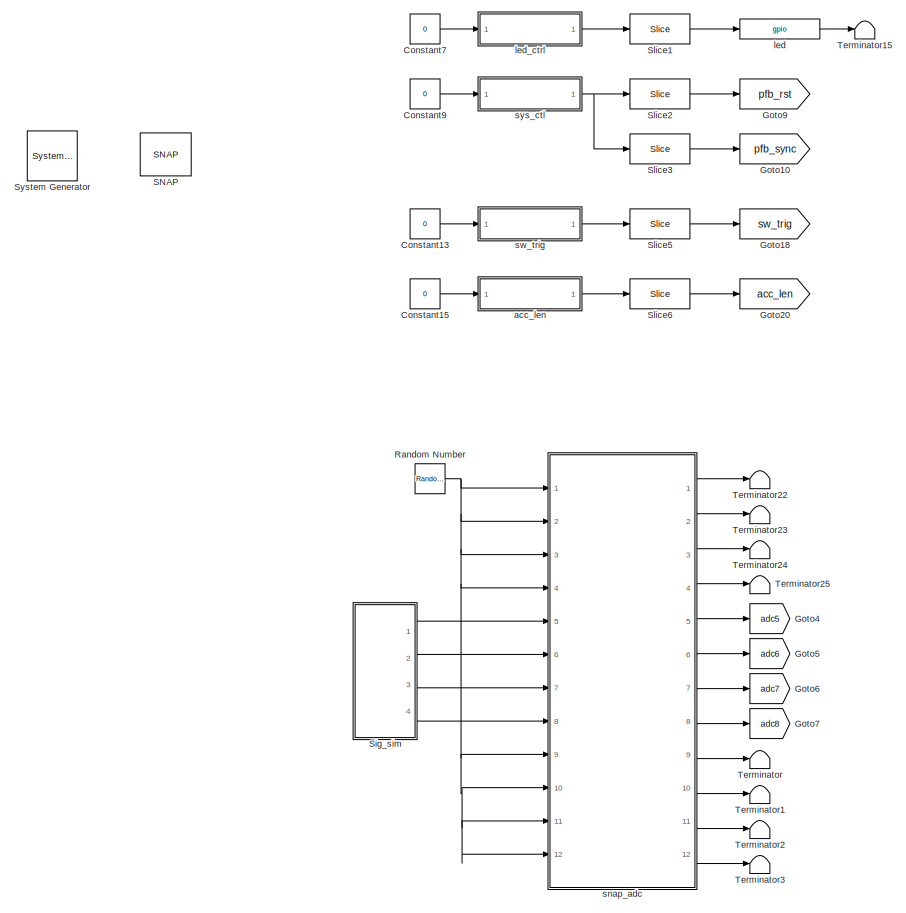
[diagram: root canvas - part 1/3, middle left region]
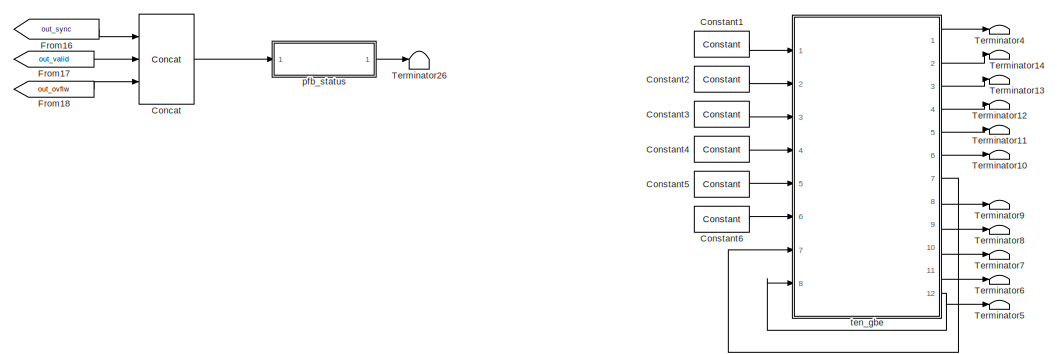
[diagram: root canvas - part 2/3, top right region]
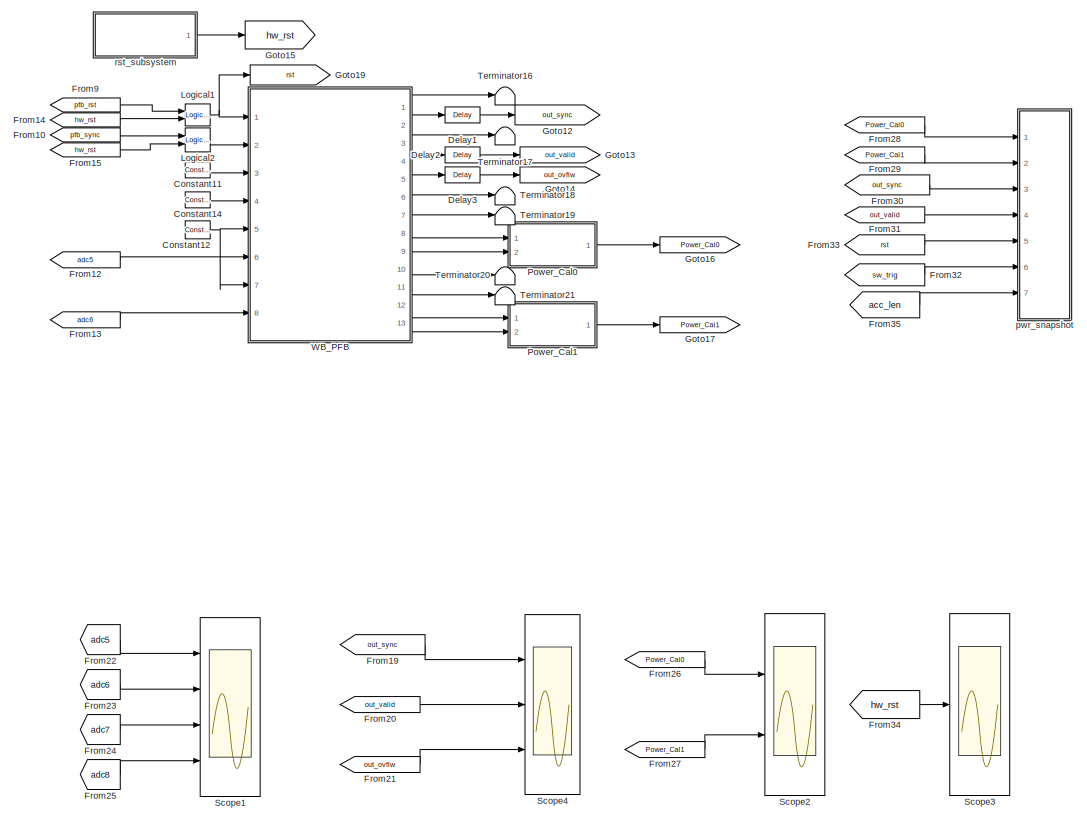
[diagram: root canvas - part 3/3, bottom right region]
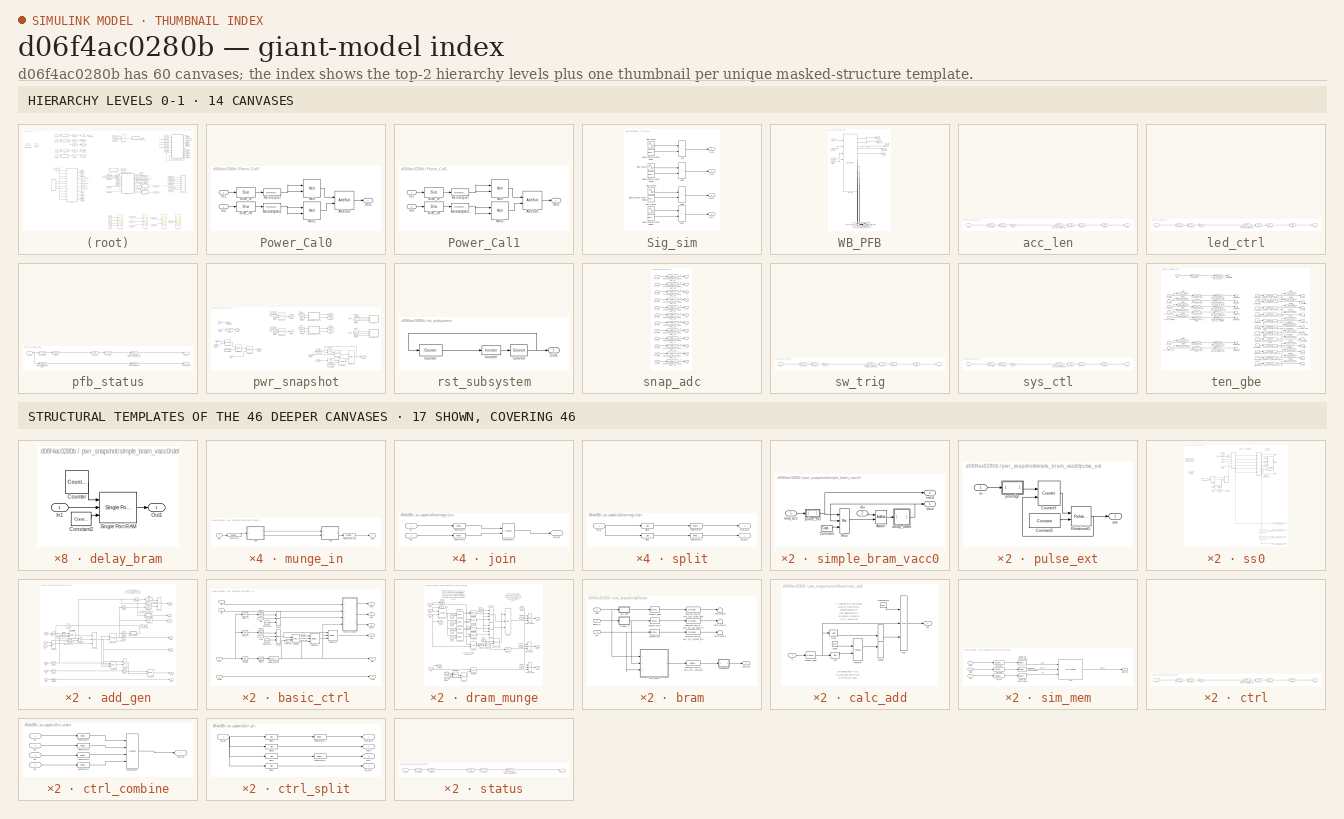
[diagram: thumbnail index - top-2 hierarchy levels (14 canvases) + 17 structural-template representatives of the remaining 46 canvases]
MODEL slx_d06f4ac0280b
KIND model
CONFIG AbsTol = auto
CONFIG EnableMultiTasking = off
CONFIG FixedStep = auto
CONFIG MaxStep = auto
CONFIG MinStep = auto
CONFIG RelTol = 1e-3
CONFIG SampleTimeConstraint = Unconstrained
CONFIG SolverName = VariableStepDiscrete
CONFIG StartTime = 0.0
CONFIG StopTime = 16384
BLOCK [Reference]  System Generator  REF=xbsIndex_r4/ System Generator
  AttributesFormatString = System\nGenerator
  Ports = []
  SourceBlock = xbsIndex_r4/ System Generator
  SourceType = Xilinx System Generator Block
  Tag = genX
  UserDataPersistent = on
BLOCK [Reference] Concat  REF=xbsIndex_r4/Concat
  Ports = [3, 1]
  SourceBlock = xbsIndex_r4/Concat
  SourceType = Xilinx Bus Concatenator Block
BLOCK [Reference] Constant1  REF=xbsIndex_r4/Constant
  Ports = [0, 1]
  SourceBlock = xbsIndex_r4/Constant
  SourceType = Xilinx Constant Block Block
BLOCK [Reference] Constant11  REF=xbsIndex_r4/Constant
  Ports = [0, 1]
  SourceBlock = xbsIndex_r4/Constant
  SourceType = Xilinx Constant Block Block
BLOCK [Reference] Constant12  REF=xbsIndex_r4/Constant
  Ports = [0, 1]
  SourceBlock = xbsIndex_r4/Constant
  SourceType = Xilinx Constant Block Block
BLOCK [Constant] Constant13
  SampleTime = -1
  Value = 0
BLOCK [Reference] Constant14  REF=xbsIndex_r4/Constant
  Ports = [0, 1]
  SourceBlock = xbsIndex_r4/Constant
  SourceType = Xilinx Constant Block Block
BLOCK [Constant] Constant15
  SampleTime = -1
  Value = 0
BLOCK [Reference] Constant2  REF=xbsIndex_r4/Constant
  Ports = [0, 1]
  SourceBlock = xbsIndex_r4/Constant
  SourceType = Xilinx Constant Block Block
BLOCK [Reference] Constant3  REF=xbsIndex_r4/Constant
  Ports = [0, 1]
  SourceBlock = xbsIndex_r4/Constant
  SourceType = Xilinx Constant Block Block
BLOCK [Reference] Constant4  REF=xbsIndex_r4/Constant
  Ports = [0, 1]
  SourceBlock = xbsIndex_r4/Constant
  SourceType = Xilinx Constant Block Block
BLOCK [Reference] Constant5  REF=xbsIndex_r4/Constant
  Ports = [0, 1]
  SourceBlock = xbsIndex_r4/Constant
  SourceType = Xilinx Constant Block Block
BLOCK [Reference] Constant6  REF=xbsIndex_r4/Constant
  Ports = [0, 1]
  SourceBlock = xbsIndex_r4/Constant
  SourceType = Xilinx Constant Block Block
BLOCK [Constant] Constant7
  SampleTime = -1
  Value = 0
BLOCK [Constant] Constant9
  SampleTime = -1
  Value = 0
BLOCK [Reference] Delay1  REF=xbsIndex_r4/Delay
  Ports = [1, 1]
  SourceBlock = xbsIndex_r4/Delay
  SourceType = Xilinx Delay Block
BLOCK [Reference] Delay2  REF=xbsIndex_r4/Delay
  Ports = [1, 1]
  SourceBlock = xbsIndex_r4/Delay
  SourceType = Xilinx Delay Block
BLOCK [Reference] Delay3  REF=xbsIndex_r4/Delay
  Ports = [1, 1]
  SourceBlock = xbsIndex_r4/Delay
  SourceType = Xilinx Delay Block
BLOCK [From] From10
  GotoTag = pfb_sync
BLOCK [From] From12
  GotoTag = adc5
BLOCK [From] From13
  GotoTag = adc6
BLOCK [From] From14
  GotoTag = hw_rst
BLOCK [From] From15
  GotoTag = hw_rst
BLOCK [From] From16
  GotoTag = out_sync
BLOCK [From] From17
  GotoTag = out_valid
BLOCK [From] From18
  GotoTag = out_ovflw
BLOCK [From] From19
  GotoTag = out_sync
BLOCK [From] From20
  GotoTag = out_valid
BLOCK [From] From21
  GotoTag = out_ovflw
BLOCK [From] From22
  GotoTag = adc5
BLOCK [From] From23
  GotoTag = adc6
BLOCK [From] From24
  GotoTag = adc7
BLOCK [From] From25
  GotoTag = adc8
BLOCK [From] From26
  GotoTag = Power_Cal0
BLOCK [From] From27
  GotoTag = Power_Cal1
BLOCK [From] From28
  GotoTag = Power_Cal0
BLOCK [From] From29
  GotoTag = Power_Cal1
BLOCK [From] From30
  GotoTag = out_sync
BLOCK [From] From31
  GotoTag = out_valid
BLOCK [From] From32
  GotoTag = sw_trig
BLOCK [From] From33
  GotoTag = rst
BLOCK [From] From34
  GotoTag = hw_rst
BLOCK [From] From35
  GotoTag = acc_len
BLOCK [From] From9
  GotoTag = pfb_rst
BLOCK [Goto] Goto10
  GotoTag = pfb_sync
BLOCK [Goto] Goto12
  GotoTag = out_sync
BLOCK [Goto] Goto13
  GotoTag = out_valid
BLOCK [Goto] Goto14
  GotoTag = out_ovflw
BLOCK [Goto] Goto15
  GotoTag = hw_rst
BLOCK [Goto] Goto16
  GotoTag = Power_Cal0
BLOCK [Goto] Goto17
  GotoTag = Power_Cal1
BLOCK [Goto] Goto18
  GotoTag = sw_trig
BLOCK [Goto] Goto19
  GotoTag = rst
BLOCK [Goto] Goto20
  GotoTag = acc_len
BLOCK [Goto] Goto4
  GotoTag = adc5
BLOCK [Goto] Goto5
  GotoTag = adc6
BLOCK [Goto] Goto6
  GotoTag = adc7
BLOCK [Goto] Goto7
  GotoTag = adc8
BLOCK [Goto] Goto9
  GotoTag = pfb_rst
BLOCK [Reference] Logical1  REF=xbsIndex_r4/Logical
  Ports = [2, 1]
  SourceBlock = xbsIndex_r4/Logical
  SourceType = Xilinx Logical Block Block
BLOCK [Reference] Logical2  REF=xbsIndex_r4/Logical
  Ports = [2, 1]
  SourceBlock = xbsIndex_r4/Logical
  SourceType = Xilinx Logical Block Block
BLOCK [SubSystem] Power_Cal0
  Ports = [2, 1]
  RequestExecContextInheritance = off
BLOCK [Reference] Power_Cal0/AddSub  REF=xbsIndex_r4/AddSub
  Ports = [2, 1]
  SourceBlock = xbsIndex_r4/AddSub
  SourceType = Xilinx Adder/Subtracter Block
BLOCK [Inport] Power_Cal0/In1
BLOCK [Inport] Power_Cal0/In2
  Port = 2
BLOCK [Reference] Power_Cal0/Mult  REF=xbsIndex_r4/Mult
  Ports = [2, 1]
  SourceBlock = xbsIndex_r4/Mult
  SourceType = Xilinx Multiplier Block
BLOCK [Reference] Power_Cal0/Mult1  REF=xbsIndex_r4/Mult
  Ports = [2, 1]
  SourceBlock = xbsIndex_r4/Mult
  SourceType = Xilinx Multiplier Block
BLOCK [Outport] Power_Cal0/Out1
BLOCK [Reference] Power_Cal0/Reinterpret  REF=xbsIndex_r4/Reinterpret
  Ports = [1, 1]
  SourceBlock = xbsIndex_r4/Reinterpret
  SourceType = Xilinx Type Reinterpreter Block
BLOCK [Reference] Power_Cal0/Reinterpret1  REF=xbsIndex_r4/Reinterpret
  Ports = [1, 1]
  SourceBlock = xbsIndex_r4/Reinterpret
  SourceType = Xilinx Type Reinterpreter Block
BLOCK [Reference] Power_Cal0/Slice_im  REF=xbsIndex_r4/Slice
  Ports = [1, 1]
  SourceBlock = xbsIndex_r4/Slice
  SourceType = Xilinx Bit Slice Extractor Block
BLOCK [Reference] Power_Cal0/Slice_re  REF=xbsIndex_r4/Slice
  Ports = [1, 1]
  SourceBlock = xbsIndex_r4/Slice
  SourceType = Xilinx Bit Slice Extractor Block
BLOCK [SubSystem] Power_Cal1
  Ports = [2, 1]
  RequestExecContextInheritance = off
BLOCK [Reference] Power_Cal1/AddSub  REF=xbsIndex_r4/AddSub
  Ports = [2, 1]
  SourceBlock = xbsIndex_r4/AddSub
  SourceType = Xilinx Adder/Subtracter Block
BLOCK [Inport] Power_Cal1/In1
BLOCK [Inport] Power_Cal1/In2
  Port = 2
BLOCK [Reference] Power_Cal1/Mult  REF=xbsIndex_r4/Mult
  Ports = [2, 1]
  SourceBlock = xbsIndex_r4/Mult
  SourceType = Xilinx Multiplier Block
BLOCK [Reference] Power_Cal1/Mult1  REF=xbsIndex_r4/Mult
  Ports = [2, 1]
  SourceBlock = xbsIndex_r4/Mult
  SourceType = Xilinx Multiplier Block
BLOCK [Outport] Power_Cal1/Out1
BLOCK [Reference] Power_Cal1/Reinterpret  REF=xbsIndex_r4/Reinterpret
  Ports = [1, 1]
  SourceBlock = xbsIndex_r4/Reinterpret
  SourceType = Xilinx Type Reinterpreter Block
BLOCK [Reference] Power_Cal1/Reinterpret1  REF=xbsIndex_r4/Reinterpret
  Ports = [1, 1]
  SourceBlock = xbsIndex_r4/Reinterpret
  SourceType = Xilinx Type Reinterpreter Block
BLOCK [Reference] Power_Cal1/Slice_im  REF=xbsIndex_r4/Slice
  Ports = [1, 1]
  SourceBlock = xbsIndex_r4/Slice
  SourceType = Xilinx Bit Slice Extractor Block
BLOCK [Reference] Power_Cal1/Slice_re  REF=xbsIndex_r4/Slice
  Ports = [1, 1]
  SourceBlock = xbsIndex_r4/Slice
  SourceType = Xilinx Bit Slice Extractor Block
BLOCK [RandomNumber] Random Number
  SampleTime = 0.1
BLOCK [Reference] SNAP  REF=xps_library/Platforms/SNAP  (lib defined in mdl_00b5cec29cd0, mdl_02ab6ecaa3d1, +5 more)
  Ports = []
  SourceBlock = xps_library/Platforms/SNAP
  SourceProductName = CASPER XPS Blockset
  SourceType = xsg core config
  Tag = xps:xsg
BLOCK [Scope] Scope1
  Floating = off
  NumInputPorts = 4
  Ports = [4]
  ScopeSpecificationString = Simulink.scopes.TimeScopeBlockCfg('CurrentConfiguration', extmgr.ConfigurationSet(extmgr.Configuration('Core','General UI',true),extmgr.Configuration('Core','Source UI',true),extmgr.Configuration('Sources','WiredSimulink',true,'DataLoggingVariableName','ScopeData1'),extmgr.Configuration('Visuals','Time Domain',true,'SerializedDisplays',{struct('MinYLimReal','-1.05736','MaxYLimReal','1.02436','YLab...<+1548ch>
BLOCK [Scope] Scope2
  Floating = off
  NumInputPorts = 2
  Ports = [2]
  ScopeSpecificationString = Simulink.scopes.TimeScopeBlockCfg('CurrentConfiguration', extmgr.ConfigurationSet(extmgr.Configuration('Core','General UI',true),extmgr.Configuration('Core','Source UI',true),extmgr.Configuration('Sources','WiredSimulink',true,'DataLoggingVariableName','ScopeData2'),extmgr.Configuration('Visuals','Time Domain',true,'SerializedDisplays',{struct('MinYLimReal','-237899954.00000','MaxYLimReal','214109...<+1634ch>
BLOCK [Scope] Scope3
  Floating = off
  NumInputPorts = 1
  Ports = [1]
  ScopeSpecificationString = Simulink.scopes.TimeScopeBlockCfg('CurrentConfiguration', extmgr.ConfigurationSet(extmgr.Configuration('Core','General UI',true),extmgr.Configuration('Core','Source UI',true),extmgr.Configuration('Sources','WiredSimulink',true,'DataLoggingVariableName','ScopeData3'),extmgr.Configuration('Visuals','Time Domain',true,'SerializedDisplays',{struct('MinYLimReal','-237687100.625','MaxYLimReal','21391839...<+1606ch>
BLOCK [Scope] Scope4
  Floating = off
  NumInputPorts = 3
  Ports = [3]
  ScopeSpecificationString = Simulink.scopes.TimeScopeBlockCfg('CurrentConfiguration', extmgr.ConfigurationSet(extmgr.Configuration('Core','General UI',true),extmgr.Configuration('Core','Source UI',true),extmgr.Configuration('Sources','WiredSimulink',true),extmgr.Configuration('Visuals','Time Domain',true,'SerializedDisplays',{struct('MinYLimReal','-0.125','MaxYLimReal','1.125','YLabelReal','','MinYLimMag','0.00000','MaxYLimM...<+1519ch>
BLOCK [SubSystem] Sig_sim
  Ports = [0, 4]
  RequestExecContextInheritance = off
BLOCK [Sum] Sig_sim/Add
  IconShape = rectangular
  Ports = [2, 1]
BLOCK [Sum] Sig_sim/Add1
  IconShape = rectangular
  Ports = [2, 1]
BLOCK [Sum] Sig_sim/Add2
  IconShape = rectangular
  Ports = [2, 1]
BLOCK [Sum] Sig_sim/Add3
  IconShape = rectangular
  Ports = [2, 1]
BLOCK [Reference] Sig_sim/Band-Limited White Noise  REF=simulink/Sources/Band-Limited
White Noise
  Ports = [0, 1]
  SourceBlock = simulink/Sources/Band-Limited\nWhite Noise
  SourceProductBaseCode = SL
  SourceType = Band-Limited White Noise.
BLOCK [Reference] Sig_sim/Band-Limited White Noise1  REF=simulink/Sources/Band-Limited
White Noise
  Ports = [0, 1]
  SourceBlock = simulink/Sources/Band-Limited\nWhite Noise
  SourceProductBaseCode = SL
  SourceType = Band-Limited White Noise.
BLOCK [Reference] Sig_sim/Band-Limited White Noise2  REF=simulink/Sources/Band-Limited
White Noise
  Ports = [0, 1]
  SourceBlock = simulink/Sources/Band-Limited\nWhite Noise
  SourceProductBaseCode = SL
  SourceType = Band-Limited White Noise.
BLOCK [Reference] Sig_sim/Band-Limited White Noise3  REF=simulink/Sources/Band-Limited
White Noise
  Ports = [0, 1]
  SourceBlock = simulink/Sources/Band-Limited\nWhite Noise
  SourceProductBaseCode = SL
  SourceType = Band-Limited White Noise.
BLOCK [Outport] Sig_sim/Out1
BLOCK [Outport] Sig_sim/Out2
  Port = 2
BLOCK [Outport] Sig_sim/Out3
  Port = 3
BLOCK [Outport] Sig_sim/Out4
  Port = 4
BLOCK [Sin] Sig_sim/Sine Wave
  Amplitude = 0.2
  Frequency = 2*3.14*(1/64)
  Ports = [0, 1]
  SampleTime = 1
BLOCK [Sin] Sig_sim/Sine Wave1
  Amplitude = 0.2
  Frequency = 2*3.14*(1/64)
  Phase = 2*3.14*(1/128)
  Ports = [0, 1]
  SampleTime = 1
BLOCK [Sin] Sig_sim/Sine Wave2
  Amplitude = 0.2
  Frequency = 2*3.14*(1/64)
  Ports = [0, 1]
  SampleTime = 1
BLOCK [Sin] Sig_sim/Sine Wave3
  Amplitude = 0.2
  Frequency = 2*3.14*(1/64)
  Phase = 2*3.14*(1/128)
  Ports = [0, 1]
  SampleTime = 1
BLOCK [Reference] Slice1  REF=xbsIndex_r4/Slice
  Ports = [1, 1]
  SourceBlock = xbsIndex_r4/Slice
  SourceType = Xilinx Bit Slice Extractor Block
BLOCK [Reference] Slice2  REF=xbsIndex_r4/Slice
  Ports = [1, 1]
  SourceBlock = xbsIndex_r4/Slice
  SourceType = Xilinx Bit Slice Extractor Block
BLOCK [Reference] Slice3  REF=xbsIndex_r4/Slice
  Ports = [1, 1]
  SourceBlock = xbsIndex_r4/Slice
  SourceType = Xilinx Bit Slice Extractor Block
BLOCK [Reference] Slice5  REF=xbsIndex_r4/Slice
  Ports = [1, 1]
  SourceBlock = xbsIndex_r4/Slice
  SourceType = Xilinx Bit Slice Extractor Block
BLOCK [Reference] Slice6  REF=xbsIndex_r4/Slice
  Ports = [1, 1]
  SourceBlock = xbsIndex_r4/Slice
  SourceType = Xilinx Bit Slice Extractor Block
BLOCK [Terminator] Terminator
BLOCK [Terminator] Terminator1
BLOCK [Terminator] Terminator10
BLOCK [Terminator] Terminator11
BLOCK [Terminator] Terminator12
BLOCK [Terminator] Terminator13
BLOCK [Terminator] Terminator14
BLOCK [Terminator] Terminator15
BLOCK [Terminator] Terminator16
BLOCK [Terminator] Terminator17
BLOCK [Terminator] Terminator18
BLOCK [Terminator] Terminator19
BLOCK [Terminator] Terminator2
BLOCK [Terminator] Terminator20
BLOCK [Terminator] Terminator21
BLOCK [Terminator] Terminator22
BLOCK [Terminator] Terminator23
BLOCK [Terminator] Terminator24
BLOCK [Terminator] Terminator25
BLOCK [Terminator] Terminator26
BLOCK [Terminator] Terminator3
BLOCK [Terminator] Terminator4
BLOCK [Terminator] Terminator5
BLOCK [Terminator] Terminator6
BLOCK [Terminator] Terminator7
BLOCK [Terminator] Terminator8
BLOCK [Terminator] Terminator9
BLOCK [SubSystem] WB_PFB
  AncestorBlock = PFB/WB_PFB
  Ports = [8, 13]
  RequestExecContextInheritance = off
BLOCK [Outport] WB_PFB/fil_im_str0_wb0
  Port = 6
BLOCK [Outport] WB_PFB/fil_im_str0_wb1
  Port = 10
BLOCK [Outport] WB_PFB/fil_re_str0_wb0
  Port = 7
BLOCK [Outport] WB_PFB/fil_re_str0_wb1
  Port = 11
BLOCK [Outport] WB_PFB/fil_sync
  VectorParamsAs1DForOutWhenUnconnected = off
BLOCK [Outport] WB_PFB/fil_valid
  Port = 3
  VectorParamsAs1DForOutWhenUnconnected = off
BLOCK [Inport] WB_PFB/in_im_str0_wb0
  Port = 5
BLOCK [Inport] WB_PFB/in_im_str0_wb1
  Port = 7
BLOCK [Inport] WB_PFB/in_re_str0_wb0
  Port = 6
BLOCK [Inport] WB_PFB/in_re_str0_wb1
  Port = 8
BLOCK [Inport] WB_PFB/in_sync
  Port = 2
BLOCK [Inport] WB_PFB/in_valid
  Port = 3
BLOCK [Outport] WB_PFB/out_im_str0_wb0
  Port = 8
BLOCK [Outport] WB_PFB/out_im_str0_wb1
  Port = 12
BLOCK [Outport] WB_PFB/out_re_str0_wb0
  Port = 9
BLOCK [Outport] WB_PFB/out_re_str0_wb1
  Port = 13
BLOCK [Outport] WB_PFB/out_sync
  Port = 2
  VectorParamsAs1DForOutWhenUnconnected = off
BLOCK [Outport] WB_PFB/out_valid
  Port = 4
  VectorParamsAs1DForOutWhenUnconnected = off
BLOCK [Outport] WB_PFB/ovflw
  Port = 5
  VectorParamsAs1DForOutWhenUnconnected = off
BLOCK [Inport] WB_PFB/rst
BLOCK [Inport] WB_PFB/shiftreg
  Port = 4
BLOCK [Reference] WB_PFB/wb_pfb  REF=xbsIndex_r4/Black Box
  Ports = [8, 13]
  SourceBlock = xbsIndex_r4/Black Box
  SourceType = Xilinx Black Box Block
BLOCK [SubSystem] acc_len
  AncestorBlock = xps_library/Memory/software_register
  AttributesFormatString = 1input:uf32.0 = 32 bits
  Ports = [1, 1]
  RequestExecContextInheritance = off
  Tag = xps:sw_reg
BLOCK [DataTypeConversion] acc_len/convert1_1
  LockScale = on
  OutDataTypeStr = fixdt('ufix32_En0')
  RndMeth = Floor
  SaturateOnIntegerOverflow = off
BLOCK [DataTypeConversion] acc_len/convert2_1
  ConvertRealWorld = Stored Integer (SI)
  LockScale = on
  OutDataTypeStr = fixdt('ufix32_En0')
  RndMeth = Floor
  SaturateOnIntegerOverflow = off
BLOCK [Gain] acc_len/gain_1
  OutDataTypeStr = fixdt('ufix32_En0')
BLOCK [Outport] acc_len/in_reg
BLOCK [Reference] acc_len/io_delay  REF=xbsIndex_r4/Delay
  Ports = [1, 1]
  SourceBlock = xbsIndex_r4/Delay
  SourceType = Xilinx Delay Block
BLOCK [Reference] acc_len/reint1  REF=xbsIndex_r4/Reinterpret
  Ports = [1, 1]
  SourceBlock = xbsIndex_r4/Reinterpret
  SourceType = Xilinx Type Reinterpreter Block
BLOCK [Inport] acc_len/sim_1
BLOCK [Reference] acc_len/slice_reg  REF=xbsIndex_r4/Slice
  Ports = [1, 1]
  SourceBlock = xbsIndex_r4/Slice
  SourceType = Xilinx Bit Slice Extractor Block
BLOCK [Reference] acc_len/snap_hdl_pfb_v2_acc_len_user_data_out  REF=xbsIndex_r4/Gateway In
  Ports = [1, 1]
  SourceBlock = xbsIndex_r4/Gateway In
  SourceType = Xilinx Gateway In Block
BLOCK [Reference] led  REF=xps_library/IO/gpio  (lib defined in mdl_00b5cec29cd0, mdl_02ab6ecaa3d1, +5 more)
  Ports = [1, 1]
  SourceBlock = xps_library/IO/gpio
  SourceProductName = CASPER XPS Blockset
  SourceType = gpio
  Tag = xps:gpio
BLOCK [SubSystem] led_ctrl
  AncestorBlock = xps_library/Memory/software_register
  AttributesFormatString = 1input:uf32.0 = 32 bits
  Ports = [1, 1]
  RequestExecContextInheritance = off
  Tag = xps:sw_reg
BLOCK [DataTypeConversion] led_ctrl/convert1_1
  LockScale = on
  OutDataTypeStr = fixdt('ufix32_En0')
  RndMeth = Floor
  SaturateOnIntegerOverflow = off
BLOCK [DataTypeConversion] led_ctrl/convert2_1
  ConvertRealWorld = Stored Integer (SI)
  LockScale = on
  OutDataTypeStr = fixdt('ufix32_En0')
  RndMeth = Floor
  SaturateOnIntegerOverflow = off
BLOCK [Gain] led_ctrl/gain_1
  OutDataTypeStr = fixdt('ufix32_En0')
BLOCK [Outport] led_ctrl/in_reg
BLOCK [Reference] led_ctrl/io_delay  REF=xbsIndex_r4/Delay
  Ports = [1, 1]
  SourceBlock = xbsIndex_r4/Delay
  SourceType = Xilinx Delay Block
BLOCK [Reference] led_ctrl/reint1  REF=xbsIndex_r4/Reinterpret
  Ports = [1, 1]
  SourceBlock = xbsIndex_r4/Reinterpret
  SourceType = Xilinx Type Reinterpreter Block
BLOCK [Inport] led_ctrl/sim_1
BLOCK [Reference] led_ctrl/slice_reg  REF=xbsIndex_r4/Slice
  Ports = [1, 1]
  SourceBlock = xbsIndex_r4/Slice
  SourceType = Xilinx Bit Slice Extractor Block
BLOCK [Reference] led_ctrl/snap_hdl_pfb_v2_led_ctrl_user_data_out  REF=xbsIndex_r4/Gateway In
  Ports = [1, 1]
  SourceBlock = xbsIndex_r4/Gateway In
  SourceType = Xilinx Gateway In Block
BLOCK [SubSystem] pfb_status
  AncestorBlock = xps_library/Memory/software_register
  AttributesFormatString = 1output
  Ports = [1, 1]
  RequestExecContextInheritance = off
  Tag = xps:sw_reg
BLOCK [Reference] pfb_status/assert_reg  REF=xbsIndex_r4/Assert
  Ports = [1, 1]
  SourceBlock = xbsIndex_r4/Assert
  SourceType = Xilinx Assert Block
BLOCK [Reference] pfb_status/cast_gw  REF=xbsIndex_r4/Convert
  Ports = [1, 1]
  SourceBlock = xbsIndex_r4/Convert
  SourceType = Xilinx Type Converter Block
BLOCK [Reference] pfb_status/io_delay  REF=xbsIndex_r4/Delay
  Ports = [1, 1]
  SourceBlock = xbsIndex_r4/Delay
  SourceType = Xilinx Delay Block
BLOCK [Inport] pfb_status/out_reg
BLOCK [Reference] pfb_status/reint1  REF=xbsIndex_r4/Reinterpret
  Ports = [1, 1]
  SourceBlock = xbsIndex_r4/Reinterpret
  SourceType = Xilinx Type Reinterpreter Block
BLOCK [Terminator] pfb_status/sim_out
BLOCK [Outport] pfb_status/sim_out_reg
  VectorParamsAs1DForOutWhenUnconnected = off
BLOCK [Reference] pfb_status/sim_out_reg_gw  REF=xbsIndex_r4/Gateway Out
  Ports = [1, 1]
  SourceBlock = xbsIndex_r4/Gateway Out
  SourceType = Xilinx Gateway Out Block
BLOCK [Reference] pfb_status/sim_out_reg_sim_delay  REF=xbsIndex_r4/Delay
  Ports = [1, 1]
  SourceBlock = xbsIndex_r4/Delay
  SourceType = Xilinx Delay Block
BLOCK [Reference] pfb_status/snap_hdl_pfb_v2_pfb_status_user_data_in  REF=xbsIndex_r4/Gateway Out
  Ports = [1, 1]
  SourceBlock = xbsIndex_r4/Gateway Out
  SourceType = Xilinx Gateway Out Block
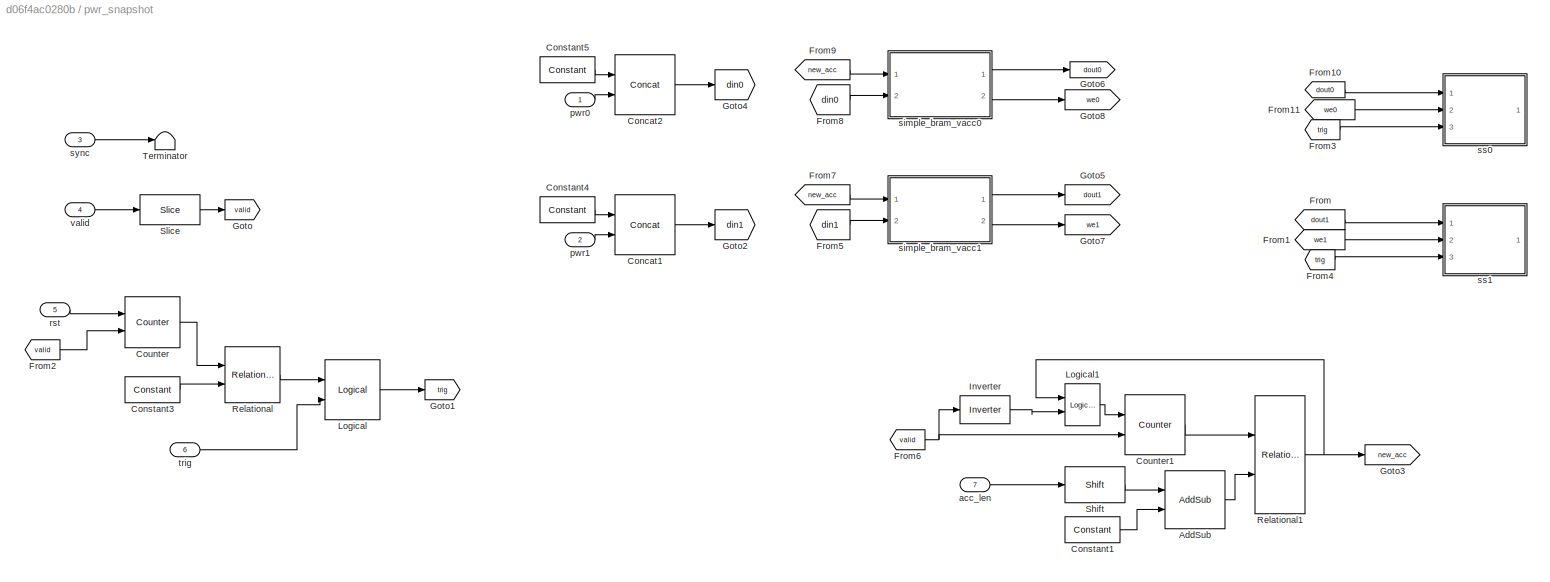
BLOCK [SubSystem] pwr_snapshot
  Ports = [7]
  RequestExecContextInheritance = off
BLOCK [Reference] pwr_snapshot/AddSub  REF=xbsIndex_r4/AddSub
  Ports = [2, 1]
  SourceBlock = xbsIndex_r4/AddSub
  SourceType = Xilinx Adder/Subtracter Block
BLOCK [Reference] pwr_snapshot/Concat1  REF=xbsIndex_r4/Concat
  Ports = [2, 1]
  SourceBlock = xbsIndex_r4/Concat
  SourceType = Xilinx Bus Concatenator Block
BLOCK [Reference] pwr_snapshot/Concat2  REF=xbsIndex_r4/Concat
  Ports = [2, 1]
  SourceBlock = xbsIndex_r4/Concat
  SourceType = Xilinx Bus Concatenator Block
BLOCK [Reference] pwr_snapshot/Constant1  REF=xbsIndex_r4/Constant
  Ports = [0, 1]
  SourceBlock = xbsIndex_r4/Constant
  SourceType = Xilinx Constant Block Block
BLOCK [Reference] pwr_snapshot/Constant3  REF=xbsIndex_r4/Constant
  Ports = [0, 1]
  SourceBlock = xbsIndex_r4/Constant
  SourceType = Xilinx Constant Block Block
BLOCK [Reference] pwr_snapshot/Constant4  REF=xbsIndex_r4/Constant
  Ports = [0, 1]
  SourceBlock = xbsIndex_r4/Constant
  SourceType = Xilinx Constant Block Block
BLOCK [Reference] pwr_snapshot/Constant5  REF=xbsIndex_r4/Constant
  Ports = [0, 1]
  SourceBlock = xbsIndex_r4/Constant
  SourceType = Xilinx Constant Block Block
BLOCK [Reference] pwr_snapshot/Counter  REF=xbsIndex_r4/Counter
  Ports = [2, 1]
  SourceBlock = xbsIndex_r4/Counter
  SourceType = Xilinx Counter Block
BLOCK [Reference] pwr_snapshot/Counter1  REF=xbsIndex_r4/Counter
  Ports = [2, 1]
  SourceBlock = xbsIndex_r4/Counter
  SourceType = Xilinx Counter Block
BLOCK [From] pwr_snapshot/From
  GotoTag = dout1
BLOCK [From] pwr_snapshot/From1
  GotoTag = we1
BLOCK [From] pwr_snapshot/From10
  GotoTag = dout0
BLOCK [From] pwr_snapshot/From11
  GotoTag = we0
BLOCK [From] pwr_snapshot/From2
  GotoTag = valid
BLOCK [From] pwr_snapshot/From3
  GotoTag = trig
BLOCK [From] pwr_snapshot/From4
  GotoTag = trig
BLOCK [From] pwr_snapshot/From5
  GotoTag = din1
BLOCK [From] pwr_snapshot/From6
  GotoTag = valid
BLOCK [From] pwr_snapshot/From7
  GotoTag = new_acc
BLOCK [From] pwr_snapshot/From8
  GotoTag = din0
BLOCK [From] pwr_snapshot/From9
  GotoTag = new_acc
BLOCK [Goto] pwr_snapshot/Goto
  GotoTag = valid
BLOCK [Goto] pwr_snapshot/Goto1
  GotoTag = trig
BLOCK [Goto] pwr_snapshot/Goto2
  GotoTag = din1
BLOCK [Goto] pwr_snapshot/Goto3
  GotoTag = new_acc
BLOCK [Goto] pwr_snapshot/Goto4
  GotoTag = din0
BLOCK [Goto] pwr_snapshot/Goto5
  GotoTag = dout1
BLOCK [Goto] pwr_snapshot/Goto6
  GotoTag = dout0
BLOCK [Goto] pwr_snapshot/Goto7
  GotoTag = we1
BLOCK [Goto] pwr_snapshot/Goto8
  GotoTag = we0
BLOCK [Reference] pwr_snapshot/Inverter  REF=xbsIndex_r4/Inverter
  Ports = [1, 1]
  SourceBlock = xbsIndex_r4/Inverter
  SourceType = Xilinx Inverter Block
BLOCK [Reference] pwr_snapshot/Logical  REF=xbsIndex_r4/Logical
  Ports = [2, 1]
  SourceBlock = xbsIndex_r4/Logical
  SourceType = Xilinx Logical Block Block
BLOCK [Reference] pwr_snapshot/Logical1  REF=xbsIndex_r4/Logical
  Ports = [2, 1]
  SourceBlock = xbsIndex_r4/Logical
  SourceType = Xilinx Logical Block Block
BLOCK [Reference] pwr_snapshot/Relational  REF=xbsIndex_r4/Relational
  Ports = [2, 1]
  SourceBlock = xbsIndex_r4/Relational
  SourceType = Xilinx Arithmetic Relational Operator Block
BLOCK [Reference] pwr_snapshot/Relational1  REF=xbsIndex_r4/Relational
  Ports = [2, 1]
  SourceBlock = xbsIndex_r4/Relational
  SourceType = Xilinx Arithmetic Relational Operator Block
BLOCK [Reference] pwr_snapshot/Shift  REF=xbsIndex_r4/Shift
  Ports = [1, 1]
  SourceBlock = xbsIndex_r4/Shift
  SourceType = Xilinx Binary Shift Operator Block
BLOCK [Reference] pwr_snapshot/Slice  REF=xbsIndex_r4/Slice
  Ports = [1, 1]
  SourceBlock = xbsIndex_r4/Slice
  SourceType = Xilinx Bit Slice Extractor Block
BLOCK [Terminator] pwr_snapshot/Terminator
BLOCK [Inport] pwr_snapshot/acc_len
  Port = 7
BLOCK [Inport] pwr_snapshot/pwr0
BLOCK [Inport] pwr_snapshot/pwr1
  Port = 2
BLOCK [Inport] pwr_snapshot/rst
  Port = 5
BLOCK [SubSystem] pwr_snapshot/simple_bram_vacc0
  AncestorBlock = casper_library_accumulators/simple_bram_vacc
  Ports = [2, 2]
  RequestExecContextInheritance = off
  UserDataPersistent = on
BLOCK [Reference] pwr_snapshot/simple_bram_vacc0/Adder  REF=xbsIndex_r4/AddSub
  Ports = [2, 1]
  SourceBlock = xbsIndex_r4/AddSub
  SourceType = Xilinx Adder/Subtracter Block
BLOCK [Reference] pwr_snapshot/simple_bram_vacc0/Constant  REF=xbsIndex_r4/Constant
  Ports = [0, 1]
  SourceBlock = xbsIndex_r4/Constant
  SourceType = Xilinx Constant Block Block
BLOCK [Reference] pwr_snapshot/simple_bram_vacc0/Mux  REF=xbsIndex_r4/Mux
  Ports = [3, 1]
  SourceBlock = xbsIndex_r4/Mux
  SourceType = Xilinx Bus Multiplexer Block
BLOCK [SubSystem] pwr_snapshot/simple_bram_vacc0/delay_bram
  Ports = [1, 1]
  RequestExecContextInheritance = off
BLOCK [Reference] pwr_snapshot/simple_bram_vacc0/delay_bram/Constant2  REF=xbsIndex_r4/Constant
  Ports = [0, 1]
  SourceBlock = xbsIndex_r4/Constant
  SourceType = Xilinx Constant Block Block
BLOCK [Reference] pwr_snapshot/simple_bram_vacc0/delay_bram/Counter  REF=xbsIndex_r4/Counter
  Ports = [0, 1]
  SourceBlock = xbsIndex_r4/Counter
  SourceType = Xilinx Counter Block
BLOCK [Inport] pwr_snapshot/simple_bram_vacc0/delay_bram/In1
BLOCK [Outport] pwr_snapshot/simple_bram_vacc0/delay_bram/Out1
  VectorParamsAs1DForOutWhenUnconnected = off
BLOCK [Reference] pwr_snapshot/simple_bram_vacc0/delay_bram/Single Port RAM  REF=xbsIndex_r4/Single Port RAM
  Ports = [3, 1]
  SourceBlock = xbsIndex_r4/Single Port RAM
  SourceType = Xilinx Single Port Random Access Memory Block
BLOCK [Inport] pwr_snapshot/simple_bram_vacc0/din
  Port = 2
BLOCK [Outport] pwr_snapshot/simple_bram_vacc0/dout
  VectorParamsAs1DForOutWhenUnconnected = off
BLOCK [Inport] pwr_snapshot/simple_bram_vacc0/new_acc
BLOCK [SubSystem] pwr_snapshot/simple_bram_vacc0/pulse_ext
  Ports = [1, 1]
  RequestExecContextInheritance = off
BLOCK [Reference] pwr_snapshot/simple_bram_vacc0/pulse_ext/Constant5  REF=xbsIndex_r4/Constant
  Ports = [0, 1]
  SourceBlock = xbsIndex_r4/Constant
  SourceType = Xilinx Constant Block Block
BLOCK [Reference] pwr_snapshot/simple_bram_vacc0/pulse_ext/Counter3  REF=xbsIndex_r4/Counter
  Ports = [2, 1]
  SourceBlock = xbsIndex_r4/Counter
  SourceType = Xilinx Counter Block
BLOCK [Reference] pwr_snapshot/simple_bram_vacc0/pulse_ext/Relational5  REF=xbsIndex_r4/Relational
  Ports = [2, 1]
  SourceBlock = xbsIndex_r4/Relational
  SourceType = Xilinx Arithmetic Relational Operator Block
BLOCK [Inport] pwr_snapshot/simple_bram_vacc0/pulse_ext/in
BLOCK [Outport] pwr_snapshot/simple_bram_vacc0/pulse_ext/out
  VectorParamsAs1DForOutWhenUnconnected = off
BLOCK [SubSystem] pwr_snapshot/simple_bram_vacc0/pulse_ext/posedge
  Ports = [1, 1]
  RequestExecContextInheritance = off
  Tag = Rising Edge Detector
BLOCK [Reference] pwr_snapshot/simple_bram_vacc0/pulse_ext/posedge/Delay  REF=xbsIndex_r4/Delay
  Ports = [1, 1]
  SourceBlock = xbsIndex_r4/Delay
  SourceType = Xilinx Delay Block
BLOCK [Inport] pwr_snapshot/simple_bram_vacc0/pulse_ext/posedge/In
BLOCK [Reference] pwr_snapshot/simple_bram_vacc0/pulse_ext/posedge/Inverter  REF=xbsIndex_r4/Inverter
  Ports = [1, 1]
  SourceBlock = xbsIndex_r4/Inverter
  SourceType = Xilinx Inverter Block
BLOCK [Reference] pwr_snapshot/simple_bram_vacc0/pulse_ext/posedge/Logical  REF=xbsIndex_r4/Logical
  Ports = [2, 1]
  SourceBlock = xbsIndex_r4/Logical
  SourceType = Xilinx Logical Block Block
BLOCK [Outport] pwr_snapshot/simple_bram_vacc0/pulse_ext/posedge/Out
  VectorParamsAs1DForOutWhenUnconnected = off
BLOCK [Outport] pwr_snapshot/simple_bram_vacc0/valid
  Port = 2
  VectorParamsAs1DForOutWhenUnconnected = off
BLOCK [SubSystem] pwr_snapshot/simple_bram_vacc1
  AncestorBlock = casper_library_accumulators/simple_bram_vacc
  Ports = [2, 2]
  RequestExecContextInheritance = off
  UserDataPersistent = on
BLOCK [Reference] pwr_snapshot/simple_bram_vacc1/Adder  REF=xbsIndex_r4/AddSub
  Ports = [2, 1]
  SourceBlock = xbsIndex_r4/AddSub
  SourceType = Xilinx Adder/Subtracter Block
BLOCK [Reference] pwr_snapshot/simple_bram_vacc1/Constant  REF=xbsIndex_r4/Constant
  Ports = [0, 1]
  SourceBlock = xbsIndex_r4/Constant
  SourceType = Xilinx Constant Block Block
BLOCK [Reference] pwr_snapshot/simple_bram_vacc1/Mux  REF=xbsIndex_r4/Mux
  Ports = [3, 1]
  SourceBlock = xbsIndex_r4/Mux
  SourceType = Xilinx Bus Multiplexer Block
BLOCK [SubSystem] pwr_snapshot/simple_bram_vacc1/delay_bram
  Ports = [1, 1]
  RequestExecContextInheritance = off
BLOCK [Reference] pwr_snapshot/simple_bram_vacc1/delay_bram/Constant2  REF=xbsIndex_r4/Constant
  Ports = [0, 1]
  SourceBlock = xbsIndex_r4/Constant
  SourceType = Xilinx Constant Block Block
BLOCK [Reference] pwr_snapshot/simple_bram_vacc1/delay_bram/Counter  REF=xbsIndex_r4/Counter
  Ports = [0, 1]
  SourceBlock = xbsIndex_r4/Counter
  SourceType = Xilinx Counter Block
BLOCK [Inport] pwr_snapshot/simple_bram_vacc1/delay_bram/In1
BLOCK [Outport] pwr_snapshot/simple_bram_vacc1/delay_bram/Out1
  VectorParamsAs1DForOutWhenUnconnected = off
BLOCK [Reference] pwr_snapshot/simple_bram_vacc1/delay_bram/Single Port RAM  REF=xbsIndex_r4/Single Port RAM
  Ports = [3, 1]
  SourceBlock = xbsIndex_r4/Single Port RAM
  SourceType = Xilinx Single Port Random Access Memory Block
BLOCK [Inport] pwr_snapshot/simple_bram_vacc1/din
  Port = 2
BLOCK [Outport] pwr_snapshot/simple_bram_vacc1/dout
  VectorParamsAs1DForOutWhenUnconnected = off
BLOCK [Inport] pwr_snapshot/simple_bram_vacc1/new_acc
BLOCK [SubSystem] pwr_snapshot/simple_bram_vacc1/pulse_ext
  Ports = [1, 1]
  RequestExecContextInheritance = off
BLOCK [Reference] pwr_snapshot/simple_bram_vacc1/pulse_ext/Constant5  REF=xbsIndex_r4/Constant
  Ports = [0, 1]
  SourceBlock = xbsIndex_r4/Constant
  SourceType = Xilinx Constant Block Block
BLOCK [Reference] pwr_snapshot/simple_bram_vacc1/pulse_ext/Counter3  REF=xbsIndex_r4/Counter
  Ports = [2, 1]
  SourceBlock = xbsIndex_r4/Counter
  SourceType = Xilinx Counter Block
BLOCK [Reference] pwr_snapshot/simple_bram_vacc1/pulse_ext/Relational5  REF=xbsIndex_r4/Relational
  Ports = [2, 1]
  SourceBlock = xbsIndex_r4/Relational
  SourceType = Xilinx Arithmetic Relational Operator Block
BLOCK [Inport] pwr_snapshot/simple_bram_vacc1/pulse_ext/in
BLOCK [Outport] pwr_snapshot/simple_bram_vacc1/pulse_ext/out
  VectorParamsAs1DForOutWhenUnconnected = off
BLOCK [SubSystem] pwr_snapshot/simple_bram_vacc1/pulse_ext/posedge
  Ports = [1, 1]
  RequestExecContextInheritance = off
  Tag = Rising Edge Detector
BLOCK [Reference] pwr_snapshot/simple_bram_vacc1/pulse_ext/posedge/Delay  REF=xbsIndex_r4/Delay
  Ports = [1, 1]
  SourceBlock = xbsIndex_r4/Delay
  SourceType = Xilinx Delay Block
BLOCK [Inport] pwr_snapshot/simple_bram_vacc1/pulse_ext/posedge/In
BLOCK [Reference] pwr_snapshot/simple_bram_vacc1/pulse_ext/posedge/Inverter  REF=xbsIndex_r4/Inverter
  Ports = [1, 1]
  SourceBlock = xbsIndex_r4/Inverter
  SourceType = Xilinx Inverter Block
BLOCK [Reference] pwr_snapshot/simple_bram_vacc1/pulse_ext/posedge/Logical  REF=xbsIndex_r4/Logical
  Ports = [2, 1]
  SourceBlock = xbsIndex_r4/Logical
  SourceType = Xilinx Logical Block Block
BLOCK [Outport] pwr_snapshot/simple_bram_vacc1/pulse_ext/posedge/Out
  VectorParamsAs1DForOutWhenUnconnected = off
BLOCK [Outport] pwr_snapshot/simple_bram_vacc1/valid
  Port = 2
  VectorParamsAs1DForOutWhenUnconnected = off
BLOCK [SubSystem] pwr_snapshot/ss0
  AncestorBlock = casper_library_scopes/snapshot
  AttributesFormatString = 64 wide, 512 deep\ndebugID: 54870830
  Ports = [3, 1]
  RequestExecContextInheritance = off
  Tag = casper:snapshot
  UserDataPersistent = on
BLOCK [Reference] pwr_snapshot/ss0/add_del  REF=xbsIndex_r4/Delay
  Ports = [1, 1]
  SourceBlock = xbsIndex_r4/Delay
  SourceType = Xilinx Delay Block
BLOCK [SubSystem] pwr_snapshot/ss0/add_gen
  AncestorBlock = casper_library_scopes/snapshot/add_gen
  Ports = [6, 7]
  RequestExecContextInheritance = off
BLOCK [Reference] pwr_snapshot/ss0/add_gen/Concat  REF=xbsIndex_r4/Concat
  Ports = [3, 1]
  SourceBlock = xbsIndex_r4/Concat
  SourceType = Xilinx Bus Concatenator Block
BLOCK [Reference] pwr_snapshot/ss0/add_gen/Convert  REF=xbsIndex_r4/Convert
  Ports = [1, 1]
  SourceBlock = xbsIndex_r4/Convert
  SourceType = Xilinx Type Converter Block
BLOCK [Reference] pwr_snapshot/ss0/add_gen/Delay  REF=xbsIndex_r4/Delay
  Ports = [1, 1]
  SourceBlock = xbsIndex_r4/Delay
  SourceType = Xilinx Delay Block
BLOCK [Reference] pwr_snapshot/ss0/add_gen/Delay1  REF=xbsIndex_r4/Delay
  Ports = [1, 1]
  SourceBlock = xbsIndex_r4/Delay
  SourceType = Xilinx Delay Block
BLOCK [Reference] pwr_snapshot/ss0/add_gen/Delay2  REF=xbsIndex_r4/Delay
  Ports = [1, 1]
  SourceBlock = xbsIndex_r4/Delay
  SourceType = Xilinx Delay Block
BLOCK [Reference] pwr_snapshot/ss0/add_gen/Delay3  REF=xbsIndex_r4/Delay
  Ports = [1, 1]
  SourceBlock = xbsIndex_r4/Delay
  SourceType = Xilinx Delay Block
BLOCK [Reference] pwr_snapshot/ss0/add_gen/Delay4  REF=xbsIndex_r4/Delay
  Ports = [1, 1]
  SourceBlock = xbsIndex_r4/Delay
  SourceType = Xilinx Delay Block
BLOCK [Reference] pwr_snapshot/ss0/add_gen/Delay5  REF=xbsIndex_r4/Delay
  Ports = [1, 1]
  SourceBlock = xbsIndex_r4/Delay
  SourceType = Xilinx Delay Block
BLOCK [Reference] pwr_snapshot/ss0/add_gen/Delay6  REF=xbsIndex_r4/Delay
  Ports = [1, 1]
  SourceBlock = xbsIndex_r4/Delay
  SourceType = Xilinx Delay Block
BLOCK [Reference] pwr_snapshot/ss0/add_gen/Delay7  REF=xbsIndex_r4/Delay
  Ports = [1, 1]
  SourceBlock = xbsIndex_r4/Delay
  SourceType = Xilinx Delay Block
BLOCK [Reference] pwr_snapshot/ss0/add_gen/Inverter  REF=xbsIndex_r4/Inverter
  Ports = [1, 1]
  SourceBlock = xbsIndex_r4/Inverter
  SourceType = Xilinx Inverter Block
BLOCK [Reference] pwr_snapshot/ss0/add_gen/Inverter1  REF=xbsIndex_r4/Inverter
  Ports = [1, 1]
  SourceBlock = xbsIndex_r4/Inverter
  SourceType = Xilinx Inverter Block
BLOCK [Reference] pwr_snapshot/ss0/add_gen/Logical1  REF=xbsIndex_r4/Logical
  Ports = [2, 1]
  SourceBlock = xbsIndex_r4/Logical
  SourceType = Xilinx Logical Block Block
BLOCK [Reference] pwr_snapshot/ss0/add_gen/Logical2  REF=xbsIndex_r4/Logical
  Ports = [2, 1]
  SourceBlock = xbsIndex_r4/Logical
  SourceType = Xilinx Logical Block Block
BLOCK [Reference] pwr_snapshot/ss0/add_gen/Logical4  REF=xbsIndex_r4/Logical
  Ports = [2, 1]
  SourceBlock = xbsIndex_r4/Logical
  SourceType = Xilinx Logical Block Block
BLOCK [Reference] pwr_snapshot/ss0/add_gen/Logical6  REF=xbsIndex_r4/Logical
  Ports = [3, 1]
  SourceBlock = xbsIndex_r4/Logical
  SourceType = Xilinx Logical Block Block
BLOCK [Reference] pwr_snapshot/ss0/add_gen/Register3  REF=xbsIndex_r4/Register
  Ports = [3, 1]
  SourceBlock = xbsIndex_r4/Register
  SourceType = Xilinx Register Block
BLOCK [Reference] pwr_snapshot/ss0/add_gen/Register4  REF=xbsIndex_r4/Register
  Ports = [2, 1]
  SourceBlock = xbsIndex_r4/Register
  SourceType = Xilinx Register Block
BLOCK [Reference] pwr_snapshot/ss0/add_gen/Register5  REF=xbsIndex_r4/Register
  Ports = [3, 1]
  SourceBlock = xbsIndex_r4/Register
  SourceType = Xilinx Register Block
BLOCK [Reference] pwr_snapshot/ss0/add_gen/Shift  REF=xbsIndex_r4/Shift
  Ports = [1, 1]
  SourceBlock = xbsIndex_r4/Shift
  SourceType = Xilinx Binary Shift Operator Block
BLOCK [Outport] pwr_snapshot/ss0/add_gen/add
  Port = 2
  VectorParamsAs1DForOutWhenUnconnected = off
BLOCK [Reference] pwr_snapshot/ss0/add_gen/add_gen  REF=xbsIndex_r4/Counter
  Ports = [2, 1]
  SourceBlock = xbsIndex_r4/Counter
  SourceType = Xilinx Counter Block
BLOCK [Inport] pwr_snapshot/ss0/add_gen/cont
  Port = 5
BLOCK [Inport] pwr_snapshot/ss0/add_gen/din
  Port = 2
BLOCK [Outport] pwr_snapshot/ss0/add_gen/done
  Port = 7
  VectorParamsAs1DForOutWhenUnconnected = off
BLOCK [Outport] pwr_snapshot/ss0/add_gen/dout
  Port = 3
  VectorParamsAs1DForOutWhenUnconnected = off
BLOCK [SubSystem] pwr_snapshot/ss0/add_gen/edge_detect
  AncestorBlock = casper_library_misc/edge_detect
  AttributesFormatString = both edges\nactive high
  Ports = [1, 1]
  RequestExecContextInheritance = off
  UserDataPersistent = on
BLOCK [Reference] pwr_snapshot/ss0/add_gen/edge_detect/Delay  REF=xbsIndex_r4/Delay
  Ports = [1, 1]
  SourceBlock = xbsIndex_r4/Delay
  SourceType = Xilinx Delay Block
BLOCK [Reference] pwr_snapshot/ss0/add_gen/edge_detect/Inverter  REF=xbsIndex_r4/Inverter
  Ports = [1, 1]
  SourceBlock = xbsIndex_r4/Inverter
  SourceType = Xilinx Inverter Block
BLOCK [Reference] pwr_snapshot/ss0/add_gen/edge_detect/edge_op  REF=xbsIndex_r4/Logical
  Ports = [2, 1]
  SourceBlock = xbsIndex_r4/Logical
  SourceType = Xilinx Logical Block Block
BLOCK [Inport] pwr_snapshot/ss0/add_gen/edge_detect/in
BLOCK [Outport] pwr_snapshot/ss0/add_gen/edge_detect/out
  VectorParamsAs1DForOutWhenUnconnected = off
BLOCK [SubSystem] pwr_snapshot/ss0/add_gen/edge_detect1
  AncestorBlock = casper_library_scopes/snapshot/add_gen/edge_detect
  AttributesFormatString = both edges\nactive high
  Ports = [1, 1]
  RequestExecContextInheritance = off
  UserDataPersistent = on
BLOCK [Reference] pwr_snapshot/ss0/add_gen/edge_detect1/Delay  REF=xbsIndex_r4/Delay
  Ports = [1, 1]
  SourceBlock = xbsIndex_r4/Delay
  SourceType = Xilinx Delay Block
BLOCK [Reference] pwr_snapshot/ss0/add_gen/edge_detect1/Inverter  REF=xbsIndex_r4/Inverter
  Ports = [1, 1]
  SourceBlock = xbsIndex_r4/Inverter
  SourceType = Xilinx Inverter Block
BLOCK [Reference] pwr_snapshot/ss0/add_gen/edge_detect1/edge_op  REF=xbsIndex_r4/Logical
  Ports = [2, 1]
  SourceBlock = xbsIndex_r4/Logical
  SourceType = Xilinx Logical Block Block
BLOCK [Inport] pwr_snapshot/ss0/add_gen/edge_detect1/in
BLOCK [Outport] pwr_snapshot/ss0/add_gen/edge_detect1/out
  VectorParamsAs1DForOutWhenUnconnected = off
BLOCK [Outport] pwr_snapshot/ss0/add_gen/en_cnt
  Port = 6
  VectorParamsAs1DForOutWhenUnconnected = off
BLOCK [Inport] pwr_snapshot/ss0/add_gen/go
  Port = 4
BLOCK [Inport] pwr_snapshot/ss0/add_gen/init
  Port = 6
BLOCK [Reference] pwr_snapshot/ss0/add_gen/slice1  REF=xbsIndex_r4/Slice
  Ports = [1, 1]
  SourceBlock = xbsIndex_r4/Slice
  SourceType = Xilinx Bit Slice Extractor Block
BLOCK [Reference] pwr_snapshot/ss0/add_gen/slice2  REF=xbsIndex_r4/Slice
  Ports = [1, 1]
  SourceBlock = xbsIndex_r4/Slice
  SourceType = Xilinx Bit Slice Extractor Block
BLOCK [Reference] pwr_snapshot/ss0/add_gen/slice3  REF=xbsIndex_r4/Slice
  Ports = [1, 1]
  SourceBlock = xbsIndex_r4/Slice
  SourceType = Xilinx Bit Slice Extractor Block
BLOCK [Outport] pwr_snapshot/ss0/add_gen/status
  Port = 5
  VectorParamsAs1DForOutWhenUnconnected = off
BLOCK [Inport] pwr_snapshot/ss0/add_gen/vin
BLOCK [Outport] pwr_snapshot/ss0/add_gen/vout
  VectorParamsAs1DForOutWhenUnconnected = off
BLOCK [Inport] pwr_snapshot/ss0/add_gen/we
  Port = 3
BLOCK [Outport] pwr_snapshot/ss0/add_gen/we_o
  Port = 4
  VectorParamsAs1DForOutWhenUnconnected = off
BLOCK [Reference] pwr_snapshot/ss0/arm  REF=xbsIndex_r4/Constant
  Ports = [0, 1]
  SourceBlock = xbsIndex_r4/Constant
  SourceType = Xilinx Constant Block Block
BLOCK [Reference] pwr_snapshot/ss0/arm_or  REF=xbsIndex_r4/Logical
  Ports = [2, 1]
  SourceBlock = xbsIndex_r4/Logical
  SourceType = Xilinx Logical Block Block
BLOCK [Outport] pwr_snapshot/ss0/arm_out
  VectorParamsAs1DForOutWhenUnconnected = off
BLOCK [SubSystem] pwr_snapshot/ss0/basic_ctrl
  AncestorBlock = casper_library_scopes/snapshot/basic_ctrl
  Ports = [6, 6]
  RequestExecContextInheritance = off
BLOCK [Reference] pwr_snapshot/ss0/basic_ctrl/Constant  REF=xbsIndex_r4/Constant
  Ports = [0, 1]
  SourceBlock = xbsIndex_r4/Constant
  SourceType = Xilinx Constant Block Block
BLOCK [Reference] pwr_snapshot/ss0/basic_ctrl/Constant1  REF=xbsIndex_r4/Constant
  Ports = [0, 1]
  SourceBlock = xbsIndex_r4/Constant
  SourceType = Xilinx Constant Block Block
BLOCK [Reference] pwr_snapshot/ss0/basic_ctrl/Constant2  REF=xbsIndex_r4/Constant
  Ports = [0, 1]
  SourceBlock = xbsIndex_r4/Constant
  SourceType = Xilinx Constant Block Block
BLOCK [Reference] pwr_snapshot/ss0/basic_ctrl/Delay1  REF=xbsIndex_r4/Delay
  Ports = [1, 1]
  SourceBlock = xbsIndex_r4/Delay
  SourceType = Xilinx Delay Block
BLOCK [Reference] pwr_snapshot/ss0/basic_ctrl/Delay2  REF=xbsIndex_r4/Delay
  Ports = [1, 1]
  SourceBlock = xbsIndex_r4/Delay
  SourceType = Xilinx Delay Block
BLOCK [Reference] pwr_snapshot/ss0/basic_ctrl/Delay3  REF=xbsIndex_r4/Delay
  Ports = [1, 1]
  SourceBlock = xbsIndex_r4/Delay
  SourceType = Xilinx Delay Block
BLOCK [Reference] pwr_snapshot/ss0/basic_ctrl/Inverter  REF=xbsIndex_r4/Inverter
  Ports = [1, 1]
  SourceBlock = xbsIndex_r4/Inverter
  SourceType = Xilinx Inverter Block
BLOCK [Reference] pwr_snapshot/ss0/basic_ctrl/Logical  REF=xbsIndex_r4/Logical
  Ports = [2, 1]
  SourceBlock = xbsIndex_r4/Logical
  SourceType = Xilinx Logical Block Block
BLOCK [Reference] pwr_snapshot/ss0/basic_ctrl/Mux1  REF=xbsIndex_r4/Mux
  Ports = [3, 1]
  SourceBlock = xbsIndex_r4/Mux
  SourceType = Xilinx Bus Multiplexer Block
BLOCK [Reference] pwr_snapshot/ss0/basic_ctrl/Mux2  REF=xbsIndex_r4/Mux
  Ports = [3, 1]
  SourceBlock = xbsIndex_r4/Mux
  SourceType = Xilinx Bus Multiplexer Block
BLOCK [Reference] pwr_snapshot/ss0/basic_ctrl/Register1  REF=xbsIndex_r4/Register
  Ports = [3, 1]
  SourceBlock = xbsIndex_r4/Register
  SourceType = Xilinx Register Block
BLOCK [Reference] pwr_snapshot/ss0/basic_ctrl/Register6  REF=xbsIndex_r4/Register
  Ports = [3, 1]
  SourceBlock = xbsIndex_r4/Register
  SourceType = Xilinx Register Block
BLOCK [Inport] pwr_snapshot/ss0/basic_ctrl/ctrl
  Port = 5
BLOCK [Inport] pwr_snapshot/ss0/basic_ctrl/din
  Port = 2
BLOCK [Outport] pwr_snapshot/ss0/basic_ctrl/dout
  Port = 2
  VectorParamsAs1DForOutWhenUnconnected = off
BLOCK [SubSystem] pwr_snapshot/ss0/basic_ctrl/dram_munge
  Ports = [4, 3]
  RequestExecContextInheritance = off
BLOCK [Reference] pwr_snapshot/ss0/basic_ctrl/dram_munge/Concat  REF=xbsIndex_r4/Concat
  Ports = [4, 1]
  SourceBlock = xbsIndex_r4/Concat
  SourceType = Xilinx Bus Concatenator Block
BLOCK [Reference] pwr_snapshot/ss0/basic_ctrl/dram_munge/Concat1  REF=xbsIndex_r4/Concat
  Ports = [4, 1]
  SourceBlock = xbsIndex_r4/Concat
  SourceType = Xilinx Bus Concatenator Block
BLOCK [Reference] pwr_snapshot/ss0/basic_ctrl/dram_munge/Constant  REF=xbsIndex_r4/Constant
  Ports = [0, 1]
  SourceBlock = xbsIndex_r4/Constant
  SourceType = Xilinx Constant Block Block
BLOCK [Reference] pwr_snapshot/ss0/basic_ctrl/dram_munge/Delay  REF=xbsIndex_r4/Delay
  Ports = [1, 1]
  SourceBlock = xbsIndex_r4/Delay
  SourceType = Xilinx Delay Block
BLOCK [Reference] pwr_snapshot/ss0/basic_ctrl/dram_munge/Delay1  REF=xbsIndex_r4/Delay
  Ports = [1, 1]
  SourceBlock = xbsIndex_r4/Delay
  SourceType = Xilinx Delay Block
BLOCK [From] pwr_snapshot/ss0/basic_ctrl/dram_munge/From
  CloseFcn = tagdialog Close
  GotoTag = init
BLOCK [From] pwr_snapshot/ss0/basic_ctrl/dram_munge/From1
  CloseFcn = tagdialog Close
  GotoTag = we
BLOCK [From] pwr_snapshot/ss0/basic_ctrl/dram_munge/From2
  CloseFcn = tagdialog Close
  GotoTag = din
BLOCK [From] pwr_snapshot/ss0/basic_ctrl/dram_munge/From3
  CloseFcn = tagdialog Close
  GotoTag = init
BLOCK [From] pwr_snapshot/ss0/basic_ctrl/dram_munge/From4
  CloseFcn = tagdialog Close
  GotoTag = we
BLOCK [From] pwr_snapshot/ss0/basic_ctrl/dram_munge/From5
  CloseFcn = tagdialog Close
  GotoTag = vin
BLOCK [Goto] pwr_snapshot/ss0/basic_ctrl/dram_munge/Goto
  GotoTag = init
BLOCK [Goto] pwr_snapshot/ss0/basic_ctrl/dram_munge/Goto1
  GotoTag = we
BLOCK [Goto] pwr_snapshot/ss0/basic_ctrl/dram_munge/Goto2
  GotoTag = din
BLOCK [Goto] pwr_snapshot/ss0/basic_ctrl/dram_munge/Goto3
  GotoTag = vin
BLOCK [Reference] pwr_snapshot/ss0/basic_ctrl/dram_munge/Logical  REF=xbsIndex_r4/Logical
  Ports = [2, 1]
  SourceBlock = xbsIndex_r4/Logical
  SourceType = Xilinx Logical Block Block
BLOCK [Reference] pwr_snapshot/ss0/basic_ctrl/dram_munge/Logical1  REF=xbsIndex_r4/Logical
  Ports = [2, 1]
  SourceBlock = xbsIndex_r4/Logical
  SourceType = Xilinx Logical Block Block
BLOCK [Reference] pwr_snapshot/ss0/basic_ctrl/dram_munge/Logical2  REF=xbsIndex_r4/Logical
  Ports = [2, 1]
  SourceBlock = xbsIndex_r4/Logical
  SourceType = Xilinx Logical Block Block
BLOCK [Reference] pwr_snapshot/ss0/basic_ctrl/dram_munge/Mux1  REF=xbsIndex_r4/Mux
  Ports = [3, 1]
  SourceBlock = xbsIndex_r4/Mux
  SourceType = Xilinx Bus Multiplexer Block
BLOCK [Reference] pwr_snapshot/ss0/basic_ctrl/dram_munge/Register  REF=xbsIndex_r4/Register
  Ports = [2, 1]
  SourceBlock = xbsIndex_r4/Register
  SourceType = Xilinx Register Block
BLOCK [Reference] pwr_snapshot/ss0/basic_ctrl/dram_munge/Register1  REF=xbsIndex_r4/Register
  Ports = [2, 1]
  SourceBlock = xbsIndex_r4/Register
  SourceType = Xilinx Register Block
BLOCK [Reference] pwr_snapshot/ss0/basic_ctrl/dram_munge/Register2  REF=xbsIndex_r4/Register
  Ports = [2, 1]
  SourceBlock = xbsIndex_r4/Register
  SourceType = Xilinx Register Block
BLOCK [Reference] pwr_snapshot/ss0/basic_ctrl/dram_munge/Register3  REF=xbsIndex_r4/Register
  Ports = [2, 1]
  SourceBlock = xbsIndex_r4/Register
  SourceType = Xilinx Register Block
BLOCK [Reference] pwr_snapshot/ss0/basic_ctrl/dram_munge/Register4  REF=xbsIndex_r4/Register
  Ports = [3, 1]
  SourceBlock = xbsIndex_r4/Register
  SourceType = Xilinx Register Block
BLOCK [Reference] pwr_snapshot/ss0/basic_ctrl/dram_munge/Register5  REF=xbsIndex_r4/Register
  Ports = [2, 1]
  SourceBlock = xbsIndex_r4/Register
  SourceType = Xilinx Register Block
BLOCK [Reference] pwr_snapshot/ss0/basic_ctrl/dram_munge/Relational  REF=xbsIndex_r4/Relational
  Ports = [2, 1]
  SourceBlock = xbsIndex_r4/Relational
  SourceType = Xilinx Arithmetic Relational Operator Block
BLOCK [Reference] pwr_snapshot/ss0/basic_ctrl/dram_munge/Relational1  REF=xbsIndex_r4/Relational
  Ports = [2, 1]
  SourceBlock = xbsIndex_r4/Relational
  SourceType = Xilinx Arithmetic Relational Operator Block
BLOCK [Reference] pwr_snapshot/ss0/basic_ctrl/dram_munge/Relational2  REF=xbsIndex_r4/Relational
  Ports = [2, 1]
  SourceBlock = xbsIndex_r4/Relational
  SourceType = Xilinx Arithmetic Relational Operator Block
BLOCK [Reference] pwr_snapshot/ss0/basic_ctrl/dram_munge/Relational3  REF=xbsIndex_r4/Relational
  Ports = [2, 1]
  SourceBlock = xbsIndex_r4/Relational
  SourceType = Xilinx Arithmetic Relational Operator Block
BLOCK [Reference] pwr_snapshot/ss0/basic_ctrl/dram_munge/con0  REF=xbsIndex_r4/Constant
  Ports = [0, 1]
  SourceBlock = xbsIndex_r4/Constant
  SourceType = Xilinx Constant Block Block
BLOCK [Reference] pwr_snapshot/ss0/basic_ctrl/dram_munge/con1  REF=xbsIndex_r4/Constant
  Ports = [0, 1]
  SourceBlock = xbsIndex_r4/Constant
  SourceType = Xilinx Constant Block Block
BLOCK [Reference] pwr_snapshot/ss0/basic_ctrl/dram_munge/con2  REF=xbsIndex_r4/Constant
  Ports = [0, 1]
  SourceBlock = xbsIndex_r4/Constant
  SourceType = Xilinx Constant Block Block
BLOCK [Reference] pwr_snapshot/ss0/basic_ctrl/dram_munge/con3  REF=xbsIndex_r4/Constant
  Ports = [0, 1]
  SourceBlock = xbsIndex_r4/Constant
  SourceType = Xilinx Constant Block Block
BLOCK [Reference] pwr_snapshot/ss0/basic_ctrl/dram_munge/data_choice  REF=xbsIndex_r4/Mux
  Ports = [3, 1]
  SourceBlock = xbsIndex_r4/Mux
  SourceType = Xilinx Bus Multiplexer Block
BLOCK [Inport] pwr_snapshot/ss0/basic_ctrl/dram_munge/din
  Port = 2
BLOCK [Outport] pwr_snapshot/ss0/basic_ctrl/dram_munge/dout
  Port = 2
  VectorParamsAs1DForOutWhenUnconnected = off
BLOCK [Reference] pwr_snapshot/ss0/basic_ctrl/dram_munge/dout_count  REF=xbsIndex_r4/Counter
  Ports = [2, 1]
  SourceBlock = xbsIndex_r4/Counter
  SourceType = Xilinx Counter Block
BLOCK [Reference] pwr_snapshot/ss0/basic_ctrl/dram_munge/dram  REF=xbsIndex_r4/Constant
  Ports = [0, 1]
  SourceBlock = xbsIndex_r4/Constant
  SourceType = Xilinx Constant Block Block
BLOCK [Inport] pwr_snapshot/ss0/basic_ctrl/dram_munge/init
  Port = 4
BLOCK [Reference] pwr_snapshot/ss0/basic_ctrl/dram_munge/input_count  REF=xbsIndex_r4/Counter
  Ports = [2, 1]
  SourceBlock = xbsIndex_r4/Counter
  SourceType = Xilinx Counter Block
BLOCK [Inport] pwr_snapshot/ss0/basic_ctrl/dram_munge/vin
BLOCK [Outport] pwr_snapshot/ss0/basic_ctrl/dram_munge/vout
  VectorParamsAs1DForOutWhenUnconnected = off
BLOCK [Reference] pwr_snapshot/ss0/basic_ctrl/dram_munge/vout_choice  REF=xbsIndex_r4/Mux
  Ports = [3, 1]
  SourceBlock = xbsIndex_r4/Mux
  SourceType = Xilinx Bus Multiplexer Block
BLOCK [Inport] pwr_snapshot/ss0/basic_ctrl/dram_munge/we
  Port = 3
BLOCK [Reference] pwr_snapshot/ss0/basic_ctrl/dram_munge/we_choice  REF=xbsIndex_r4/Mux
  Ports = [3, 1]
  SourceBlock = xbsIndex_r4/Mux
  SourceType = Xilinx Bus Multiplexer Block
BLOCK [Outport] pwr_snapshot/ss0/basic_ctrl/dram_munge/we_o
  Port = 3
  VectorParamsAs1DForOutWhenUnconnected = off
BLOCK [Reference] pwr_snapshot/ss0/basic_ctrl/edge_detect  REF=casper_library_misc/edge_detect  (lib defined in mdl_357510c33b49, mdl_57b5f564ae26, +4 more)
  AttributesFormatString = rising edges\nactive high
  Ports = [1, 1]
  SourceBlock = casper_library_misc/edge_detect
  SourceProductName = CASPER DSP Blockset
  SourceType = edge_detect
  UserDataPersistent = on
BLOCK [Reference] pwr_snapshot/ss0/basic_ctrl/enable  REF=xbsIndex_r4/Slice
  Ports = [1, 1]
  SourceBlock = xbsIndex_r4/Slice
  SourceType = Xilinx Bit Slice Extractor Block
BLOCK [Outport] pwr_snapshot/ss0/basic_ctrl/go
  Port = 4
  VectorParamsAs1DForOutWhenUnconnected = off
BLOCK [Outport] pwr_snapshot/ss0/basic_ctrl/init
  Port = 6
  VectorParamsAs1DForOutWhenUnconnected = off
BLOCK [Outport] pwr_snapshot/ss0/basic_ctrl/stop
  Port = 5
  VectorParamsAs1DForOutWhenUnconnected = off
BLOCK [Inport] pwr_snapshot/ss0/basic_ctrl/stopi
  Port = 6
BLOCK [Inport] pwr_snapshot/ss0/basic_ctrl/trig
  Port = 4
BLOCK [Reference] pwr_snapshot/ss0/basic_ctrl/trig_src  REF=xbsIndex_r4/Slice
  Ports = [1, 1]
  SourceBlock = xbsIndex_r4/Slice
  SourceType = Xilinx Bit Slice Extractor Block
BLOCK [Reference] pwr_snapshot/ss0/basic_ctrl/valid_src  REF=xbsIndex_r4/Slice
  Ports = [1, 1]
  SourceBlock = xbsIndex_r4/Slice
  SourceType = Xilinx Bit Slice Extractor Block
BLOCK [Inport] pwr_snapshot/ss0/basic_ctrl/vin
BLOCK [Outport] pwr_snapshot/ss0/basic_ctrl/vout
  VectorParamsAs1DForOutWhenUnconnected = off
BLOCK [Inport] pwr_snapshot/ss0/basic_ctrl/we
  Port = 3
BLOCK [Outport] pwr_snapshot/ss0/basic_ctrl/we_o
  Port = 3
  VectorParamsAs1DForOutWhenUnconnected = off
BLOCK [SubSystem] pwr_snapshot/ss0/bram
  AncestorBlock = xps_library/Memory/shared_bram
  Ports = [3, 1]
  RequestExecContextInheritance = off
  Tag = xps:bram
BLOCK [Terminator] pwr_snapshot/ss0/bram/Terminator
BLOCK [Terminator] pwr_snapshot/ss0/bram/Terminator1
BLOCK [Terminator] pwr_snapshot/ss0/bram/Terminator2
BLOCK [Inport] pwr_snapshot/ss0/bram/addr
BLOCK [SubSystem] pwr_snapshot/ss0/bram/calc_add
  Ports = [1, 1]
  RequestExecContextInheritance = off
BLOCK [Reference] pwr_snapshot/ss0/bram/calc_add/add_sub  REF=xbsIndex_r4/AddSub
  Ports = [2, 1]
  SourceBlock = xbsIndex_r4/AddSub
  SourceType = Xilinx Adder/Subtracter Block
BLOCK [Reference] pwr_snapshot/ss0/bram/calc_add/concat  REF=xbsIndex_r4/Concat
  Ports = [2, 1]
  SourceBlock = xbsIndex_r4/Concat
  SourceType = Xilinx Bus Concatenator Block
BLOCK [Reference] pwr_snapshot/ss0/bram/calc_add/const  REF=xbsIndex_r4/Constant
  Ports = [0, 1]
  SourceBlock = xbsIndex_r4/Constant
  SourceType = Xilinx Constant Block Block
BLOCK [Reference] pwr_snapshot/ss0/bram/calc_add/convert_addr  REF=xbsIndex_r4/Convert
  Ports = [1, 1]
  SourceBlock = xbsIndex_r4/Convert
  SourceType = Xilinx Type Converter Block
BLOCK [Inport] pwr_snapshot/ss0/bram/calc_add/in
BLOCK [Reference] pwr_snapshot/ss0/bram/calc_add/lsw  REF=xbsIndex_r4/Slice
  Ports = [1, 1]
  SourceBlock = xbsIndex_r4/Slice
  SourceType = Xilinx Bit Slice Extractor Block
BLOCK [Reference] pwr_snapshot/ss0/bram/calc_add/manipulate  REF=xbsIndex_r4/Constant
  Ports = [0, 1]
  SourceBlock = xbsIndex_r4/Constant
  SourceType = Xilinx Constant Block Block
BLOCK [Reference] pwr_snapshot/ss0/bram/calc_add/msw  REF=xbsIndex_r4/Slice
  Ports = [1, 1]
  SourceBlock = xbsIndex_r4/Slice
  SourceType = Xilinx Bit Slice Extractor Block
BLOCK [Reference] pwr_snapshot/ss0/bram/calc_add/mux  REF=xbsIndex_r4/Mux
  Ports = [3, 1]
  SourceBlock = xbsIndex_r4/Mux
  SourceType = Xilinx Bus Multiplexer Block
BLOCK [Outport] pwr_snapshot/ss0/bram/calc_add/out
  VectorParamsAs1DForOutWhenUnconnected = off
BLOCK [Reference] pwr_snapshot/ss0/bram/convert_addr  REF=xbsIndex_r4/Convert
  Ports = [1, 1]
  SourceBlock = xbsIndex_r4/Convert
  SourceType = Xilinx Type Converter Block
BLOCK [Reference] pwr_snapshot/ss0/bram/convert_din1  REF=xbsIndex_r4/Convert
  Ports = [1, 1]
  SourceBlock = xbsIndex_r4/Convert
  SourceType = Xilinx Type Converter Block
BLOCK [Reference] pwr_snapshot/ss0/bram/convert_we  REF=xbsIndex_r4/Convert
  Ports = [1, 1]
  SourceBlock = xbsIndex_r4/Convert
  SourceType = Xilinx Type Converter Block
BLOCK [Inport] pwr_snapshot/ss0/bram/data_in
  Port = 2
BLOCK [Outport] pwr_snapshot/ss0/bram/data_out
  VectorParamsAs1DForOutWhenUnconnected = off
BLOCK [SubSystem] pwr_snapshot/ss0/bram/munge_in
  AncestorBlock = casper_library_flow_control/munge
  AttributesFormatString = split:[32 32]\njoin:[1 0]\nUnsigned [64,0]
  Ports = [1, 1]
  RequestExecContextInheritance = off
  UserDataPersistent = on
BLOCK [Inport] pwr_snapshot/ss0/bram/munge_in/din
BLOCK [Outport] pwr_snapshot/ss0/bram/munge_in/dout
  VectorParamsAs1DForOutWhenUnconnected = off
BLOCK [SubSystem] pwr_snapshot/ss0/bram/munge_in/join
  AncestorBlock = casper_library_flow_control/bus_create
  Ports = [2, 1]
  RequestExecContextInheritance = off
  UserDataPersistent = on
BLOCK [Outport] pwr_snapshot/ss0/bram/munge_in/join/bus_out
  VectorParamsAs1DForOutWhenUnconnected = off
BLOCK [Reference] pwr_snapshot/ss0/bram/munge_in/join/concatenate  REF=xbsIndex_r4/Concat
  Ports = [2, 1]
  SourceBlock = xbsIndex_r4/Concat
  SourceType = Xilinx Bus Concatenator Block
BLOCK [Inport] pwr_snapshot/ss0/bram/munge_in/join/in1
BLOCK [Inport] pwr_snapshot/ss0/bram/munge_in/join/in2
  Port = 2
BLOCK [Reference] pwr_snapshot/ss0/bram/munge_in/join/reinterpret1  REF=xbsIndex_r4/Reinterpret
  Ports = [1, 1]
  SourceBlock = xbsIndex_r4/Reinterpret
  SourceType = Xilinx Type Reinterpreter Block
BLOCK [Reference] pwr_snapshot/ss0/bram/munge_in/join/reinterpret2  REF=xbsIndex_r4/Reinterpret
  Ports = [1, 1]
  SourceBlock = xbsIndex_r4/Reinterpret
  SourceType = Xilinx Type Reinterpreter Block
BLOCK [Reference] pwr_snapshot/ss0/bram/munge_in/reinterpret  REF=xbsIndex_r4/Reinterpret
  Ports = [1, 1]
  SourceBlock = xbsIndex_r4/Reinterpret
  SourceType = Xilinx Type Reinterpreter Block
BLOCK [Reference] pwr_snapshot/ss0/bram/munge_in/reinterpret_out  REF=xbsIndex_r4/Reinterpret
  Ports = [1, 1]
  SourceBlock = xbsIndex_r4/Reinterpret
  SourceType = Xilinx Type Reinterpreter Block
BLOCK [SubSystem] pwr_snapshot/ss0/bram/munge_in/split
  AncestorBlock = casper_library_flow_control/bus_expand
  AttributesFormatString = 2 outputs
  Ports = [1, 2]
  RequestExecContextInheritance = off
  UserDataPersistent = on
BLOCK [Inport] pwr_snapshot/ss0/bram/munge_in/split/bus_in
BLOCK [Outport] pwr_snapshot/ss0/bram/munge_in/split/lsb_out1
  Port = 2
  VectorParamsAs1DForOutWhenUnconnected = off
BLOCK [Outport] pwr_snapshot/ss0/bram/munge_in/split/msb_out2
  VectorParamsAs1DForOutWhenUnconnected = off
BLOCK [Reference] pwr_snapshot/ss0/bram/munge_in/split/reinterpret1  REF=xbsIndex_r4/Reinterpret
  Ports = [1, 1]
  SourceBlock = xbsIndex_r4/Reinterpret
  SourceType = Xilinx Type Reinterpreter Block
BLOCK [Reference] pwr_snapshot/ss0/bram/munge_in/split/reinterpret2  REF=xbsIndex_r4/Reinterpret
  Ports = [1, 1]
  SourceBlock = xbsIndex_r4/Reinterpret
  SourceType = Xilinx Type Reinterpreter Block
BLOCK [Reference] pwr_snapshot/ss0/bram/munge_in/split/slice1  REF=xbsIndex_r4/Slice
  Ports = [1, 1]
  SourceBlock = xbsIndex_r4/Slice
  SourceType = Xilinx Bit Slice Extractor Block
BLOCK [Reference] pwr_snapshot/ss0/bram/munge_in/split/slice2  REF=xbsIndex_r4/Slice
  Ports = [1, 1]
  SourceBlock = xbsIndex_r4/Slice
  SourceType = Xilinx Bit Slice Extractor Block
BLOCK [SubSystem] pwr_snapshot/ss0/bram/munge_out
  AncestorBlock = casper_library_flow_control/munge
  AttributesFormatString = split:[32 32]\njoin:[1 0]\nUnsigned [64,0]
  Ports = [1, 1]
  RequestExecContextInheritance = off
  UserDataPersistent = on
BLOCK [Inport] pwr_snapshot/ss0/bram/munge_out/din
BLOCK [Outport] pwr_snapshot/ss0/bram/munge_out/dout
  VectorParamsAs1DForOutWhenUnconnected = off
BLOCK [SubSystem] pwr_snapshot/ss0/bram/munge_out/join
  AncestorBlock = casper_library_flow_control/bus_create
  Ports = [2, 1]
  RequestExecContextInheritance = off
  UserDataPersistent = on
BLOCK [Outport] pwr_snapshot/ss0/bram/munge_out/join/bus_out
  VectorParamsAs1DForOutWhenUnconnected = off
BLOCK [Reference] pwr_snapshot/ss0/bram/munge_out/join/concatenate  REF=xbsIndex_r4/Concat
  Ports = [2, 1]
  SourceBlock = xbsIndex_r4/Concat
  SourceType = Xilinx Bus Concatenator Block
BLOCK [Inport] pwr_snapshot/ss0/bram/munge_out/join/in1
BLOCK [Inport] pwr_snapshot/ss0/bram/munge_out/join/in2
  Port = 2
BLOCK [Reference] pwr_snapshot/ss0/bram/munge_out/join/reinterpret1  REF=xbsIndex_r4/Reinterpret
  Ports = [1, 1]
  SourceBlock = xbsIndex_r4/Reinterpret
  SourceType = Xilinx Type Reinterpreter Block
BLOCK [Reference] pwr_snapshot/ss0/bram/munge_out/join/reinterpret2  REF=xbsIndex_r4/Reinterpret
  Ports = [1, 1]
  SourceBlock = xbsIndex_r4/Reinterpret
  SourceType = Xilinx Type Reinterpreter Block
BLOCK [Reference] pwr_snapshot/ss0/bram/munge_out/reinterpret  REF=xbsIndex_r4/Reinterpret
  Ports = [1, 1]
  SourceBlock = xbsIndex_r4/Reinterpret
  SourceType = Xilinx Type Reinterpreter Block
BLOCK [Reference] pwr_snapshot/ss0/bram/munge_out/reinterpret_out  REF=xbsIndex_r4/Reinterpret
  Ports = [1, 1]
  SourceBlock = xbsIndex_r4/Reinterpret
  SourceType = Xilinx Type Reinterpreter Block
BLOCK [SubSystem] pwr_snapshot/ss0/bram/munge_out/split
  AncestorBlock = casper_library_flow_control/bus_expand
  AttributesFormatString = 2 outputs
  Ports = [1, 2]
  RequestExecContextInheritance = off
  UserDataPersistent = on
BLOCK [Inport] pwr_snapshot/ss0/bram/munge_out/split/bus_in
BLOCK [Outport] pwr_snapshot/ss0/bram/munge_out/split/lsb_out1
  Port = 2
  VectorParamsAs1DForOutWhenUnconnected = off
BLOCK [Outport] pwr_snapshot/ss0/bram/munge_out/split/msb_out2
  VectorParamsAs1DForOutWhenUnconnected = off
BLOCK [Reference] pwr_snapshot/ss0/bram/munge_out/split/reinterpret1  REF=xbsIndex_r4/Reinterpret
  Ports = [1, 1]
  SourceBlock = xbsIndex_r4/Reinterpret
  SourceType = Xilinx Type Reinterpreter Block
BLOCK [Reference] pwr_snapshot/ss0/bram/munge_out/split/reinterpret2  REF=xbsIndex_r4/Reinterpret
  Ports = [1, 1]
  SourceBlock = xbsIndex_r4/Reinterpret
  SourceType = Xilinx Type Reinterpreter Block
BLOCK [Reference] pwr_snapshot/ss0/bram/munge_out/split/slice1  REF=xbsIndex_r4/Slice
  Ports = [1, 1]
  SourceBlock = xbsIndex_r4/Slice
  SourceType = Xilinx Bit Slice Extractor Block
BLOCK [Reference] pwr_snapshot/ss0/bram/munge_out/split/slice2  REF=xbsIndex_r4/Slice
  Ports = [1, 1]
  SourceBlock = xbsIndex_r4/Slice
  SourceType = Xilinx Bit Slice Extractor Block
BLOCK [SubSystem] pwr_snapshot/ss0/bram/sim_mem
  Ports = [3, 1]
  RequestExecContextInheritance = off
BLOCK [DataTypeConversion] pwr_snapshot/ss0/bram/sim_mem/Data Type Conversion
  OutDataTypeStr = single
  RndMeth = Floor
  SaturateOnIntegerOverflow = off
BLOCK [DataTypeConversion] pwr_snapshot/ss0/bram/sim_mem/Data Type Conversion1
  OutDataTypeStr = double
  RndMeth = Floor
  SaturateOnIntegerOverflow = off
BLOCK [DataTypeConversion] pwr_snapshot/ss0/bram/sim_mem/Data Type Conversion2
  OutDataTypeStr = boolean
  RndMeth = Floor
  SaturateOnIntegerOverflow = off
BLOCK [Inport] pwr_snapshot/ss0/bram/sim_mem/addr
BLOCK [Inport] pwr_snapshot/ss0/bram/sim_mem/data
  Port = 2
BLOCK [Outport] pwr_snapshot/ss0/bram/sim_mem/data_out
  VectorParamsAs1DForOutWhenUnconnected = off
BLOCK [M-S-Function] pwr_snapshot/ss0/bram/sim_mem/sfunc
  FunctionName = shared_bram_sim_sfunc
  Parameters = depth_bits, latency, init_vals
  Ports = [3, 1]
BLOCK [Reference] pwr_snapshot/ss0/bram/sim_mem/sim_addr  REF=xbsIndex_r4/Gateway Out
  Ports = [1, 1]
  SourceBlock = xbsIndex_r4/Gateway Out
  SourceType = Xilinx Gateway Out Block
BLOCK [Reference] pwr_snapshot/ss0/bram/sim_mem/sim_data  REF=xbsIndex_r4/Gateway Out
  Ports = [1, 1]
  SourceBlock = xbsIndex_r4/Gateway Out
  SourceType = Xilinx Gateway Out Block
BLOCK [Reference] pwr_snapshot/ss0/bram/sim_mem/sim_we  REF=xbsIndex_r4/Gateway Out
  Ports = [1, 1]
  SourceBlock = xbsIndex_r4/Gateway Out
  SourceType = Xilinx Gateway Out Block
BLOCK [Inport] pwr_snapshot/ss0/bram/sim_mem/we
  Port = 3
BLOCK [Reference] pwr_snapshot/ss0/bram/snap_hdl_pfb_v2_pwr_snapshot_ss0_bram_addr  REF=xbsIndex_r4/Gateway Out
  Ports = [1, 1]
  SourceBlock = xbsIndex_r4/Gateway Out
  SourceType = Xilinx Gateway Out Block
BLOCK [Reference] pwr_snapshot/ss0/bram/snap_hdl_pfb_v2_pwr_snapshot_ss0_bram_data_in  REF=xbsIndex_r4/Gateway Out
  Ports = [1, 1]
  SourceBlock = xbsIndex_r4/Gateway Out
  SourceType = Xilinx Gateway Out Block
BLOCK [Reference] pwr_snapshot/ss0/bram/snap_hdl_pfb_v2_pwr_snapshot_ss0_bram_data_out  REF=xbsIndex_r4/Gateway In
  Ports = [1, 1]
  SourceBlock = xbsIndex_r4/Gateway In
  SourceType = Xilinx Gateway In Block
BLOCK [Reference] pwr_snapshot/ss0/bram/snap_hdl_pfb_v2_pwr_snapshot_ss0_bram_we  REF=xbsIndex_r4/Gateway Out
  Ports = [1, 1]
  SourceBlock = xbsIndex_r4/Gateway Out
  SourceType = Xilinx Gateway Out Block
BLOCK [Inport] pwr_snapshot/ss0/bram/we
  Port = 3
BLOCK [Reference] pwr_snapshot/ss0/cast  REF=xbsIndex_r4/Convert
  Ports = [1, 1]
  SourceBlock = xbsIndex_r4/Convert
  SourceType = Xilinx Type Converter Block
BLOCK [Reference] pwr_snapshot/ss0/circ  REF=xbsIndex_r4/Constant
  Ports = [0, 1]
  SourceBlock = xbsIndex_r4/Constant
  SourceType = Xilinx Constant Block Block
BLOCK [Reference] pwr_snapshot/ss0/circ_or  REF=xbsIndex_r4/Logical
  Ports = [2, 1]
  SourceBlock = xbsIndex_r4/Logical
  SourceType = Xilinx Logical Block Block
BLOCK [SubSystem] pwr_snapshot/ss0/ctrl
  AncestorBlock = xps_library/Memory/software_register
  AttributesFormatString = 1input:uf32.0 = 32 bits
  Ports = [0, 1]
  RequestExecContextInheritance = off
  Tag = xps:sw_reg
BLOCK [DataTypeConversion] pwr_snapshot/ss0/ctrl/convert1_1
  LockScale = on
  OutDataTypeStr = fixdt('ufix32_En0')
  RndMeth = Floor
  SaturateOnIntegerOverflow = off
BLOCK [DataTypeConversion] pwr_snapshot/ss0/ctrl/convert2_1
  ConvertRealWorld = Stored Integer (SI)
  LockScale = on
  OutDataTypeStr = fixdt('ufix32_En0')
  RndMeth = Floor
  SaturateOnIntegerOverflow = off
BLOCK [Gain] pwr_snapshot/ss0/ctrl/gain_1
  OutDataTypeStr = fixdt('ufix32_En0')
BLOCK [Outport] pwr_snapshot/ss0/ctrl/in_reg
BLOCK [Reference] pwr_snapshot/ss0/ctrl/io_delay  REF=xbsIndex_r4/Delay
  Ports = [1, 1]
  SourceBlock = xbsIndex_r4/Delay
  SourceType = Xilinx Delay Block
BLOCK [Reference] pwr_snapshot/ss0/ctrl/reint1  REF=xbsIndex_r4/Reinterpret
  Ports = [1, 1]
  SourceBlock = xbsIndex_r4/Reinterpret
  SourceType = Xilinx Type Reinterpreter Block
BLOCK [Constant] pwr_snapshot/ss0/ctrl/sim_1
  Value = 0
BLOCK [Reference] pwr_snapshot/ss0/ctrl/slice_reg  REF=xbsIndex_r4/Slice
  Ports = [1, 1]
  SourceBlock = xbsIndex_r4/Slice
  SourceType = Xilinx Bit Slice Extractor Block
BLOCK [Reference] pwr_snapshot/ss0/ctrl/snap_hdl_pfb_v2_pwr_snapshot_ss0_ctrl_user_data_out  REF=xbsIndex_r4/Gateway In
  Ports = [1, 1]
  SourceBlock = xbsIndex_r4/Gateway In
  SourceType = Xilinx Gateway In Block
BLOCK [SubSystem] pwr_snapshot/ss0/ctrl_combine
  AncestorBlock = casper_library_flow_control/bus_create
  Ports = [4, 1]
  RequestExecContextInheritance = off
  UserDataPersistent = on
BLOCK [Outport] pwr_snapshot/ss0/ctrl_combine/bus_out
  VectorParamsAs1DForOutWhenUnconnected = off
BLOCK [Reference] pwr_snapshot/ss0/ctrl_combine/concatenate  REF=xbsIndex_r4/Concat
  Ports = [4, 1]
  SourceBlock = xbsIndex_r4/Concat
  SourceType = Xilinx Bus Concatenator Block
BLOCK [Inport] pwr_snapshot/ss0/ctrl_combine/in1
BLOCK [Inport] pwr_snapshot/ss0/ctrl_combine/in2
  Port = 2
BLOCK [Inport] pwr_snapshot/ss0/ctrl_combine/in3
  Port = 3
BLOCK [Inport] pwr_snapshot/ss0/ctrl_combine/in4
  Port = 4
BLOCK [Reference] pwr_snapshot/ss0/ctrl_combine/reinterpret1  REF=xbsIndex_r4/Reinterpret
  Ports = [1, 1]
  SourceBlock = xbsIndex_r4/Reinterpret
  SourceType = Xilinx Type Reinterpreter Block
BLOCK [Reference] pwr_snapshot/ss0/ctrl_combine/reinterpret2  REF=xbsIndex_r4/Reinterpret
  Ports = [1, 1]
  SourceBlock = xbsIndex_r4/Reinterpret
  SourceType = Xilinx Type Reinterpreter Block
BLOCK [Reference] pwr_snapshot/ss0/ctrl_combine/reinterpret3  REF=xbsIndex_r4/Reinterpret
  Ports = [1, 1]
  SourceBlock = xbsIndex_r4/Reinterpret
  SourceType = Xilinx Type Reinterpreter Block
BLOCK [Reference] pwr_snapshot/ss0/ctrl_combine/reinterpret4  REF=xbsIndex_r4/Reinterpret
  Ports = [1, 1]
  SourceBlock = xbsIndex_r4/Reinterpret
  SourceType = Xilinx Type Reinterpreter Block
BLOCK [SubSystem] pwr_snapshot/ss0/ctrl_split
  AncestorBlock = casper_library_flow_control/bus_expand
  AttributesFormatString = 4 outputs: uf28.0,b,uf2.0,b,
  Ports = [1, 4]
  RequestExecContextInheritance = off
  UserDataPersistent = on
BLOCK [Inport] pwr_snapshot/ss0/ctrl_split/bus_in
BLOCK [Outport] pwr_snapshot/ss0/ctrl_split/lsb_out1
  Port = 4
  VectorParamsAs1DForOutWhenUnconnected = off
BLOCK [Outport] pwr_snapshot/ss0/ctrl_split/msb_out4
  VectorParamsAs1DForOutWhenUnconnected = off
BLOCK [Outport] pwr_snapshot/ss0/ctrl_split/out2
  Port = 3
  VectorParamsAs1DForOutWhenUnconnected = off
BLOCK [Outport] pwr_snapshot/ss0/ctrl_split/out3
  Port = 2
  VectorParamsAs1DForOutWhenUnconnected = off
BLOCK [Reference] pwr_snapshot/ss0/ctrl_split/reinterpret2  REF=xbsIndex_r4/Reinterpret
  Ports = [1, 1]
  SourceBlock = xbsIndex_r4/Reinterpret
  SourceType = Xilinx Type Reinterpreter Block
BLOCK [Reference] pwr_snapshot/ss0/ctrl_split/reinterpret4  REF=xbsIndex_r4/Reinterpret
  Ports = [1, 1]
  SourceBlock = xbsIndex_r4/Reinterpret
  SourceType = Xilinx Type Reinterpreter Block
BLOCK [Reference] pwr_snapshot/ss0/ctrl_split/slice1  REF=xbsIndex_r4/Slice
  Ports = [1, 1]
  SourceBlock = xbsIndex_r4/Slice
  SourceType = Xilinx Bit Slice Extractor Block
BLOCK [Reference] pwr_snapshot/ss0/ctrl_split/slice2  REF=xbsIndex_r4/Slice
  Ports = [1, 1]
  SourceBlock = xbsIndex_r4/Slice
  SourceType = Xilinx Bit Slice Extractor Block
BLOCK [Reference] pwr_snapshot/ss0/ctrl_split/slice3  REF=xbsIndex_r4/Slice
  Ports = [1, 1]
  SourceBlock = xbsIndex_r4/Slice
  SourceType = Xilinx Bit Slice Extractor Block
BLOCK [Reference] pwr_snapshot/ss0/ctrl_split/slice4  REF=xbsIndex_r4/Slice
  Ports = [1, 1]
  SourceBlock = xbsIndex_r4/Slice
  SourceType = Xilinx Bit Slice Extractor Block
BLOCK [Reference] pwr_snapshot/ss0/dat_del  REF=xbsIndex_r4/Delay
  Ports = [1, 1]
  SourceBlock = xbsIndex_r4/Delay
  SourceType = Xilinx Delay Block
BLOCK [Inport] pwr_snapshot/ss0/din
BLOCK [Terminator] pwr_snapshot/ss0/g_tr_en_cnt
BLOCK [Terminator] pwr_snapshot/ss0/gbram
BLOCK [Goto] pwr_snapshot/ss0/goto_ss_we1
  GotoTag = goto_62947495_we1
  TagVisibility = global
BLOCK [Goto] pwr_snapshot/ss0/goto_ss_we2
  GotoTag = goto_62947495_we2
  TagVisibility = global
BLOCK [Reference] pwr_snapshot/ss0/goto_ss_we2_const  REF=xbsIndex_r4/Constant
  Ports = [0, 1]
  SourceBlock = xbsIndex_r4/Constant
  SourceType = Xilinx Constant Block Block
BLOCK [Goto] pwr_snapshot/ss0/goto_ss_we3
  GotoTag = goto_62947495_we3
  TagVisibility = global
BLOCK [Reference] pwr_snapshot/ss0/goto_ss_we3_const  REF=xbsIndex_r4/Constant
  Ports = [0, 1]
  SourceBlock = xbsIndex_r4/Constant
  SourceType = Xilinx Constant Block Block
BLOCK [Goto] pwr_snapshot/ss0/goto_ss_we4
  GotoTag = goto_62947495_we4
  TagVisibility = global
BLOCK [Terminator] pwr_snapshot/ss0/gval
BLOCK [Reference] pwr_snapshot/ss0/never  REF=xbsIndex_r4/Constant
  Ports = [0, 1]
  SourceBlock = xbsIndex_r4/Constant
  SourceType = Xilinx Constant Block Block
BLOCK [Reference] pwr_snapshot/ss0/ri  REF=xbsIndex_r4/Reinterpret
  Ports = [1, 1]
  SourceBlock = xbsIndex_r4/Reinterpret
  SourceType = Xilinx Type Reinterpreter Block
BLOCK [SubSystem] pwr_snapshot/ss0/status
  AncestorBlock = xps_library/Memory/software_register
  AttributesFormatString = 1output:uf32.0 = 32 bits
  Ports = [1]
  RequestExecContextInheritance = off
  Tag = xps:sw_reg
BLOCK [Reference] pwr_snapshot/ss0/status/assert_reg  REF=xbsIndex_r4/Assert
  Ports = [1, 1]
  SourceBlock = xbsIndex_r4/Assert
  SourceType = Xilinx Assert Block
BLOCK [Reference] pwr_snapshot/ss0/status/cast_gw  REF=xbsIndex_r4/Convert
  Ports = [1, 1]
  SourceBlock = xbsIndex_r4/Convert
  SourceType = Xilinx Type Converter Block
BLOCK [Reference] pwr_snapshot/ss0/status/io_delay  REF=xbsIndex_r4/Delay
  Ports = [1, 1]
  SourceBlock = xbsIndex_r4/Delay
  SourceType = Xilinx Delay Block
BLOCK [Inport] pwr_snapshot/ss0/status/out_reg
BLOCK [Reference] pwr_snapshot/ss0/status/reint1  REF=xbsIndex_r4/Reinterpret
  Ports = [1, 1]
  SourceBlock = xbsIndex_r4/Reinterpret
  SourceType = Xilinx Type Reinterpreter Block
BLOCK [Terminator] pwr_snapshot/ss0/status/sim_out
BLOCK [Reference] pwr_snapshot/ss0/status/snap_hdl_pfb_v2_pwr_snapshot_ss0_status_user_data_in  REF=xbsIndex_r4/Gateway Out
  Ports = [1, 1]
  SourceBlock = xbsIndex_r4/Gateway Out
  SourceType = Xilinx Gateway Out Block
BLOCK [Inport] pwr_snapshot/ss0/trig
  Port = 3
BLOCK [Reference] pwr_snapshot/ss0/vin_const  REF=xbsIndex_r4/Constant
  Ports = [0, 1]
  SourceBlock = xbsIndex_r4/Constant
  SourceType = Xilinx Constant Block Block
BLOCK [Inport] pwr_snapshot/ss0/we
  Port = 2
BLOCK [Reference] pwr_snapshot/ss0/we_del  REF=xbsIndex_r4/Delay
  Ports = [1, 1]
  SourceBlock = xbsIndex_r4/Delay
  SourceType = Xilinx Delay Block
BLOCK [SubSystem] pwr_snapshot/ss1
  AncestorBlock = casper_library_scopes/snapshot
  AttributesFormatString = 64 wide, 512 deep\ndebugID: 54870831
  Ports = [3, 1]
  RequestExecContextInheritance = off
  Tag = casper:snapshot
  UserDataPersistent = on
BLOCK [Reference] pwr_snapshot/ss1/add_del  REF=xbsIndex_r4/Delay
  Ports = [1, 1]
  SourceBlock = xbsIndex_r4/Delay
  SourceType = Xilinx Delay Block
BLOCK [SubSystem] pwr_snapshot/ss1/add_gen
  AncestorBlock = casper_library_scopes/snapshot/add_gen
  Ports = [6, 7]
  RequestExecContextInheritance = off
BLOCK [Reference] pwr_snapshot/ss1/add_gen/Concat  REF=xbsIndex_r4/Concat
  Ports = [3, 1]
  SourceBlock = xbsIndex_r4/Concat
  SourceType = Xilinx Bus Concatenator Block
BLOCK [Reference] pwr_snapshot/ss1/add_gen/Convert  REF=xbsIndex_r4/Convert
  Ports = [1, 1]
  SourceBlock = xbsIndex_r4/Convert
  SourceType = Xilinx Type Converter Block
BLOCK [Reference] pwr_snapshot/ss1/add_gen/Delay  REF=xbsIndex_r4/Delay
  Ports = [1, 1]
  SourceBlock = xbsIndex_r4/Delay
  SourceType = Xilinx Delay Block
BLOCK [Reference] pwr_snapshot/ss1/add_gen/Delay1  REF=xbsIndex_r4/Delay
  Ports = [1, 1]
  SourceBlock = xbsIndex_r4/Delay
  SourceType = Xilinx Delay Block
BLOCK [Reference] pwr_snapshot/ss1/add_gen/Delay2  REF=xbsIndex_r4/Delay
  Ports = [1, 1]
  SourceBlock = xbsIndex_r4/Delay
  SourceType = Xilinx Delay Block
BLOCK [Reference] pwr_snapshot/ss1/add_gen/Delay3  REF=xbsIndex_r4/Delay
  Ports = [1, 1]
  SourceBlock = xbsIndex_r4/Delay
  SourceType = Xilinx Delay Block
BLOCK [Reference] pwr_snapshot/ss1/add_gen/Delay4  REF=xbsIndex_r4/Delay
  Ports = [1, 1]
  SourceBlock = xbsIndex_r4/Delay
  SourceType = Xilinx Delay Block
BLOCK [Reference] pwr_snapshot/ss1/add_gen/Delay5  REF=xbsIndex_r4/Delay
  Ports = [1, 1]
  SourceBlock = xbsIndex_r4/Delay
  SourceType = Xilinx Delay Block
BLOCK [Reference] pwr_snapshot/ss1/add_gen/Delay6  REF=xbsIndex_r4/Delay
  Ports = [1, 1]
  SourceBlock = xbsIndex_r4/Delay
  SourceType = Xilinx Delay Block
BLOCK [Reference] pwr_snapshot/ss1/add_gen/Delay7  REF=xbsIndex_r4/Delay
  Ports = [1, 1]
  SourceBlock = xbsIndex_r4/Delay
  SourceType = Xilinx Delay Block
BLOCK [Reference] pwr_snapshot/ss1/add_gen/Inverter  REF=xbsIndex_r4/Inverter
  Ports = [1, 1]
  SourceBlock = xbsIndex_r4/Inverter
  SourceType = Xilinx Inverter Block
BLOCK [Reference] pwr_snapshot/ss1/add_gen/Inverter1  REF=xbsIndex_r4/Inverter
  Ports = [1, 1]
  SourceBlock = xbsIndex_r4/Inverter
  SourceType = Xilinx Inverter Block
BLOCK [Reference] pwr_snapshot/ss1/add_gen/Logical1  REF=xbsIndex_r4/Logical
  Ports = [2, 1]
  SourceBlock = xbsIndex_r4/Logical
  SourceType = Xilinx Logical Block Block
BLOCK [Reference] pwr_snapshot/ss1/add_gen/Logical2  REF=xbsIndex_r4/Logical
  Ports = [2, 1]
  SourceBlock = xbsIndex_r4/Logical
  SourceType = Xilinx Logical Block Block
BLOCK [Reference] pwr_snapshot/ss1/add_gen/Logical4  REF=xbsIndex_r4/Logical
  Ports = [2, 1]
  SourceBlock = xbsIndex_r4/Logical
  SourceType = Xilinx Logical Block Block
BLOCK [Reference] pwr_snapshot/ss1/add_gen/Logical6  REF=xbsIndex_r4/Logical
  Ports = [3, 1]
  SourceBlock = xbsIndex_r4/Logical
  SourceType = Xilinx Logical Block Block
BLOCK [Reference] pwr_snapshot/ss1/add_gen/Register3  REF=xbsIndex_r4/Register
  Ports = [3, 1]
  SourceBlock = xbsIndex_r4/Register
  SourceType = Xilinx Register Block
BLOCK [Reference] pwr_snapshot/ss1/add_gen/Register4  REF=xbsIndex_r4/Register
  Ports = [2, 1]
  SourceBlock = xbsIndex_r4/Register
  SourceType = Xilinx Register Block
BLOCK [Reference] pwr_snapshot/ss1/add_gen/Register5  REF=xbsIndex_r4/Register
  Ports = [3, 1]
  SourceBlock = xbsIndex_r4/Register
  SourceType = Xilinx Register Block
BLOCK [Reference] pwr_snapshot/ss1/add_gen/Shift  REF=xbsIndex_r4/Shift
  Ports = [1, 1]
  SourceBlock = xbsIndex_r4/Shift
  SourceType = Xilinx Binary Shift Operator Block
BLOCK [Outport] pwr_snapshot/ss1/add_gen/add
  Port = 2
  VectorParamsAs1DForOutWhenUnconnected = off
BLOCK [Reference] pwr_snapshot/ss1/add_gen/add_gen  REF=xbsIndex_r4/Counter
  Ports = [2, 1]
  SourceBlock = xbsIndex_r4/Counter
  SourceType = Xilinx Counter Block
BLOCK [Inport] pwr_snapshot/ss1/add_gen/cont
  Port = 5
BLOCK [Inport] pwr_snapshot/ss1/add_gen/din
  Port = 2
BLOCK [Outport] pwr_snapshot/ss1/add_gen/done
  Port = 7
  VectorParamsAs1DForOutWhenUnconnected = off
BLOCK [Outport] pwr_snapshot/ss1/add_gen/dout
  Port = 3
  VectorParamsAs1DForOutWhenUnconnected = off
BLOCK [SubSystem] pwr_snapshot/ss1/add_gen/edge_detect
  AncestorBlock = casper_library_misc/edge_detect
  AttributesFormatString = both edges\nactive high
  Ports = [1, 1]
  RequestExecContextInheritance = off
  UserDataPersistent = on
BLOCK [Reference] pwr_snapshot/ss1/add_gen/edge_detect/Delay  REF=xbsIndex_r4/Delay
  Ports = [1, 1]
  SourceBlock = xbsIndex_r4/Delay
  SourceType = Xilinx Delay Block
BLOCK [Reference] pwr_snapshot/ss1/add_gen/edge_detect/Inverter  REF=xbsIndex_r4/Inverter
  Ports = [1, 1]
  SourceBlock = xbsIndex_r4/Inverter
  SourceType = Xilinx Inverter Block
BLOCK [Reference] pwr_snapshot/ss1/add_gen/edge_detect/edge_op  REF=xbsIndex_r4/Logical
  Ports = [2, 1]
  SourceBlock = xbsIndex_r4/Logical
  SourceType = Xilinx Logical Block Block
BLOCK [Inport] pwr_snapshot/ss1/add_gen/edge_detect/in
BLOCK [Outport] pwr_snapshot/ss1/add_gen/edge_detect/out
  VectorParamsAs1DForOutWhenUnconnected = off
BLOCK [SubSystem] pwr_snapshot/ss1/add_gen/edge_detect1
  AncestorBlock = casper_library_scopes/snapshot/add_gen/edge_detect
  AttributesFormatString = both edges\nactive high
  Ports = [1, 1]
  RequestExecContextInheritance = off
  UserDataPersistent = on
BLOCK [Reference] pwr_snapshot/ss1/add_gen/edge_detect1/Delay  REF=xbsIndex_r4/Delay
  Ports = [1, 1]
  SourceBlock = xbsIndex_r4/Delay
  SourceType = Xilinx Delay Block
BLOCK [Reference] pwr_snapshot/ss1/add_gen/edge_detect1/Inverter  REF=xbsIndex_r4/Inverter
  Ports = [1, 1]
  SourceBlock = xbsIndex_r4/Inverter
  SourceType = Xilinx Inverter Block
BLOCK [Reference] pwr_snapshot/ss1/add_gen/edge_detect1/edge_op  REF=xbsIndex_r4/Logical
  Ports = [2, 1]
  SourceBlock = xbsIndex_r4/Logical
  SourceType = Xilinx Logical Block Block
BLOCK [Inport] pwr_snapshot/ss1/add_gen/edge_detect1/in
BLOCK [Outport] pwr_snapshot/ss1/add_gen/edge_detect1/out
  VectorParamsAs1DForOutWhenUnconnected = off
BLOCK [Outport] pwr_snapshot/ss1/add_gen/en_cnt
  Port = 6
  VectorParamsAs1DForOutWhenUnconnected = off
BLOCK [Inport] pwr_snapshot/ss1/add_gen/go
  Port = 4
BLOCK [Inport] pwr_snapshot/ss1/add_gen/init
  Port = 6
BLOCK [Reference] pwr_snapshot/ss1/add_gen/slice1  REF=xbsIndex_r4/Slice
  Ports = [1, 1]
  SourceBlock = xbsIndex_r4/Slice
  SourceType = Xilinx Bit Slice Extractor Block
BLOCK [Reference] pwr_snapshot/ss1/add_gen/slice2  REF=xbsIndex_r4/Slice
  Ports = [1, 1]
  SourceBlock = xbsIndex_r4/Slice
  SourceType = Xilinx Bit Slice Extractor Block
BLOCK [Reference] pwr_snapshot/ss1/add_gen/slice3  REF=xbsIndex_r4/Slice
  Ports = [1, 1]
  SourceBlock = xbsIndex_r4/Slice
  SourceType = Xilinx Bit Slice Extractor Block
BLOCK [Outport] pwr_snapshot/ss1/add_gen/status
  Port = 5
  VectorParamsAs1DForOutWhenUnconnected = off
BLOCK [Inport] pwr_snapshot/ss1/add_gen/vin
BLOCK [Outport] pwr_snapshot/ss1/add_gen/vout
  VectorParamsAs1DForOutWhenUnconnected = off
BLOCK [Inport] pwr_snapshot/ss1/add_gen/we
  Port = 3
BLOCK [Outport] pwr_snapshot/ss1/add_gen/we_o
  Port = 4
  VectorParamsAs1DForOutWhenUnconnected = off
BLOCK [Reference] pwr_snapshot/ss1/arm  REF=xbsIndex_r4/Constant
  Ports = [0, 1]
  SourceBlock = xbsIndex_r4/Constant
  SourceType = Xilinx Constant Block Block
BLOCK [Reference] pwr_snapshot/ss1/arm_or  REF=xbsIndex_r4/Logical
  Ports = [2, 1]
  SourceBlock = xbsIndex_r4/Logical
  SourceType = Xilinx Logical Block Block
BLOCK [Outport] pwr_snapshot/ss1/arm_out
  VectorParamsAs1DForOutWhenUnconnected = off
BLOCK [SubSystem] pwr_snapshot/ss1/basic_ctrl
  AncestorBlock = casper_library_scopes/snapshot/basic_ctrl
  Ports = [6, 6]
  RequestExecContextInheritance = off
BLOCK [Reference] pwr_snapshot/ss1/basic_ctrl/Constant  REF=xbsIndex_r4/Constant
  Ports = [0, 1]
  SourceBlock = xbsIndex_r4/Constant
  SourceType = Xilinx Constant Block Block
BLOCK [Reference] pwr_snapshot/ss1/basic_ctrl/Constant1  REF=xbsIndex_r4/Constant
  Ports = [0, 1]
  SourceBlock = xbsIndex_r4/Constant
  SourceType = Xilinx Constant Block Block
BLOCK [Reference] pwr_snapshot/ss1/basic_ctrl/Constant2  REF=xbsIndex_r4/Constant
  Ports = [0, 1]
  SourceBlock = xbsIndex_r4/Constant
  SourceType = Xilinx Constant Block Block
BLOCK [Reference] pwr_snapshot/ss1/basic_ctrl/Delay1  REF=xbsIndex_r4/Delay
  Ports = [1, 1]
  SourceBlock = xbsIndex_r4/Delay
  SourceType = Xilinx Delay Block
BLOCK [Reference] pwr_snapshot/ss1/basic_ctrl/Delay2  REF=xbsIndex_r4/Delay
  Ports = [1, 1]
  SourceBlock = xbsIndex_r4/Delay
  SourceType = Xilinx Delay Block
BLOCK [Reference] pwr_snapshot/ss1/basic_ctrl/Delay3  REF=xbsIndex_r4/Delay
  Ports = [1, 1]
  SourceBlock = xbsIndex_r4/Delay
  SourceType = Xilinx Delay Block
BLOCK [Reference] pwr_snapshot/ss1/basic_ctrl/Inverter  REF=xbsIndex_r4/Inverter
  Ports = [1, 1]
  SourceBlock = xbsIndex_r4/Inverter
  SourceType = Xilinx Inverter Block
BLOCK [Reference] pwr_snapshot/ss1/basic_ctrl/Logical  REF=xbsIndex_r4/Logical
  Ports = [2, 1]
  SourceBlock = xbsIndex_r4/Logical
  SourceType = Xilinx Logical Block Block
BLOCK [Reference] pwr_snapshot/ss1/basic_ctrl/Mux1  REF=xbsIndex_r4/Mux
  Ports = [3, 1]
  SourceBlock = xbsIndex_r4/Mux
  SourceType = Xilinx Bus Multiplexer Block
BLOCK [Reference] pwr_snapshot/ss1/basic_ctrl/Mux2  REF=xbsIndex_r4/Mux
  Ports = [3, 1]
  SourceBlock = xbsIndex_r4/Mux
  SourceType = Xilinx Bus Multiplexer Block
BLOCK [Reference] pwr_snapshot/ss1/basic_ctrl/Register1  REF=xbsIndex_r4/Register
  Ports = [3, 1]
  SourceBlock = xbsIndex_r4/Register
  SourceType = Xilinx Register Block
BLOCK [Reference] pwr_snapshot/ss1/basic_ctrl/Register6  REF=xbsIndex_r4/Register
  Ports = [3, 1]
  SourceBlock = xbsIndex_r4/Register
  SourceType = Xilinx Register Block
BLOCK [Inport] pwr_snapshot/ss1/basic_ctrl/ctrl
  Port = 5
BLOCK [Inport] pwr_snapshot/ss1/basic_ctrl/din
  Port = 2
BLOCK [Outport] pwr_snapshot/ss1/basic_ctrl/dout
  Port = 2
  VectorParamsAs1DForOutWhenUnconnected = off
BLOCK [SubSystem] pwr_snapshot/ss1/basic_ctrl/dram_munge
  Ports = [4, 3]
  RequestExecContextInheritance = off
BLOCK [Reference] pwr_snapshot/ss1/basic_ctrl/dram_munge/Concat  REF=xbsIndex_r4/Concat
  Ports = [4, 1]
  SourceBlock = xbsIndex_r4/Concat
  SourceType = Xilinx Bus Concatenator Block
BLOCK [Reference] pwr_snapshot/ss1/basic_ctrl/dram_munge/Concat1  REF=xbsIndex_r4/Concat
  Ports = [4, 1]
  SourceBlock = xbsIndex_r4/Concat
  SourceType = Xilinx Bus Concatenator Block
BLOCK [Reference] pwr_snapshot/ss1/basic_ctrl/dram_munge/Constant  REF=xbsIndex_r4/Constant
  Ports = [0, 1]
  SourceBlock = xbsIndex_r4/Constant
  SourceType = Xilinx Constant Block Block
BLOCK [Reference] pwr_snapshot/ss1/basic_ctrl/dram_munge/Delay  REF=xbsIndex_r4/Delay
  Ports = [1, 1]
  SourceBlock = xbsIndex_r4/Delay
  SourceType = Xilinx Delay Block
BLOCK [Reference] pwr_snapshot/ss1/basic_ctrl/dram_munge/Delay1  REF=xbsIndex_r4/Delay
  Ports = [1, 1]
  SourceBlock = xbsIndex_r4/Delay
  SourceType = Xilinx Delay Block
BLOCK [From] pwr_snapshot/ss1/basic_ctrl/dram_munge/From
  CloseFcn = tagdialog Close
  GotoTag = init
BLOCK [From] pwr_snapshot/ss1/basic_ctrl/dram_munge/From1
  CloseFcn = tagdialog Close
  GotoTag = we
BLOCK [From] pwr_snapshot/ss1/basic_ctrl/dram_munge/From2
  CloseFcn = tagdialog Close
  GotoTag = din
BLOCK [From] pwr_snapshot/ss1/basic_ctrl/dram_munge/From3
  CloseFcn = tagdialog Close
  GotoTag = init
BLOCK [From] pwr_snapshot/ss1/basic_ctrl/dram_munge/From4
  CloseFcn = tagdialog Close
  GotoTag = we
BLOCK [From] pwr_snapshot/ss1/basic_ctrl/dram_munge/From5
  CloseFcn = tagdialog Close
  GotoTag = vin
BLOCK [Goto] pwr_snapshot/ss1/basic_ctrl/dram_munge/Goto
  GotoTag = init
BLOCK [Goto] pwr_snapshot/ss1/basic_ctrl/dram_munge/Goto1
  GotoTag = we
BLOCK [Goto] pwr_snapshot/ss1/basic_ctrl/dram_munge/Goto2
  GotoTag = din
BLOCK [Goto] pwr_snapshot/ss1/basic_ctrl/dram_munge/Goto3
  GotoTag = vin
BLOCK [Reference] pwr_snapshot/ss1/basic_ctrl/dram_munge/Logical  REF=xbsIndex_r4/Logical
  Ports = [2, 1]
  SourceBlock = xbsIndex_r4/Logical
  SourceType = Xilinx Logical Block Block
BLOCK [Reference] pwr_snapshot/ss1/basic_ctrl/dram_munge/Logical1  REF=xbsIndex_r4/Logical
  Ports = [2, 1]
  SourceBlock = xbsIndex_r4/Logical
  SourceType = Xilinx Logical Block Block
BLOCK [Reference] pwr_snapshot/ss1/basic_ctrl/dram_munge/Logical2  REF=xbsIndex_r4/Logical
  Ports = [2, 1]
  SourceBlock = xbsIndex_r4/Logical
  SourceType = Xilinx Logical Block Block
BLOCK [Reference] pwr_snapshot/ss1/basic_ctrl/dram_munge/Mux1  REF=xbsIndex_r4/Mux
  Ports = [3, 1]
  SourceBlock = xbsIndex_r4/Mux
  SourceType = Xilinx Bus Multiplexer Block
BLOCK [Reference] pwr_snapshot/ss1/basic_ctrl/dram_munge/Register  REF=xbsIndex_r4/Register
  Ports = [2, 1]
  SourceBlock = xbsIndex_r4/Register
  SourceType = Xilinx Register Block
BLOCK [Reference] pwr_snapshot/ss1/basic_ctrl/dram_munge/Register1  REF=xbsIndex_r4/Register
  Ports = [2, 1]
  SourceBlock = xbsIndex_r4/Register
  SourceType = Xilinx Register Block
BLOCK [Reference] pwr_snapshot/ss1/basic_ctrl/dram_munge/Register2  REF=xbsIndex_r4/Register
  Ports = [2, 1]
  SourceBlock = xbsIndex_r4/Register
  SourceType = Xilinx Register Block
BLOCK [Reference] pwr_snapshot/ss1/basic_ctrl/dram_munge/Register3  REF=xbsIndex_r4/Register
  Ports = [2, 1]
  SourceBlock = xbsIndex_r4/Register
  SourceType = Xilinx Register Block
BLOCK [Reference] pwr_snapshot/ss1/basic_ctrl/dram_munge/Register4  REF=xbsIndex_r4/Register
  Ports = [3, 1]
  SourceBlock = xbsIndex_r4/Register
  SourceType = Xilinx Register Block
BLOCK [Reference] pwr_snapshot/ss1/basic_ctrl/dram_munge/Register5  REF=xbsIndex_r4/Register
  Ports = [2, 1]
  SourceBlock = xbsIndex_r4/Register
  SourceType = Xilinx Register Block
BLOCK [Reference] pwr_snapshot/ss1/basic_ctrl/dram_munge/Relational  REF=xbsIndex_r4/Relational
  Ports = [2, 1]
  SourceBlock = xbsIndex_r4/Relational
  SourceType = Xilinx Arithmetic Relational Operator Block
BLOCK [Reference] pwr_snapshot/ss1/basic_ctrl/dram_munge/Relational1  REF=xbsIndex_r4/Relational
  Ports = [2, 1]
  SourceBlock = xbsIndex_r4/Relational
  SourceType = Xilinx Arithmetic Relational Operator Block
BLOCK [Reference] pwr_snapshot/ss1/basic_ctrl/dram_munge/Relational2  REF=xbsIndex_r4/Relational
  Ports = [2, 1]
  SourceBlock = xbsIndex_r4/Relational
  SourceType = Xilinx Arithmetic Relational Operator Block
BLOCK [Reference] pwr_snapshot/ss1/basic_ctrl/dram_munge/Relational3  REF=xbsIndex_r4/Relational
  Ports = [2, 1]
  SourceBlock = xbsIndex_r4/Relational
  SourceType = Xilinx Arithmetic Relational Operator Block
BLOCK [Reference] pwr_snapshot/ss1/basic_ctrl/dram_munge/con0  REF=xbsIndex_r4/Constant
  Ports = [0, 1]
  SourceBlock = xbsIndex_r4/Constant
  SourceType = Xilinx Constant Block Block
BLOCK [Reference] pwr_snapshot/ss1/basic_ctrl/dram_munge/con1  REF=xbsIndex_r4/Constant
  Ports = [0, 1]
  SourceBlock = xbsIndex_r4/Constant
  SourceType = Xilinx Constant Block Block
BLOCK [Reference] pwr_snapshot/ss1/basic_ctrl/dram_munge/con2  REF=xbsIndex_r4/Constant
  Ports = [0, 1]
  SourceBlock = xbsIndex_r4/Constant
  SourceType = Xilinx Constant Block Block
BLOCK [Reference] pwr_snapshot/ss1/basic_ctrl/dram_munge/con3  REF=xbsIndex_r4/Constant
  Ports = [0, 1]
  SourceBlock = xbsIndex_r4/Constant
  SourceType = Xilinx Constant Block Block
BLOCK [Reference] pwr_snapshot/ss1/basic_ctrl/dram_munge/data_choice  REF=xbsIndex_r4/Mux
  Ports = [3, 1]
  SourceBlock = xbsIndex_r4/Mux
  SourceType = Xilinx Bus Multiplexer Block
BLOCK [Inport] pwr_snapshot/ss1/basic_ctrl/dram_munge/din
  Port = 2
BLOCK [Outport] pwr_snapshot/ss1/basic_ctrl/dram_munge/dout
  Port = 2
  VectorParamsAs1DForOutWhenUnconnected = off
BLOCK [Reference] pwr_snapshot/ss1/basic_ctrl/dram_munge/dout_count  REF=xbsIndex_r4/Counter
  Ports = [2, 1]
  SourceBlock = xbsIndex_r4/Counter
  SourceType = Xilinx Counter Block
BLOCK [Reference] pwr_snapshot/ss1/basic_ctrl/dram_munge/dram  REF=xbsIndex_r4/Constant
  Ports = [0, 1]
  SourceBlock = xbsIndex_r4/Constant
  SourceType = Xilinx Constant Block Block
BLOCK [Inport] pwr_snapshot/ss1/basic_ctrl/dram_munge/init
  Port = 4
BLOCK [Reference] pwr_snapshot/ss1/basic_ctrl/dram_munge/input_count  REF=xbsIndex_r4/Counter
  Ports = [2, 1]
  SourceBlock = xbsIndex_r4/Counter
  SourceType = Xilinx Counter Block
BLOCK [Inport] pwr_snapshot/ss1/basic_ctrl/dram_munge/vin
BLOCK [Outport] pwr_snapshot/ss1/basic_ctrl/dram_munge/vout
  VectorParamsAs1DForOutWhenUnconnected = off
BLOCK [Reference] pwr_snapshot/ss1/basic_ctrl/dram_munge/vout_choice  REF=xbsIndex_r4/Mux
  Ports = [3, 1]
  SourceBlock = xbsIndex_r4/Mux
  SourceType = Xilinx Bus Multiplexer Block
BLOCK [Inport] pwr_snapshot/ss1/basic_ctrl/dram_munge/we
  Port = 3
BLOCK [Reference] pwr_snapshot/ss1/basic_ctrl/dram_munge/we_choice  REF=xbsIndex_r4/Mux
  Ports = [3, 1]
  SourceBlock = xbsIndex_r4/Mux
  SourceType = Xilinx Bus Multiplexer Block
BLOCK [Outport] pwr_snapshot/ss1/basic_ctrl/dram_munge/we_o
  Port = 3
  VectorParamsAs1DForOutWhenUnconnected = off
BLOCK [Reference] pwr_snapshot/ss1/basic_ctrl/edge_detect  REF=casper_library_misc/edge_detect  (lib defined in mdl_357510c33b49, mdl_57b5f564ae26, +4 more)
  AttributesFormatString = rising edges\nactive high
  Ports = [1, 1]
  SourceBlock = casper_library_misc/edge_detect
  SourceProductName = CASPER DSP Blockset
  SourceType = edge_detect
  UserDataPersistent = on
BLOCK [Reference] pwr_snapshot/ss1/basic_ctrl/enable  REF=xbsIndex_r4/Slice
  Ports = [1, 1]
  SourceBlock = xbsIndex_r4/Slice
  SourceType = Xilinx Bit Slice Extractor Block
BLOCK [Outport] pwr_snapshot/ss1/basic_ctrl/go
  Port = 4
  VectorParamsAs1DForOutWhenUnconnected = off
BLOCK [Outport] pwr_snapshot/ss1/basic_ctrl/init
  Port = 6
  VectorParamsAs1DForOutWhenUnconnected = off
BLOCK [Outport] pwr_snapshot/ss1/basic_ctrl/stop
  Port = 5
  VectorParamsAs1DForOutWhenUnconnected = off
BLOCK [Inport] pwr_snapshot/ss1/basic_ctrl/stopi
  Port = 6
BLOCK [Inport] pwr_snapshot/ss1/basic_ctrl/trig
  Port = 4
BLOCK [Reference] pwr_snapshot/ss1/basic_ctrl/trig_src  REF=xbsIndex_r4/Slice
  Ports = [1, 1]
  SourceBlock = xbsIndex_r4/Slice
  SourceType = Xilinx Bit Slice Extractor Block
BLOCK [Reference] pwr_snapshot/ss1/basic_ctrl/valid_src  REF=xbsIndex_r4/Slice
  Ports = [1, 1]
  SourceBlock = xbsIndex_r4/Slice
  SourceType = Xilinx Bit Slice Extractor Block
BLOCK [Inport] pwr_snapshot/ss1/basic_ctrl/vin
BLOCK [Outport] pwr_snapshot/ss1/basic_ctrl/vout
  VectorParamsAs1DForOutWhenUnconnected = off
BLOCK [Inport] pwr_snapshot/ss1/basic_ctrl/we
  Port = 3
BLOCK [Outport] pwr_snapshot/ss1/basic_ctrl/we_o
  Port = 3
  VectorParamsAs1DForOutWhenUnconnected = off
BLOCK [SubSystem] pwr_snapshot/ss1/bram
  AncestorBlock = xps_library/Memory/shared_bram
  Ports = [3, 1]
  RequestExecContextInheritance = off
  Tag = xps:bram
BLOCK [Terminator] pwr_snapshot/ss1/bram/Terminator
BLOCK [Terminator] pwr_snapshot/ss1/bram/Terminator1
BLOCK [Terminator] pwr_snapshot/ss1/bram/Terminator2
BLOCK [Inport] pwr_snapshot/ss1/bram/addr
BLOCK [SubSystem] pwr_snapshot/ss1/bram/calc_add
  Ports = [1, 1]
  RequestExecContextInheritance = off
BLOCK [Reference] pwr_snapshot/ss1/bram/calc_add/add_sub  REF=xbsIndex_r4/AddSub
  Ports = [2, 1]
  SourceBlock = xbsIndex_r4/AddSub
  SourceType = Xilinx Adder/Subtracter Block
BLOCK [Reference] pwr_snapshot/ss1/bram/calc_add/concat  REF=xbsIndex_r4/Concat
  Ports = [2, 1]
  SourceBlock = xbsIndex_r4/Concat
  SourceType = Xilinx Bus Concatenator Block
BLOCK [Reference] pwr_snapshot/ss1/bram/calc_add/const  REF=xbsIndex_r4/Constant
  Ports = [0, 1]
  SourceBlock = xbsIndex_r4/Constant
  SourceType = Xilinx Constant Block Block
BLOCK [Reference] pwr_snapshot/ss1/bram/calc_add/convert_addr  REF=xbsIndex_r4/Convert
  Ports = [1, 1]
  SourceBlock = xbsIndex_r4/Convert
  SourceType = Xilinx Type Converter Block
BLOCK [Inport] pwr_snapshot/ss1/bram/calc_add/in
BLOCK [Reference] pwr_snapshot/ss1/bram/calc_add/lsw  REF=xbsIndex_r4/Slice
  Ports = [1, 1]
  SourceBlock = xbsIndex_r4/Slice
  SourceType = Xilinx Bit Slice Extractor Block
BLOCK [Reference] pwr_snapshot/ss1/bram/calc_add/manipulate  REF=xbsIndex_r4/Constant
  Ports = [0, 1]
  SourceBlock = xbsIndex_r4/Constant
  SourceType = Xilinx Constant Block Block
BLOCK [Reference] pwr_snapshot/ss1/bram/calc_add/msw  REF=xbsIndex_r4/Slice
  Ports = [1, 1]
  SourceBlock = xbsIndex_r4/Slice
  SourceType = Xilinx Bit Slice Extractor Block
BLOCK [Reference] pwr_snapshot/ss1/bram/calc_add/mux  REF=xbsIndex_r4/Mux
  Ports = [3, 1]
  SourceBlock = xbsIndex_r4/Mux
  SourceType = Xilinx Bus Multiplexer Block
BLOCK [Outport] pwr_snapshot/ss1/bram/calc_add/out
  VectorParamsAs1DForOutWhenUnconnected = off
BLOCK [Reference] pwr_snapshot/ss1/bram/convert_addr  REF=xbsIndex_r4/Convert
  Ports = [1, 1]
  SourceBlock = xbsIndex_r4/Convert
  SourceType = Xilinx Type Converter Block
BLOCK [Reference] pwr_snapshot/ss1/bram/convert_din1  REF=xbsIndex_r4/Convert
  Ports = [1, 1]
  SourceBlock = xbsIndex_r4/Convert
  SourceType = Xilinx Type Converter Block
BLOCK [Reference] pwr_snapshot/ss1/bram/convert_we  REF=xbsIndex_r4/Convert
  Ports = [1, 1]
  SourceBlock = xbsIndex_r4/Convert
  SourceType = Xilinx Type Converter Block
BLOCK [Inport] pwr_snapshot/ss1/bram/data_in
  Port = 2
BLOCK [Outport] pwr_snapshot/ss1/bram/data_out
  VectorParamsAs1DForOutWhenUnconnected = off
BLOCK [SubSystem] pwr_snapshot/ss1/bram/munge_in
  AncestorBlock = casper_library_flow_control/munge
  AttributesFormatString = split:[32 32]\njoin:[1 0]\nUnsigned [64,0]
  Ports = [1, 1]
  RequestExecContextInheritance = off
  UserDataPersistent = on
BLOCK [Inport] pwr_snapshot/ss1/bram/munge_in/din
BLOCK [Outport] pwr_snapshot/ss1/bram/munge_in/dout
  VectorParamsAs1DForOutWhenUnconnected = off
BLOCK [SubSystem] pwr_snapshot/ss1/bram/munge_in/join
  AncestorBlock = casper_library_flow_control/bus_create
  Ports = [2, 1]
  RequestExecContextInheritance = off
  UserDataPersistent = on
BLOCK [Outport] pwr_snapshot/ss1/bram/munge_in/join/bus_out
  VectorParamsAs1DForOutWhenUnconnected = off
BLOCK [Reference] pwr_snapshot/ss1/bram/munge_in/join/concatenate  REF=xbsIndex_r4/Concat
  Ports = [2, 1]
  SourceBlock = xbsIndex_r4/Concat
  SourceType = Xilinx Bus Concatenator Block
BLOCK [Inport] pwr_snapshot/ss1/bram/munge_in/join/in1
BLOCK [Inport] pwr_snapshot/ss1/bram/munge_in/join/in2
  Port = 2
BLOCK [Reference] pwr_snapshot/ss1/bram/munge_in/join/reinterpret1  REF=xbsIndex_r4/Reinterpret
  Ports = [1, 1]
  SourceBlock = xbsIndex_r4/Reinterpret
  SourceType = Xilinx Type Reinterpreter Block
BLOCK [Reference] pwr_snapshot/ss1/bram/munge_in/join/reinterpret2  REF=xbsIndex_r4/Reinterpret
  Ports = [1, 1]
  SourceBlock = xbsIndex_r4/Reinterpret
  SourceType = Xilinx Type Reinterpreter Block
BLOCK [Reference] pwr_snapshot/ss1/bram/munge_in/reinterpret  REF=xbsIndex_r4/Reinterpret
  Ports = [1, 1]
  SourceBlock = xbsIndex_r4/Reinterpret
  SourceType = Xilinx Type Reinterpreter Block
BLOCK [Reference] pwr_snapshot/ss1/bram/munge_in/reinterpret_out  REF=xbsIndex_r4/Reinterpret
  Ports = [1, 1]
  SourceBlock = xbsIndex_r4/Reinterpret
  SourceType = Xilinx Type Reinterpreter Block
BLOCK [SubSystem] pwr_snapshot/ss1/bram/munge_in/split
  AncestorBlock = casper_library_flow_control/bus_expand
  AttributesFormatString = 2 outputs
  Ports = [1, 2]
  RequestExecContextInheritance = off
  UserDataPersistent = on
BLOCK [Inport] pwr_snapshot/ss1/bram/munge_in/split/bus_in
BLOCK [Outport] pwr_snapshot/ss1/bram/munge_in/split/lsb_out1
  Port = 2
  VectorParamsAs1DForOutWhenUnconnected = off
BLOCK [Outport] pwr_snapshot/ss1/bram/munge_in/split/msb_out2
  VectorParamsAs1DForOutWhenUnconnected = off
BLOCK [Reference] pwr_snapshot/ss1/bram/munge_in/split/reinterpret1  REF=xbsIndex_r4/Reinterpret
  Ports = [1, 1]
  SourceBlock = xbsIndex_r4/Reinterpret
  SourceType = Xilinx Type Reinterpreter Block
BLOCK [Reference] pwr_snapshot/ss1/bram/munge_in/split/reinterpret2  REF=xbsIndex_r4/Reinterpret
  Ports = [1, 1]
  SourceBlock = xbsIndex_r4/Reinterpret
  SourceType = Xilinx Type Reinterpreter Block
BLOCK [Reference] pwr_snapshot/ss1/bram/munge_in/split/slice1  REF=xbsIndex_r4/Slice
  Ports = [1, 1]
  SourceBlock = xbsIndex_r4/Slice
  SourceType = Xilinx Bit Slice Extractor Block
BLOCK [Reference] pwr_snapshot/ss1/bram/munge_in/split/slice2  REF=xbsIndex_r4/Slice
  Ports = [1, 1]
  SourceBlock = xbsIndex_r4/Slice
  SourceType = Xilinx Bit Slice Extractor Block
BLOCK [SubSystem] pwr_snapshot/ss1/bram/munge_out
  AncestorBlock = casper_library_flow_control/munge
  AttributesFormatString = split:[32 32]\njoin:[1 0]\nUnsigned [64,0]
  Ports = [1, 1]
  RequestExecContextInheritance = off
  UserDataPersistent = on
BLOCK [Inport] pwr_snapshot/ss1/bram/munge_out/din
BLOCK [Outport] pwr_snapshot/ss1/bram/munge_out/dout
  VectorParamsAs1DForOutWhenUnconnected = off
BLOCK [SubSystem] pwr_snapshot/ss1/bram/munge_out/join
  AncestorBlock = casper_library_flow_control/bus_create
  Ports = [2, 1]
  RequestExecContextInheritance = off
  UserDataPersistent = on
BLOCK [Outport] pwr_snapshot/ss1/bram/munge_out/join/bus_out
  VectorParamsAs1DForOutWhenUnconnected = off
BLOCK [Reference] pwr_snapshot/ss1/bram/munge_out/join/concatenate  REF=xbsIndex_r4/Concat
  Ports = [2, 1]
  SourceBlock = xbsIndex_r4/Concat
  SourceType = Xilinx Bus Concatenator Block
BLOCK [Inport] pwr_snapshot/ss1/bram/munge_out/join/in1
BLOCK [Inport] pwr_snapshot/ss1/bram/munge_out/join/in2
  Port = 2
BLOCK [Reference] pwr_snapshot/ss1/bram/munge_out/join/reinterpret1  REF=xbsIndex_r4/Reinterpret
  Ports = [1, 1]
  SourceBlock = xbsIndex_r4/Reinterpret
  SourceType = Xilinx Type Reinterpreter Block
BLOCK [Reference] pwr_snapshot/ss1/bram/munge_out/join/reinterpret2  REF=xbsIndex_r4/Reinterpret
  Ports = [1, 1]
  SourceBlock = xbsIndex_r4/Reinterpret
  SourceType = Xilinx Type Reinterpreter Block
BLOCK [Reference] pwr_snapshot/ss1/bram/munge_out/reinterpret  REF=xbsIndex_r4/Reinterpret
  Ports = [1, 1]
  SourceBlock = xbsIndex_r4/Reinterpret
  SourceType = Xilinx Type Reinterpreter Block
BLOCK [Reference] pwr_snapshot/ss1/bram/munge_out/reinterpret_out  REF=xbsIndex_r4/Reinterpret
  Ports = [1, 1]
  SourceBlock = xbsIndex_r4/Reinterpret
  SourceType = Xilinx Type Reinterpreter Block
BLOCK [SubSystem] pwr_snapshot/ss1/bram/munge_out/split
  AncestorBlock = casper_library_flow_control/bus_expand
  AttributesFormatString = 2 outputs
  Ports = [1, 2]
  RequestExecContextInheritance = off
  UserDataPersistent = on
BLOCK [Inport] pwr_snapshot/ss1/bram/munge_out/split/bus_in
BLOCK [Outport] pwr_snapshot/ss1/bram/munge_out/split/lsb_out1
  Port = 2
  VectorParamsAs1DForOutWhenUnconnected = off
BLOCK [Outport] pwr_snapshot/ss1/bram/munge_out/split/msb_out2
  VectorParamsAs1DForOutWhenUnconnected = off
BLOCK [Reference] pwr_snapshot/ss1/bram/munge_out/split/reinterpret1  REF=xbsIndex_r4/Reinterpret
  Ports = [1, 1]
  SourceBlock = xbsIndex_r4/Reinterpret
  SourceType = Xilinx Type Reinterpreter Block
BLOCK [Reference] pwr_snapshot/ss1/bram/munge_out/split/reinterpret2  REF=xbsIndex_r4/Reinterpret
  Ports = [1, 1]
  SourceBlock = xbsIndex_r4/Reinterpret
  SourceType = Xilinx Type Reinterpreter Block
BLOCK [Reference] pwr_snapshot/ss1/bram/munge_out/split/slice1  REF=xbsIndex_r4/Slice
  Ports = [1, 1]
  SourceBlock = xbsIndex_r4/Slice
  SourceType = Xilinx Bit Slice Extractor Block
BLOCK [Reference] pwr_snapshot/ss1/bram/munge_out/split/slice2  REF=xbsIndex_r4/Slice
  Ports = [1, 1]
  SourceBlock = xbsIndex_r4/Slice
  SourceType = Xilinx Bit Slice Extractor Block
BLOCK [SubSystem] pwr_snapshot/ss1/bram/sim_mem
  Ports = [3, 1]
  RequestExecContextInheritance = off
BLOCK [DataTypeConversion] pwr_snapshot/ss1/bram/sim_mem/Data Type Conversion
  OutDataTypeStr = single
  RndMeth = Floor
  SaturateOnIntegerOverflow = off
BLOCK [DataTypeConversion] pwr_snapshot/ss1/bram/sim_mem/Data Type Conversion1
  OutDataTypeStr = double
  RndMeth = Floor
  SaturateOnIntegerOverflow = off
BLOCK [DataTypeConversion] pwr_snapshot/ss1/bram/sim_mem/Data Type Conversion2
  OutDataTypeStr = boolean
  RndMeth = Floor
  SaturateOnIntegerOverflow = off
BLOCK [Inport] pwr_snapshot/ss1/bram/sim_mem/addr
BLOCK [Inport] pwr_snapshot/ss1/bram/sim_mem/data
  Port = 2
BLOCK [Outport] pwr_snapshot/ss1/bram/sim_mem/data_out
  VectorParamsAs1DForOutWhenUnconnected = off
BLOCK [M-S-Function] pwr_snapshot/ss1/bram/sim_mem/sfunc
  FunctionName = shared_bram_sim_sfunc
  Parameters = depth_bits, latency, init_vals
  Ports = [3, 1]
BLOCK [Reference] pwr_snapshot/ss1/bram/sim_mem/sim_addr  REF=xbsIndex_r4/Gateway Out
  Ports = [1, 1]
  SourceBlock = xbsIndex_r4/Gateway Out
  SourceType = Xilinx Gateway Out Block
BLOCK [Reference] pwr_snapshot/ss1/bram/sim_mem/sim_data  REF=xbsIndex_r4/Gateway Out
  Ports = [1, 1]
  SourceBlock = xbsIndex_r4/Gateway Out
  SourceType = Xilinx Gateway Out Block
BLOCK [Reference] pwr_snapshot/ss1/bram/sim_mem/sim_we  REF=xbsIndex_r4/Gateway Out
  Ports = [1, 1]
  SourceBlock = xbsIndex_r4/Gateway Out
  SourceType = Xilinx Gateway Out Block
BLOCK [Inport] pwr_snapshot/ss1/bram/sim_mem/we
  Port = 3
BLOCK [Reference] pwr_snapshot/ss1/bram/snap_hdl_pfb_v2_pwr_snapshot_ss1_bram_addr  REF=xbsIndex_r4/Gateway Out
  Ports = [1, 1]
  SourceBlock = xbsIndex_r4/Gateway Out
  SourceType = Xilinx Gateway Out Block
BLOCK [Reference] pwr_snapshot/ss1/bram/snap_hdl_pfb_v2_pwr_snapshot_ss1_bram_data_in  REF=xbsIndex_r4/Gateway Out
  Ports = [1, 1]
  SourceBlock = xbsIndex_r4/Gateway Out
  SourceType = Xilinx Gateway Out Block
BLOCK [Reference] pwr_snapshot/ss1/bram/snap_hdl_pfb_v2_pwr_snapshot_ss1_bram_data_out  REF=xbsIndex_r4/Gateway In
  Ports = [1, 1]
  SourceBlock = xbsIndex_r4/Gateway In
  SourceType = Xilinx Gateway In Block
BLOCK [Reference] pwr_snapshot/ss1/bram/snap_hdl_pfb_v2_pwr_snapshot_ss1_bram_we  REF=xbsIndex_r4/Gateway Out
  Ports = [1, 1]
  SourceBlock = xbsIndex_r4/Gateway Out
  SourceType = Xilinx Gateway Out Block
BLOCK [Inport] pwr_snapshot/ss1/bram/we
  Port = 3
BLOCK [Reference] pwr_snapshot/ss1/cast  REF=xbsIndex_r4/Convert
  Ports = [1, 1]
  SourceBlock = xbsIndex_r4/Convert
  SourceType = Xilinx Type Converter Block
BLOCK [Reference] pwr_snapshot/ss1/circ  REF=xbsIndex_r4/Constant
  Ports = [0, 1]
  SourceBlock = xbsIndex_r4/Constant
  SourceType = Xilinx Constant Block Block
BLOCK [Reference] pwr_snapshot/ss1/circ_or  REF=xbsIndex_r4/Logical
  Ports = [2, 1]
  SourceBlock = xbsIndex_r4/Logical
  SourceType = Xilinx Logical Block Block
BLOCK [SubSystem] pwr_snapshot/ss1/ctrl
  AncestorBlock = xps_library/Memory/software_register
  AttributesFormatString = 1input:uf32.0 = 32 bits
  Ports = [0, 1]
  RequestExecContextInheritance = off
  Tag = xps:sw_reg
BLOCK [DataTypeConversion] pwr_snapshot/ss1/ctrl/convert1_1
  LockScale = on
  OutDataTypeStr = fixdt('ufix32_En0')
  RndMeth = Floor
  SaturateOnIntegerOverflow = off
BLOCK [DataTypeConversion] pwr_snapshot/ss1/ctrl/convert2_1
  ConvertRealWorld = Stored Integer (SI)
  LockScale = on
  OutDataTypeStr = fixdt('ufix32_En0')
  RndMeth = Floor
  SaturateOnIntegerOverflow = off
BLOCK [Gain] pwr_snapshot/ss1/ctrl/gain_1
  OutDataTypeStr = fixdt('ufix32_En0')
BLOCK [Outport] pwr_snapshot/ss1/ctrl/in_reg
BLOCK [Reference] pwr_snapshot/ss1/ctrl/io_delay  REF=xbsIndex_r4/Delay
  Ports = [1, 1]
  SourceBlock = xbsIndex_r4/Delay
  SourceType = Xilinx Delay Block
BLOCK [Reference] pwr_snapshot/ss1/ctrl/reint1  REF=xbsIndex_r4/Reinterpret
  Ports = [1, 1]
  SourceBlock = xbsIndex_r4/Reinterpret
  SourceType = Xilinx Type Reinterpreter Block
BLOCK [Constant] pwr_snapshot/ss1/ctrl/sim_1
  Value = 0
BLOCK [Reference] pwr_snapshot/ss1/ctrl/slice_reg  REF=xbsIndex_r4/Slice
  Ports = [1, 1]
  SourceBlock = xbsIndex_r4/Slice
  SourceType = Xilinx Bit Slice Extractor Block
BLOCK [Reference] pwr_snapshot/ss1/ctrl/snap_hdl_pfb_v2_pwr_snapshot_ss1_ctrl_user_data_out  REF=xbsIndex_r4/Gateway In
  Ports = [1, 1]
  SourceBlock = xbsIndex_r4/Gateway In
  SourceType = Xilinx Gateway In Block
BLOCK [SubSystem] pwr_snapshot/ss1/ctrl_combine
  AncestorBlock = casper_library_flow_control/bus_create
  Ports = [4, 1]
  RequestExecContextInheritance = off
  UserDataPersistent = on
BLOCK [Outport] pwr_snapshot/ss1/ctrl_combine/bus_out
  VectorParamsAs1DForOutWhenUnconnected = off
BLOCK [Reference] pwr_snapshot/ss1/ctrl_combine/concatenate  REF=xbsIndex_r4/Concat
  Ports = [4, 1]
  SourceBlock = xbsIndex_r4/Concat
  SourceType = Xilinx Bus Concatenator Block
BLOCK [Inport] pwr_snapshot/ss1/ctrl_combine/in1
BLOCK [Inport] pwr_snapshot/ss1/ctrl_combine/in2
  Port = 2
BLOCK [Inport] pwr_snapshot/ss1/ctrl_combine/in3
  Port = 3
BLOCK [Inport] pwr_snapshot/ss1/ctrl_combine/in4
  Port = 4
BLOCK [Reference] pwr_snapshot/ss1/ctrl_combine/reinterpret1  REF=xbsIndex_r4/Reinterpret
  Ports = [1, 1]
  SourceBlock = xbsIndex_r4/Reinterpret
  SourceType = Xilinx Type Reinterpreter Block
BLOCK [Reference] pwr_snapshot/ss1/ctrl_combine/reinterpret2  REF=xbsIndex_r4/Reinterpret
  Ports = [1, 1]
  SourceBlock = xbsIndex_r4/Reinterpret
  SourceType = Xilinx Type Reinterpreter Block
BLOCK [Reference] pwr_snapshot/ss1/ctrl_combine/reinterpret3  REF=xbsIndex_r4/Reinterpret
  Ports = [1, 1]
  SourceBlock = xbsIndex_r4/Reinterpret
  SourceType = Xilinx Type Reinterpreter Block
BLOCK [Reference] pwr_snapshot/ss1/ctrl_combine/reinterpret4  REF=xbsIndex_r4/Reinterpret
  Ports = [1, 1]
  SourceBlock = xbsIndex_r4/Reinterpret
  SourceType = Xilinx Type Reinterpreter Block
BLOCK [SubSystem] pwr_snapshot/ss1/ctrl_split
  AncestorBlock = casper_library_flow_control/bus_expand
  AttributesFormatString = 4 outputs: uf28.0,b,uf2.0,b,
  Ports = [1, 4]
  RequestExecContextInheritance = off
  UserDataPersistent = on
BLOCK [Inport] pwr_snapshot/ss1/ctrl_split/bus_in
BLOCK [Outport] pwr_snapshot/ss1/ctrl_split/lsb_out1
  Port = 4
  VectorParamsAs1DForOutWhenUnconnected = off
BLOCK [Outport] pwr_snapshot/ss1/ctrl_split/msb_out4
  VectorParamsAs1DForOutWhenUnconnected = off
BLOCK [Outport] pwr_snapshot/ss1/ctrl_split/out2
  Port = 3
  VectorParamsAs1DForOutWhenUnconnected = off
BLOCK [Outport] pwr_snapshot/ss1/ctrl_split/out3
  Port = 2
  VectorParamsAs1DForOutWhenUnconnected = off
BLOCK [Reference] pwr_snapshot/ss1/ctrl_split/reinterpret2  REF=xbsIndex_r4/Reinterpret
  Ports = [1, 1]
  SourceBlock = xbsIndex_r4/Reinterpret
  SourceType = Xilinx Type Reinterpreter Block
BLOCK [Reference] pwr_snapshot/ss1/ctrl_split/reinterpret4  REF=xbsIndex_r4/Reinterpret
  Ports = [1, 1]
  SourceBlock = xbsIndex_r4/Reinterpret
  SourceType = Xilinx Type Reinterpreter Block
BLOCK [Reference] pwr_snapshot/ss1/ctrl_split/slice1  REF=xbsIndex_r4/Slice
  Ports = [1, 1]
  SourceBlock = xbsIndex_r4/Slice
  SourceType = Xilinx Bit Slice Extractor Block
BLOCK [Reference] pwr_snapshot/ss1/ctrl_split/slice2  REF=xbsIndex_r4/Slice
  Ports = [1, 1]
  SourceBlock = xbsIndex_r4/Slice
  SourceType = Xilinx Bit Slice Extractor Block
BLOCK [Reference] pwr_snapshot/ss1/ctrl_split/slice3  REF=xbsIndex_r4/Slice
  Ports = [1, 1]
  SourceBlock = xbsIndex_r4/Slice
  SourceType = Xilinx Bit Slice Extractor Block
BLOCK [Reference] pwr_snapshot/ss1/ctrl_split/slice4  REF=xbsIndex_r4/Slice
  Ports = [1, 1]
  SourceBlock = xbsIndex_r4/Slice
  SourceType = Xilinx Bit Slice Extractor Block
BLOCK [Reference] pwr_snapshot/ss1/dat_del  REF=xbsIndex_r4/Delay
  Ports = [1, 1]
  SourceBlock = xbsIndex_r4/Delay
  SourceType = Xilinx Delay Block
BLOCK [Inport] pwr_snapshot/ss1/din
BLOCK [Terminator] pwr_snapshot/ss1/g_tr_en_cnt
BLOCK [Terminator] pwr_snapshot/ss1/gbram
BLOCK [Goto] pwr_snapshot/ss1/goto_ss_we1
  GotoTag = goto_62947496_we1
  TagVisibility = global
BLOCK [Goto] pwr_snapshot/ss1/goto_ss_we2
  GotoTag = goto_62947496_we2
  TagVisibility = global
BLOCK [Reference] pwr_snapshot/ss1/goto_ss_we2_const  REF=xbsIndex_r4/Constant
  Ports = [0, 1]
  SourceBlock = xbsIndex_r4/Constant
  SourceType = Xilinx Constant Block Block
BLOCK [Goto] pwr_snapshot/ss1/goto_ss_we3
  GotoTag = goto_62947496_we3
  TagVisibility = global
BLOCK [Reference] pwr_snapshot/ss1/goto_ss_we3_const  REF=xbsIndex_r4/Constant
  Ports = [0, 1]
  SourceBlock = xbsIndex_r4/Constant
  SourceType = Xilinx Constant Block Block
BLOCK [Goto] pwr_snapshot/ss1/goto_ss_we4
  GotoTag = goto_62947496_we4
  TagVisibility = global
BLOCK [Terminator] pwr_snapshot/ss1/gval
BLOCK [Reference] pwr_snapshot/ss1/never  REF=xbsIndex_r4/Constant
  Ports = [0, 1]
  SourceBlock = xbsIndex_r4/Constant
  SourceType = Xilinx Constant Block Block
BLOCK [Reference] pwr_snapshot/ss1/ri  REF=xbsIndex_r4/Reinterpret
  Ports = [1, 1]
  SourceBlock = xbsIndex_r4/Reinterpret
  SourceType = Xilinx Type Reinterpreter Block
BLOCK [SubSystem] pwr_snapshot/ss1/status
  AncestorBlock = xps_library/Memory/software_register
  AttributesFormatString = 1output:uf32.0 = 32 bits
  Ports = [1]
  RequestExecContextInheritance = off
  Tag = xps:sw_reg
BLOCK [Reference] pwr_snapshot/ss1/status/assert_reg  REF=xbsIndex_r4/Assert
  Ports = [1, 1]
  SourceBlock = xbsIndex_r4/Assert
  SourceType = Xilinx Assert Block
BLOCK [Reference] pwr_snapshot/ss1/status/cast_gw  REF=xbsIndex_r4/Convert
  Ports = [1, 1]
  SourceBlock = xbsIndex_r4/Convert
  SourceType = Xilinx Type Converter Block
BLOCK [Reference] pwr_snapshot/ss1/status/io_delay  REF=xbsIndex_r4/Delay
  Ports = [1, 1]
  SourceBlock = xbsIndex_r4/Delay
  SourceType = Xilinx Delay Block
BLOCK [Inport] pwr_snapshot/ss1/status/out_reg
BLOCK [Reference] pwr_snapshot/ss1/status/reint1  REF=xbsIndex_r4/Reinterpret
  Ports = [1, 1]
  SourceBlock = xbsIndex_r4/Reinterpret
  SourceType = Xilinx Type Reinterpreter Block
BLOCK [Terminator] pwr_snapshot/ss1/status/sim_out
BLOCK [Reference] pwr_snapshot/ss1/status/snap_hdl_pfb_v2_pwr_snapshot_ss1_status_user_data_in  REF=xbsIndex_r4/Gateway Out
  Ports = [1, 1]
  SourceBlock = xbsIndex_r4/Gateway Out
  SourceType = Xilinx Gateway Out Block
BLOCK [Inport] pwr_snapshot/ss1/trig
  Port = 3
BLOCK [Reference] pwr_snapshot/ss1/vin_const  REF=xbsIndex_r4/Constant
  Ports = [0, 1]
  SourceBlock = xbsIndex_r4/Constant
  SourceType = Xilinx Constant Block Block
BLOCK [Inport] pwr_snapshot/ss1/we
  Port = 2
BLOCK [Reference] pwr_snapshot/ss1/we_del  REF=xbsIndex_r4/Delay
  Ports = [1, 1]
  SourceBlock = xbsIndex_r4/Delay
  SourceType = Xilinx Delay Block
BLOCK [Inport] pwr_snapshot/sync
  Port = 3
BLOCK [Inport] pwr_snapshot/trig
  Port = 6
BLOCK [Inport] pwr_snapshot/valid
  Port = 4
BLOCK [SubSystem] rst_subsystem
  Ports = [0, 1]
  RequestExecContextInheritance = off
BLOCK [Reference] rst_subsystem/Convert  REF=xbsIndex_r4/Convert
  Ports = [1, 1]
  SourceBlock = xbsIndex_r4/Convert
  SourceType = Xilinx Type Converter Block
BLOCK [Reference] rst_subsystem/Counter  REF=xbsIndex_r4/Counter
  Ports = [1, 1]
  SourceBlock = xbsIndex_r4/Counter
  SourceType = Xilinx Counter Block
BLOCK [Reference] rst_subsystem/Inverter  REF=xbsIndex_r4/Inverter
  Ports = [1, 1]
  SourceBlock = xbsIndex_r4/Inverter
  SourceType = Xilinx Inverter Block
BLOCK [Outport] rst_subsystem/Out1
BLOCK [SubSystem] snap_adc
  AncestorBlock = xps_library/ADCs/snap_adc
  Ports = [12, 12]
  RequestExecContextInheritance = off
  Tag = xps:snap_adc
  UserDataPersistent = on
BLOCK [Outport] snap_adc/a1
BLOCK [Inport] snap_adc/a1_sim
BLOCK [Outport] snap_adc/a2
  Port = 2
BLOCK [Inport] snap_adc/a2_sim
  Port = 2
BLOCK [Outport] snap_adc/a3
  Port = 3
BLOCK [Inport] snap_adc/a3_sim
  Port = 3
BLOCK [Outport] snap_adc/a4
  Port = 4
BLOCK [Inport] snap_adc/a4_sim
  Port = 4
BLOCK [Outport] snap_adc/b1
  Port = 5
BLOCK [Inport] snap_adc/b1_sim
  Port = 5
BLOCK [Outport] snap_adc/b2
  Port = 6
BLOCK [Inport] snap_adc/b2_sim
  Port = 6
BLOCK [Outport] snap_adc/b3
  Port = 7
BLOCK [Inport] snap_adc/b3_sim
  Port = 7
BLOCK [Outport] snap_adc/b4
  Port = 8
BLOCK [Inport] snap_adc/b4_sim
  Port = 8
BLOCK [Outport] snap_adc/c1
  Port = 9
BLOCK [Inport] snap_adc/c1_sim
  Port = 9
BLOCK [Outport] snap_adc/c2
  Port = 10
BLOCK [Inport] snap_adc/c2_sim
  Port = 10
BLOCK [Outport] snap_adc/c3
  Port = 11
BLOCK [Inport] snap_adc/c3_sim
  Port = 11
BLOCK [Outport] snap_adc/c4
  Port = 12
BLOCK [Inport] snap_adc/c4_sim
  Port = 12
BLOCK [Reference] snap_adc/snap_hdl_pfb_v2_snap_adc_a1  REF=xbsIndex_r4/Gateway In
  Ports = [1, 1]
  SourceBlock = xbsIndex_r4/Gateway In
  SourceType = Xilinx Gateway In Block
BLOCK [Reference] snap_adc/snap_hdl_pfb_v2_snap_adc_a2  REF=xbsIndex_r4/Gateway In
  Ports = [1, 1]
  SourceBlock = xbsIndex_r4/Gateway In
  SourceType = Xilinx Gateway In Block
BLOCK [Reference] snap_adc/snap_hdl_pfb_v2_snap_adc_a3  REF=xbsIndex_r4/Gateway In
  Ports = [1, 1]
  SourceBlock = xbsIndex_r4/Gateway In
  SourceType = Xilinx Gateway In Block
BLOCK [Reference] snap_adc/snap_hdl_pfb_v2_snap_adc_a4  REF=xbsIndex_r4/Gateway In
  Ports = [1, 1]
  SourceBlock = xbsIndex_r4/Gateway In
  SourceType = Xilinx Gateway In Block
BLOCK [Reference] snap_adc/snap_hdl_pfb_v2_snap_adc_b1  REF=xbsIndex_r4/Gateway In
  Ports = [1, 1]
  SourceBlock = xbsIndex_r4/Gateway In
  SourceType = Xilinx Gateway In Block
BLOCK [Reference] snap_adc/snap_hdl_pfb_v2_snap_adc_b2  REF=xbsIndex_r4/Gateway In
  Ports = [1, 1]
  SourceBlock = xbsIndex_r4/Gateway In
  SourceType = Xilinx Gateway In Block
BLOCK [Reference] snap_adc/snap_hdl_pfb_v2_snap_adc_b3  REF=xbsIndex_r4/Gateway In
  Ports = [1, 1]
  SourceBlock = xbsIndex_r4/Gateway In
  SourceType = Xilinx Gateway In Block
BLOCK [Reference] snap_adc/snap_hdl_pfb_v2_snap_adc_b4  REF=xbsIndex_r4/Gateway In
  Ports = [1, 1]
  SourceBlock = xbsIndex_r4/Gateway In
  SourceType = Xilinx Gateway In Block
BLOCK [Reference] snap_adc/snap_hdl_pfb_v2_snap_adc_c1  REF=xbsIndex_r4/Gateway In
  Ports = [1, 1]
  SourceBlock = xbsIndex_r4/Gateway In
  SourceType = Xilinx Gateway In Block
BLOCK [Reference] snap_adc/snap_hdl_pfb_v2_snap_adc_c2  REF=xbsIndex_r4/Gateway In
  Ports = [1, 1]
  SourceBlock = xbsIndex_r4/Gateway In
  SourceType = Xilinx Gateway In Block
BLOCK [Reference] snap_adc/snap_hdl_pfb_v2_snap_adc_c3  REF=xbsIndex_r4/Gateway In
  Ports = [1, 1]
  SourceBlock = xbsIndex_r4/Gateway In
  SourceType = Xilinx Gateway In Block
BLOCK [Reference] snap_adc/snap_hdl_pfb_v2_snap_adc_c4  REF=xbsIndex_r4/Gateway In
  Ports = [1, 1]
  SourceBlock = xbsIndex_r4/Gateway In
  SourceType = Xilinx Gateway In Block
BLOCK [SubSystem] sw_trig
  AncestorBlock = xps_library/Memory/software_register
  AttributesFormatString = 1input:uf32.0 = 32 bits
  Ports = [1, 1]
  RequestExecContextInheritance = off
  Tag = xps:sw_reg
BLOCK [DataTypeConversion] sw_trig/convert1_1
  LockScale = on
  OutDataTypeStr = fixdt('ufix32_En0')
  RndMeth = Floor
  SaturateOnIntegerOverflow = off
BLOCK [DataTypeConversion] sw_trig/convert2_1
  ConvertRealWorld = Stored Integer (SI)
  LockScale = on
  OutDataTypeStr = fixdt('ufix32_En0')
  RndMeth = Floor
  SaturateOnIntegerOverflow = off
BLOCK [Gain] sw_trig/gain_1
  OutDataTypeStr = fixdt('ufix32_En0')
BLOCK [Outport] sw_trig/in_reg
BLOCK [Reference] sw_trig/io_delay  REF=xbsIndex_r4/Delay
  Ports = [1, 1]
  SourceBlock = xbsIndex_r4/Delay
  SourceType = Xilinx Delay Block
BLOCK [Reference] sw_trig/reint1  REF=xbsIndex_r4/Reinterpret
  Ports = [1, 1]
  SourceBlock = xbsIndex_r4/Reinterpret
  SourceType = Xilinx Type Reinterpreter Block
BLOCK [Inport] sw_trig/sim_1
BLOCK [Reference] sw_trig/slice_reg  REF=xbsIndex_r4/Slice
  Ports = [1, 1]
  SourceBlock = xbsIndex_r4/Slice
  SourceType = Xilinx Bit Slice Extractor Block
BLOCK [Reference] sw_trig/snap_hdl_pfb_v2_sw_trig_user_data_out  REF=xbsIndex_r4/Gateway In
  Ports = [1, 1]
  SourceBlock = xbsIndex_r4/Gateway In
  SourceType = Xilinx Gateway In Block
BLOCK [SubSystem] sys_ctl
  AncestorBlock = xps_library/Memory/software_register
  AttributesFormatString = 1input:uf32.0 = 32 bits
  Ports = [1, 1]
  RequestExecContextInheritance = off
  Tag = xps:sw_reg
BLOCK [DataTypeConversion] sys_ctl/convert1_1
  LockScale = on
  OutDataTypeStr = fixdt('ufix32_En0')
  RndMeth = Floor
  SaturateOnIntegerOverflow = off
BLOCK [DataTypeConversion] sys_ctl/convert2_1
  ConvertRealWorld = Stored Integer (SI)
  LockScale = on
  OutDataTypeStr = fixdt('ufix32_En0')
  RndMeth = Floor
  SaturateOnIntegerOverflow = off
BLOCK [Gain] sys_ctl/gain_1
  OutDataTypeStr = fixdt('ufix32_En0')
BLOCK [Outport] sys_ctl/in_reg
BLOCK [Reference] sys_ctl/io_delay  REF=xbsIndex_r4/Delay
  Ports = [1, 1]
  SourceBlock = xbsIndex_r4/Delay
  SourceType = Xilinx Delay Block
BLOCK [Reference] sys_ctl/reint1  REF=xbsIndex_r4/Reinterpret
  Ports = [1, 1]
  SourceBlock = xbsIndex_r4/Reinterpret
  SourceType = Xilinx Type Reinterpreter Block
BLOCK [Inport] sys_ctl/sim_1
BLOCK [Reference] sys_ctl/slice_reg  REF=xbsIndex_r4/Slice
  Ports = [1, 1]
  SourceBlock = xbsIndex_r4/Slice
  SourceType = Xilinx Bit Slice Extractor Block
BLOCK [Reference] sys_ctl/snap_hdl_pfb_v2_sys_ctl_user_data_out  REF=xbsIndex_r4/Gateway In
  Ports = [1, 1]
  SourceBlock = xbsIndex_r4/Gateway In
  SourceType = Xilinx Gateway In Block
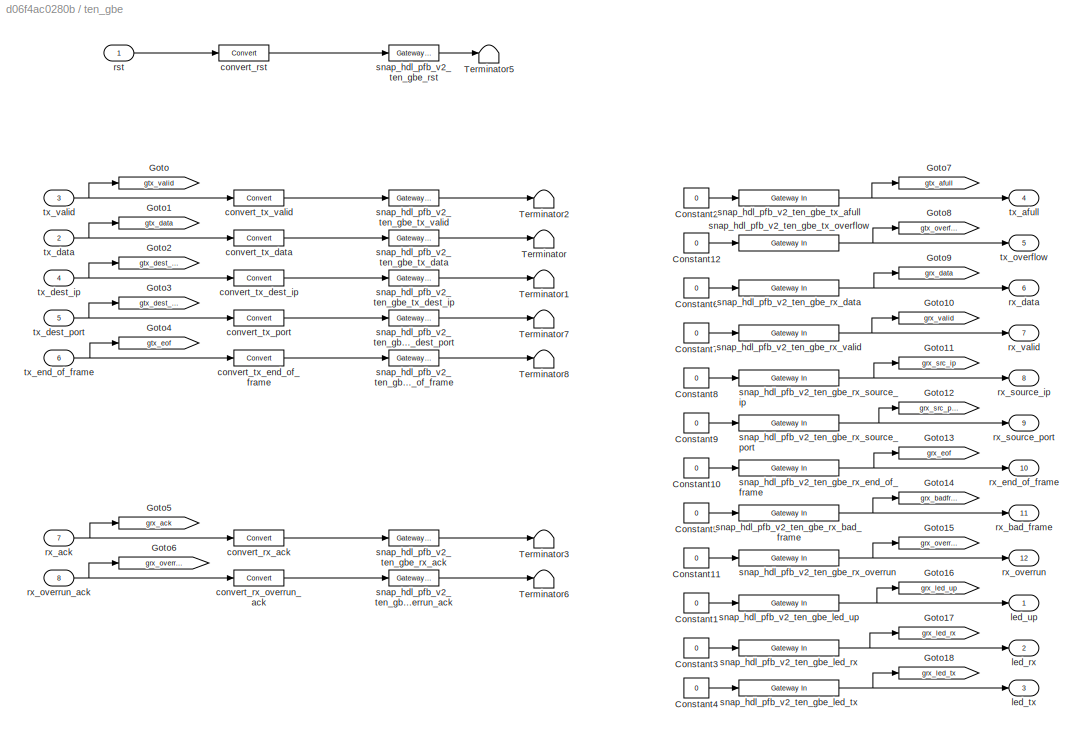
BLOCK [SubSystem] ten_gbe
  AncestorBlock = xps_library/IO/ten_gbe
  Ports = [8, 12]
  RequestExecContextInheritance = off
  Tag = xps:ten_gbe
BLOCK [Constant] ten_gbe/Constant1
  Value = 0
BLOCK [Constant] ten_gbe/Constant10
  Value = 0
BLOCK [Constant] ten_gbe/Constant11
  Value = 0
BLOCK [Constant] ten_gbe/Constant12
  Value = 0
BLOCK [Constant] ten_gbe/Constant2
  Value = 0
BLOCK [Constant] ten_gbe/Constant3
  Value = 0
BLOCK [Constant] ten_gbe/Constant4
  Value = 0
BLOCK [Constant] ten_gbe/Constant5
  Value = 0
BLOCK [Constant] ten_gbe/Constant6
  Value = 0
BLOCK [Constant] ten_gbe/Constant7
  Value = 0
BLOCK [Constant] ten_gbe/Constant8
  Value = 0
BLOCK [Constant] ten_gbe/Constant9
  Value = 0
BLOCK [Goto] ten_gbe/Goto
  GotoTag = gtx_valid
BLOCK [Goto] ten_gbe/Goto1
  GotoTag = gtx_data
BLOCK [Goto] ten_gbe/Goto10
  GotoTag = grx_valid
BLOCK [Goto] ten_gbe/Goto11
  GotoTag = grx_src_ip
BLOCK [Goto] ten_gbe/Goto12
  GotoTag = grx_src_port
BLOCK [Goto] ten_gbe/Goto13
  GotoTag = grx_eof
BLOCK [Goto] ten_gbe/Goto14
  GotoTag = grx_badframe
BLOCK [Goto] ten_gbe/Goto15
  GotoTag = grx_overrun
BLOCK [Goto] ten_gbe/Goto16
  GotoTag = grx_led_up
BLOCK [Goto] ten_gbe/Goto17
  GotoTag = grx_led_rx
BLOCK [Goto] ten_gbe/Goto18
  GotoTag = grx_led_tx
BLOCK [Goto] ten_gbe/Goto2
  GotoTag = gtx_dest_ip
BLOCK [Goto] ten_gbe/Goto3
  GotoTag = gtx_dest_port
BLOCK [Goto] ten_gbe/Goto4
  GotoTag = gtx_eof
BLOCK [Goto] ten_gbe/Goto5
  GotoTag = grx_ack
BLOCK [Goto] ten_gbe/Goto6
  GotoTag = grx_overrun_ack
BLOCK [Goto] ten_gbe/Goto7
  GotoTag = gtx_afull
BLOCK [Goto] ten_gbe/Goto8
  GotoTag = gtx_overflow
BLOCK [Goto] ten_gbe/Goto9
  GotoTag = grx_data
BLOCK [Terminator] ten_gbe/Terminator
BLOCK [Terminator] ten_gbe/Terminator1
BLOCK [Terminator] ten_gbe/Terminator2
BLOCK [Terminator] ten_gbe/Terminator3
BLOCK [Terminator] ten_gbe/Terminator5
BLOCK [Terminator] ten_gbe/Terminator6
BLOCK [Terminator] ten_gbe/Terminator7
BLOCK [Terminator] ten_gbe/Terminator8
BLOCK [Reference] ten_gbe/convert_rst  REF=xbsIndex_r4/Convert
  Ports = [1, 1]
  SourceBlock = xbsIndex_r4/Convert
  SourceType = Xilinx Type Converter Block
BLOCK [Reference] ten_gbe/convert_rx_ack  REF=xbsIndex_r4/Convert
  Ports = [1, 1]
  SourceBlock = xbsIndex_r4/Convert
  SourceType = Xilinx Type Converter Block
BLOCK [Reference] ten_gbe/convert_rx_overrun_ack  REF=xbsIndex_r4/Convert
  Ports = [1, 1]
  SourceBlock = xbsIndex_r4/Convert
  SourceType = Xilinx Type Converter Block
BLOCK [Reference] ten_gbe/convert_tx_data  REF=xbsIndex_r4/Convert
  Ports = [1, 1]
  SourceBlock = xbsIndex_r4/Convert
  SourceType = Xilinx Type Converter Block
BLOCK [Reference] ten_gbe/convert_tx_dest_ip  REF=xbsIndex_r4/Convert
  Ports = [1, 1]
  SourceBlock = xbsIndex_r4/Convert
  SourceType = Xilinx Type Converter Block
BLOCK [Reference] ten_gbe/convert_tx_end_of_frame  REF=xbsIndex_r4/Convert
  Ports = [1, 1]
  SourceBlock = xbsIndex_r4/Convert
  SourceType = Xilinx Type Converter Block
BLOCK [Reference] ten_gbe/convert_tx_port  REF=xbsIndex_r4/Convert
  Ports = [1, 1]
  SourceBlock = xbsIndex_r4/Convert
  SourceType = Xilinx Type Converter Block
BLOCK [Reference] ten_gbe/convert_tx_valid  REF=xbsIndex_r4/Convert
  Ports = [1, 1]
  SourceBlock = xbsIndex_r4/Convert
  SourceType = Xilinx Type Converter Block
BLOCK [Outport] ten_gbe/led_rx
  Port = 2
BLOCK [Outport] ten_gbe/led_tx
  Port = 3
BLOCK [Outport] ten_gbe/led_up
BLOCK [Inport] ten_gbe/rst
BLOCK [Inport] ten_gbe/rx_ack
  Port = 7
BLOCK [Outport] ten_gbe/rx_bad_frame
  Port = 11
BLOCK [Outport] ten_gbe/rx_data
  Port = 6
BLOCK [Outport] ten_gbe/rx_end_of_frame
  Port = 10
BLOCK [Outport] ten_gbe/rx_overrun
  Port = 12
BLOCK [Inport] ten_gbe/rx_overrun_ack
  Port = 8
BLOCK [Outport] ten_gbe/rx_source_ip
  Port = 8
BLOCK [Outport] ten_gbe/rx_source_port
  Port = 9
BLOCK [Outport] ten_gbe/rx_valid
  Port = 7
BLOCK [Reference] ten_gbe/snap_hdl_pfb_v2_ten_gbe_led_rx  REF=xbsIndex_r4/Gateway In
  Ports = [1, 1]
  SourceBlock = xbsIndex_r4/Gateway In
  SourceType = Xilinx Gateway In Block
BLOCK [Reference] ten_gbe/snap_hdl_pfb_v2_ten_gbe_led_tx  REF=xbsIndex_r4/Gateway In
  Ports = [1, 1]
  SourceBlock = xbsIndex_r4/Gateway In
  SourceType = Xilinx Gateway In Block
BLOCK [Reference] ten_gbe/snap_hdl_pfb_v2_ten_gbe_led_up  REF=xbsIndex_r4/Gateway In
  Ports = [1, 1]
  SourceBlock = xbsIndex_r4/Gateway In
  SourceType = Xilinx Gateway In Block
BLOCK [Reference] ten_gbe/snap_hdl_pfb_v2_ten_gbe_rst  REF=xbsIndex_r4/Gateway Out
  Ports = [1, 1]
  SourceBlock = xbsIndex_r4/Gateway Out
  SourceType = Xilinx Gateway Out Block
BLOCK [Reference] ten_gbe/snap_hdl_pfb_v2_ten_gbe_rx_ack  REF=xbsIndex_r4/Gateway Out
  Ports = [1, 1]
  SourceBlock = xbsIndex_r4/Gateway Out
  SourceType = Xilinx Gateway Out Block
BLOCK [Reference] ten_gbe/snap_hdl_pfb_v2_ten_gbe_rx_bad_frame  REF=xbsIndex_r4/Gateway In
  Ports = [1, 1]
  SourceBlock = xbsIndex_r4/Gateway In
  SourceType = Xilinx Gateway In Block
BLOCK [Reference] ten_gbe/snap_hdl_pfb_v2_ten_gbe_rx_data  REF=xbsIndex_r4/Gateway In
  Ports = [1, 1]
  SourceBlock = xbsIndex_r4/Gateway In
  SourceType = Xilinx Gateway In Block
BLOCK [Reference] ten_gbe/snap_hdl_pfb_v2_ten_gbe_rx_end_of_frame  REF=xbsIndex_r4/Gateway In
  Ports = [1, 1]
  SourceBlock = xbsIndex_r4/Gateway In
  SourceType = Xilinx Gateway In Block
BLOCK [Reference] ten_gbe/snap_hdl_pfb_v2_ten_gbe_rx_overrun  REF=xbsIndex_r4/Gateway In
  Ports = [1, 1]
  SourceBlock = xbsIndex_r4/Gateway In
  SourceType = Xilinx Gateway In Block
BLOCK [Reference] ten_gbe/snap_hdl_pfb_v2_ten_gbe_rx_overrun_ack  REF=xbsIndex_r4/Gateway Out
  Ports = [1, 1]
  SourceBlock = xbsIndex_r4/Gateway Out
  SourceType = Xilinx Gateway Out Block
BLOCK [Reference] ten_gbe/snap_hdl_pfb_v2_ten_gbe_rx_source_ip  REF=xbsIndex_r4/Gateway In
  Ports = [1, 1]
  SourceBlock = xbsIndex_r4/Gateway In
  SourceType = Xilinx Gateway In Block
BLOCK [Reference] ten_gbe/snap_hdl_pfb_v2_ten_gbe_rx_source_port  REF=xbsIndex_r4/Gateway In
  Ports = [1, 1]
  SourceBlock = xbsIndex_r4/Gateway In
  SourceType = Xilinx Gateway In Block
BLOCK [Reference] ten_gbe/snap_hdl_pfb_v2_ten_gbe_rx_valid  REF=xbsIndex_r4/Gateway In
  Ports = [1, 1]
  SourceBlock = xbsIndex_r4/Gateway In
  SourceType = Xilinx Gateway In Block
BLOCK [Reference] ten_gbe/snap_hdl_pfb_v2_ten_gbe_tx_afull  REF=xbsIndex_r4/Gateway In
  Ports = [1, 1]
  SourceBlock = xbsIndex_r4/Gateway In
  SourceType = Xilinx Gateway In Block
BLOCK [Reference] ten_gbe/snap_hdl_pfb_v2_ten_gbe_tx_data  REF=xbsIndex_r4/Gateway Out
  Ports = [1, 1]
  SourceBlock = xbsIndex_r4/Gateway Out
  SourceType = Xilinx Gateway Out Block
BLOCK [Reference] ten_gbe/snap_hdl_pfb_v2_ten_gbe_tx_dest_ip  REF=xbsIndex_r4/Gateway Out
  Ports = [1, 1]
  SourceBlock = xbsIndex_r4/Gateway Out
  SourceType = Xilinx Gateway Out Block
BLOCK [Reference] ten_gbe/snap_hdl_pfb_v2_ten_gbe_tx_dest_port  REF=xbsIndex_r4/Gateway Out
  Ports = [1, 1]
  SourceBlock = xbsIndex_r4/Gateway Out
  SourceType = Xilinx Gateway Out Block
BLOCK [Reference] ten_gbe/snap_hdl_pfb_v2_ten_gbe_tx_end_of_frame  REF=xbsIndex_r4/Gateway Out
  Ports = [1, 1]
  SourceBlock = xbsIndex_r4/Gateway Out
  SourceType = Xilinx Gateway Out Block
BLOCK [Reference] ten_gbe/snap_hdl_pfb_v2_ten_gbe_tx_overflow  REF=xbsIndex_r4/Gateway In
  Ports = [1, 1]
  SourceBlock = xbsIndex_r4/Gateway In
  SourceType = Xilinx Gateway In Block
BLOCK [Reference] ten_gbe/snap_hdl_pfb_v2_ten_gbe_tx_valid  REF=xbsIndex_r4/Gateway Out
  Ports = [1, 1]
  SourceBlock = xbsIndex_r4/Gateway Out
  SourceType = Xilinx Gateway Out Block
BLOCK [Outport] ten_gbe/tx_afull
  Port = 4
BLOCK [Inport] ten_gbe/tx_data
  Port = 2
BLOCK [Inport] ten_gbe/tx_dest_ip
  Port = 4
BLOCK [Inport] ten_gbe/tx_dest_port
  Port = 5
BLOCK [Inport] ten_gbe/tx_end_of_frame
  Port = 6
BLOCK [Outport] ten_gbe/tx_overflow
  Port = 5
BLOCK [Inport] ten_gbe/tx_valid
  Port = 3
ANNOTATION pwr_snapshot/ss0: Delay start of capture
ANNOTATION pwr_snapshot/ss0: Generate stop when in circular capture mode
ANNOTATION pwr_snapshot/ss0: Number of bytes in buffer and done bit
ANNOTATION pwr_snapshot/ss0: Number of valid data samples to skip after trigger before starting capture
ANNOTATION pwr_snapshot/ss0: Offset in vector from first element captured, used during circular capture
ANNOTATION pwr_snapshot/ss0: Value on vin aligned with first sample on din captured
ANNOTATION pwr_snapshot/ss0: ctrl: bit0: Put a posedge here to enable a new capture. bit1: ignore external trigger and trigger immediately. bit2: ignore external write enable and capture on every FPGA clock. bit3: continuously capture data until we get an external stop command.
ANNOTATION pwr_snapshot/ss0/add_gen: A total count of bytes written to BRAM since trig
ANNOTATION pwr_snapshot/ss0/add_gen: Count of bytes in BRAM as well as done signal
ANNOTATION pwr_snapshot/ss0/add_gen: Do one capture by default
ANNOTATION pwr_snapshot/ss0/add_gen: Force MSbit of count to be '1' by negating busy as counter bit may be '0' or '1'
ANNOTATION pwr_snapshot/ss0/add_gen: To storage
ANNOTATION pwr_snapshot/ss0/add_gen: prevent one extra write to address 0
ANNOTATION pwr_snapshot/ss0/basic_ctrl/dram_munge: 1st output same time as last input
ANNOTATION pwr_snapshot/ss0/basic_ctrl/dram_munge: Buffer 4 input words when using DRAM then combine and output the first two, then second. Ensures that a full burst goes through every time so that status register records number of bytes fully in DRAM
ANNOTATION pwr_snapshot/ss0/basic_ctrl/dram_munge: Choose DRAM data or standard. Constant input to muxes should ensure other path optimised away
ANNOTATION pwr_snapshot/ss0/bram/calc_add: If reading/writing words smaller than 32 bits, change address so that addressing is big endian instead of little, otherwise pass through
ANNOTATION pwr_snapshot/ss0/bram/calc_add: Use behavioural HDL so that gets optimised to minimum logic
ANNOTATION pwr_snapshot/ss1: Delay start of capture
ANNOTATION pwr_snapshot/ss1: Generate stop when in circular capture mode
ANNOTATION pwr_snapshot/ss1: Number of bytes in buffer and done bit
ANNOTATION pwr_snapshot/ss1: Number of valid data samples to skip after trigger before starting capture
ANNOTATION pwr_snapshot/ss1: Offset in vector from first element captured, used during circular capture
ANNOTATION pwr_snapshot/ss1: Value on vin aligned with first sample on din captured
ANNOTATION pwr_snapshot/ss1: ctrl: bit0: Put a posedge here to enable a new capture. bit1: ignore external trigger and trigger immediately. bit2: ignore external write enable and capture on every FPGA clock. bit3: continuously capture data until we get an external stop command.
ANNOTATION pwr_snapshot/ss1/add_gen: A total count of bytes written to BRAM since trig
ANNOTATION pwr_snapshot/ss1/add_gen: Count of bytes in BRAM as well as done signal
ANNOTATION pwr_snapshot/ss1/add_gen: Do one capture by default
ANNOTATION pwr_snapshot/ss1/add_gen: Force MSbit of count to be '1' by negating busy as counter bit may be '0' or '1'
ANNOTATION pwr_snapshot/ss1/add_gen: To storage
ANNOTATION pwr_snapshot/ss1/add_gen: prevent one extra write to address 0
ANNOTATION pwr_snapshot/ss1/basic_ctrl/dram_munge: 1st output same time as last input
ANNOTATION pwr_snapshot/ss1/basic_ctrl/dram_munge: Buffer 4 input words when using DRAM then combine and output the first two, then second. Ensures that a full burst goes through every time so that status register records number of bytes fully in DRAM
ANNOTATION pwr_snapshot/ss1/basic_ctrl/dram_munge: Choose DRAM data or standard. Constant input to muxes should ensure other path optimised away
ANNOTATION pwr_snapshot/ss1/bram/calc_add: If reading/writing words smaller than 32 bits, change address so that addressing is big endian instead of little, otherwise pass through
ANNOTATION pwr_snapshot/ss1/bram/calc_add: Use behavioural HDL so that gets optimised to minimum logic
LINE Concat:1 -> pfb_status:1
LINE Constant11:1 -> WB_PFB:3
NET Constant12:1 -> WB_PFB:5, WB_PFB:7
LINE Constant13:1 -> sw_trig:1
LINE Constant14:1 -> WB_PFB:4
LINE Constant15:1 -> acc_len:1
LINE Constant1:1 -> ten_gbe:1
LINE Constant2:1 -> ten_gbe:2
LINE Constant3:1 -> ten_gbe:3
LINE Constant4:1 -> ten_gbe:4
LINE Constant5:1 -> ten_gbe:5
LINE Constant6:1 -> ten_gbe:6
LINE Constant7:1 -> led_ctrl:1
LINE Constant9:1 -> sys_ctl:1
LINE Delay1:1 -> Goto12:1
LINE Delay2:1 -> Goto13:1
LINE Delay3:1 -> Goto14:1
LINE From10:1 -> Logical2:1
LINE From12:1 -> WB_PFB:6
LINE From13:1 -> WB_PFB:8
LINE From14:1 -> Logical1:2
LINE From15:1 -> Logical2:2
LINE From16:1 -> Concat:1
LINE From17:1 -> Concat:2
LINE From18:1 -> Concat:3
LINE From19:1 -> Scope4:1
LINE From20:1 -> Scope4:2
LINE From21:1 -> Scope4:3
LINE From22:1 -> Scope1:1
LINE From23:1 -> Scope1:2
LINE From24:1 -> Scope1:3
LINE From25:1 -> Scope1:4
LINE From26:1 -> Scope2:1
LINE From27:1 -> Scope2:2
LINE From28:1 -> pwr_snapshot:1
LINE From29:1 -> pwr_snapshot:2
LINE From30:1 -> pwr_snapshot:3
LINE From31:1 -> pwr_snapshot:4
LINE From32:1 -> pwr_snapshot:6
LINE From33:1 -> pwr_snapshot:5
LINE From34:1 -> Scope3:1
LINE From35:1 -> pwr_snapshot:7
LINE From9:1 -> Logical1:1
NET Logical1:1 -> Goto19:1, WB_PFB:1
LINE Logical2:1 -> WB_PFB:2
LINE Power_Cal0/AddSub:1 -> Power_Cal0/Out1:1
LINE Power_Cal0/In1:1 -> Power_Cal0/Slice_re:1
LINE Power_Cal0/In2:1 -> Power_Cal0/Slice_im:1
LINE Power_Cal0/Mult1:1 -> Power_Cal0/AddSub:2
LINE Power_Cal0/Mult:1 -> Power_Cal0/AddSub:1
NET Power_Cal0/Reinterpret1:1 -> Power_Cal0/Mult1:1, Power_Cal0/Mult1:2
NET Power_Cal0/Reinterpret:1 -> Power_Cal0/Mult:1, Power_Cal0/Mult:2
LINE Power_Cal0/Slice_im:1 -> Power_Cal0/Reinterpret1:1
LINE Power_Cal0/Slice_re:1 -> Power_Cal0/Reinterpret:1
LINE Power_Cal0:1 -> Goto16:1
LINE Power_Cal1/AddSub:1 -> Power_Cal1/Out1:1
LINE Power_Cal1/In1:1 -> Power_Cal1/Slice_re:1
LINE Power_Cal1/In2:1 -> Power_Cal1/Slice_im:1
LINE Power_Cal1/Mult1:1 -> Power_Cal1/AddSub:2
LINE Power_Cal1/Mult:1 -> Power_Cal1/AddSub:1
NET Power_Cal1/Reinterpret1:1 -> Power_Cal1/Mult1:1, Power_Cal1/Mult1:2
NET Power_Cal1/Reinterpret:1 -> Power_Cal1/Mult:1, Power_Cal1/Mult:2
LINE Power_Cal1/Slice_im:1 -> Power_Cal1/Reinterpret1:1
LINE Power_Cal1/Slice_re:1 -> Power_Cal1/Reinterpret:1
LINE Power_Cal1:1 -> Goto17:1
NET Random Number:1 -> snap_adc:1, snap_adc:10, snap_adc:11, snap_adc:12, snap_adc:2, snap_adc:3, snap_adc:4, snap_adc:9
LINE Sig_sim/Add1:1 -> Sig_sim/Out2:1
LINE Sig_sim/Add2:1 -> Sig_sim/Out3:1
LINE Sig_sim/Add3:1 -> Sig_sim/Out4:1
LINE Sig_sim/Add:1 -> Sig_sim/Out1:1
LINE Sig_sim/Band-Limited White Noise1:1 -> Sig_sim/Add1:2
LINE Sig_sim/Band-Limited White Noise2:1 -> Sig_sim/Add2:2
LINE Sig_sim/Band-Limited White Noise3:1 -> Sig_sim/Add3:2
LINE Sig_sim/Band-Limited White Noise:1 -> Sig_sim/Add:2
LINE Sig_sim/Sine Wave1:1 -> Sig_sim/Add1:1
LINE Sig_sim/Sine Wave2:1 -> Sig_sim/Add2:1
LINE Sig_sim/Sine Wave3:1 -> Sig_sim/Add3:1
LINE Sig_sim/Sine Wave:1 -> Sig_sim/Add:1
LINE Sig_sim:1 -> snap_adc:5
LINE Sig_sim:2 -> snap_adc:6
LINE Sig_sim:3 -> snap_adc:7
LINE Sig_sim:4 -> snap_adc:8
LINE Slice1:1 -> led:1
LINE Slice2:1 -> Goto9:1
LINE Slice3:1 -> Goto10:1
LINE Slice5:1 -> Goto18:1
LINE Slice6:1 -> Goto20:1
LINE WB_PFB:1 -> Terminator16:1
LINE WB_PFB:10 -> Terminator20:1
LINE WB_PFB:11 -> Terminator21:1
LINE WB_PFB:12 -> Power_Cal1:1
LINE WB_PFB:13 -> Power_Cal1:2
LINE WB_PFB:2 -> Delay1:1
LINE WB_PFB:3 -> Terminator17:1
LINE WB_PFB:4 -> Delay2:1
LINE WB_PFB:5 -> Delay3:1
LINE WB_PFB:6 -> Terminator18:1
LINE WB_PFB:7 -> Terminator19:1
LINE WB_PFB:8 -> Power_Cal0:1
LINE WB_PFB:9 -> Power_Cal0:2
LINE acc_len:1 -> Slice6:1
LINE led:1 -> Terminator15:1
LINE led_ctrl:1 -> Slice1:1
LINE pfb_status:1 -> Terminator26:1
LINE pwr_snapshot/AddSub:1 -> pwr_snapshot/Relational1:2
LINE pwr_snapshot/Concat1:1 -> pwr_snapshot/Goto2:1
LINE pwr_snapshot/Concat2:1 -> pwr_snapshot/Goto4:1
LINE pwr_snapshot/Constant1:1 -> pwr_snapshot/AddSub:2
LINE pwr_snapshot/Constant3:1 -> pwr_snapshot/Relational:2
LINE pwr_snapshot/Constant4:1 -> pwr_snapshot/Concat1:1
LINE pwr_snapshot/Constant5:1 -> pwr_snapshot/Concat2:1
LINE pwr_snapshot/Counter1:1 -> pwr_snapshot/Relational1:1
LINE pwr_snapshot/Counter:1 -> pwr_snapshot/Relational:1
LINE pwr_snapshot/From10:1 -> pwr_snapshot/ss0:1
LINE pwr_snapshot/From11:1 -> pwr_snapshot/ss0:2
LINE pwr_snapshot/From1:1 -> pwr_snapshot/ss1:2
LINE pwr_snapshot/From2:1 -> pwr_snapshot/Counter:2
LINE pwr_snapshot/From3:1 -> pwr_snapshot/ss0:3
LINE pwr_snapshot/From4:1 -> pwr_snapshot/ss1:3
LINE pwr_snapshot/From5:1 -> pwr_snapshot/simple_bram_vacc1:2
NET pwr_snapshot/From6:1 -> pwr_snapshot/Counter1:2, pwr_snapshot/Inverter:1
LINE pwr_snapshot/From7:1 -> pwr_snapshot/simple_bram_vacc1:1
LINE pwr_snapshot/From8:1 -> pwr_snapshot/simple_bram_vacc0:2
LINE pwr_snapshot/From9:1 -> pwr_snapshot/simple_bram_vacc0:1
LINE pwr_snapshot/From:1 -> pwr_snapshot/ss1:1
LINE pwr_snapshot/Inverter:1 -> pwr_snapshot/Logical1:2
LINE pwr_snapshot/Logical1:1 -> pwr_snapshot/Counter1:1
LINE pwr_snapshot/Logical:1 -> pwr_snapshot/Goto1:1
NET pwr_snapshot/Relational1:1 -> pwr_snapshot/Goto3:1, pwr_snapshot/Logical1:1
LINE pwr_snapshot/Relational:1 -> pwr_snapshot/Logical:1
LINE pwr_snapshot/Shift:1 -> pwr_snapshot/AddSub:1
LINE pwr_snapshot/Slice:1 -> pwr_snapshot/Goto:1
LINE pwr_snapshot/acc_len:1 -> pwr_snapshot/Shift:1
LINE pwr_snapshot/pwr0:1 -> pwr_snapshot/Concat2:2
LINE pwr_snapshot/pwr1:1 -> pwr_snapshot/Concat1:2
LINE pwr_snapshot/rst:1 -> pwr_snapshot/Counter:1
LINE pwr_snapshot/simple_bram_vacc0:1 -> pwr_snapshot/Goto6:1
LINE pwr_snapshot/simple_bram_vacc0:2 -> pwr_snapshot/Goto8:1
LINE pwr_snapshot/simple_bram_vacc1:1 -> pwr_snapshot/Goto5:1
LINE pwr_snapshot/simple_bram_vacc1:2 -> pwr_snapshot/Goto7:1
LINE pwr_snapshot/sync:1 -> pwr_snapshot/Terminator:1
LINE pwr_snapshot/trig:1 -> pwr_snapshot/Logical:2
LINE pwr_snapshot/valid:1 -> pwr_snapshot/Slice:1
NET rst_subsystem/Convert:1 -> rst_subsystem/Counter:1, rst_subsystem/Out1:1
LINE rst_subsystem/Counter:1 -> rst_subsystem/Inverter:1
LINE rst_subsystem/Inverter:1 -> rst_subsystem/Convert:1
LINE rst_subsystem:1 -> Goto15:1
LINE snap_adc:1 -> Terminator22:1
LINE snap_adc:10 -> Terminator1:1
LINE snap_adc:11 -> Terminator2:1
LINE snap_adc:12 -> Terminator3:1
LINE snap_adc:2 -> Terminator23:1
LINE snap_adc:3 -> Terminator24:1
LINE snap_adc:4 -> Terminator25:1
LINE snap_adc:5 -> Goto4:1
LINE snap_adc:6 -> Goto5:1
LINE snap_adc:7 -> Goto6:1
LINE snap_adc:8 -> Goto7:1
LINE snap_adc:9 -> Terminator:1
LINE sw_trig:1 -> Slice5:1
NET sys_ctl:1 -> Slice2:1, Slice3:1
LINE ten_gbe:1 -> Terminator4:1
LINE ten_gbe:10 -> Terminator7:1
LINE ten_gbe:11 -> Terminator6:1
NET ten_gbe:12 -> Terminator5:1, ten_gbe:8
LINE ten_gbe:2 -> Terminator14:1
LINE ten_gbe:3 -> Terminator13:1
LINE ten_gbe:4 -> Terminator12:1
LINE ten_gbe:5 -> Terminator11:1
LINE ten_gbe:6 -> Terminator10:1
LINE ten_gbe:7 -> ten_gbe:7
LINE ten_gbe:8 -> Terminator9:1
LINE ten_gbe:9 -> Terminator8:1
note: NET lines group one-source signal fan-out (src -> all destinations, sorted); 1:1 wires keep LINE
